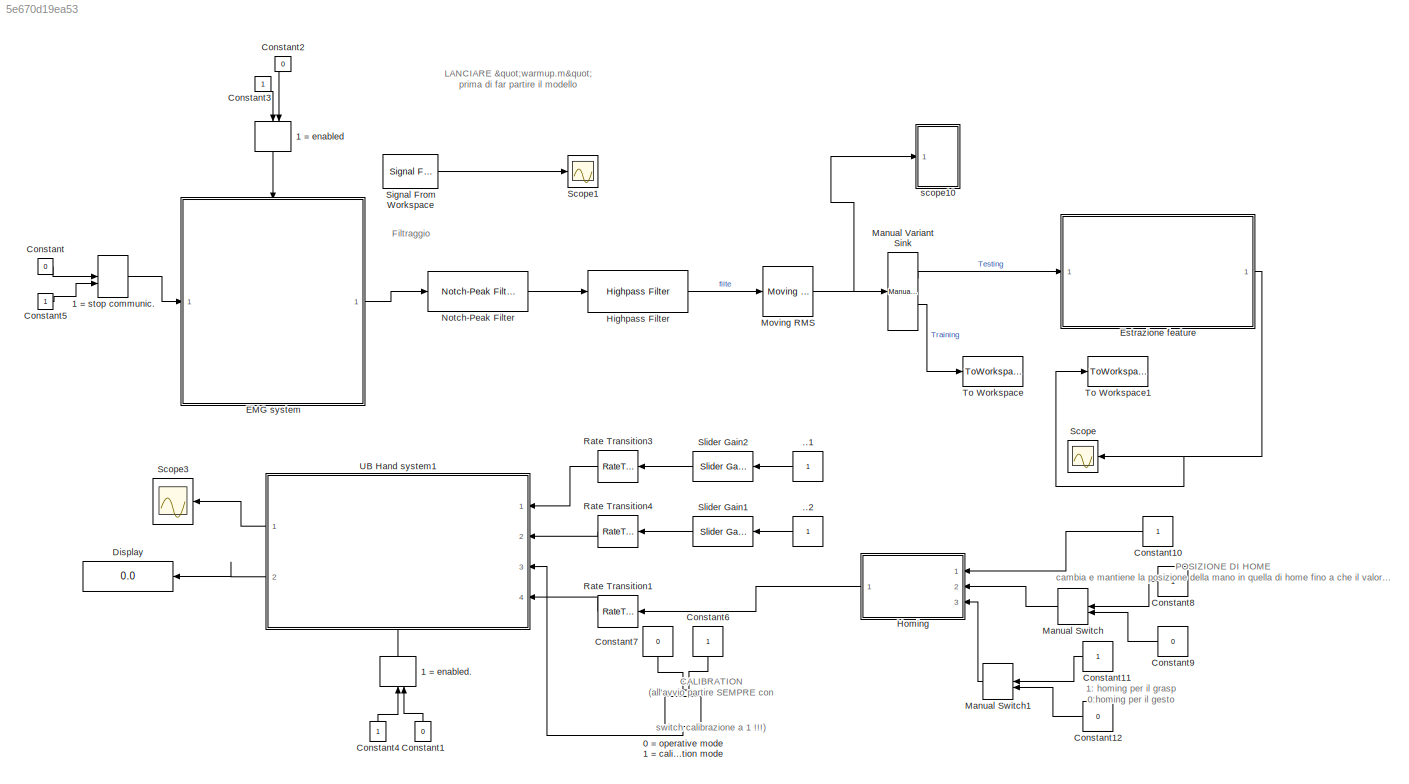
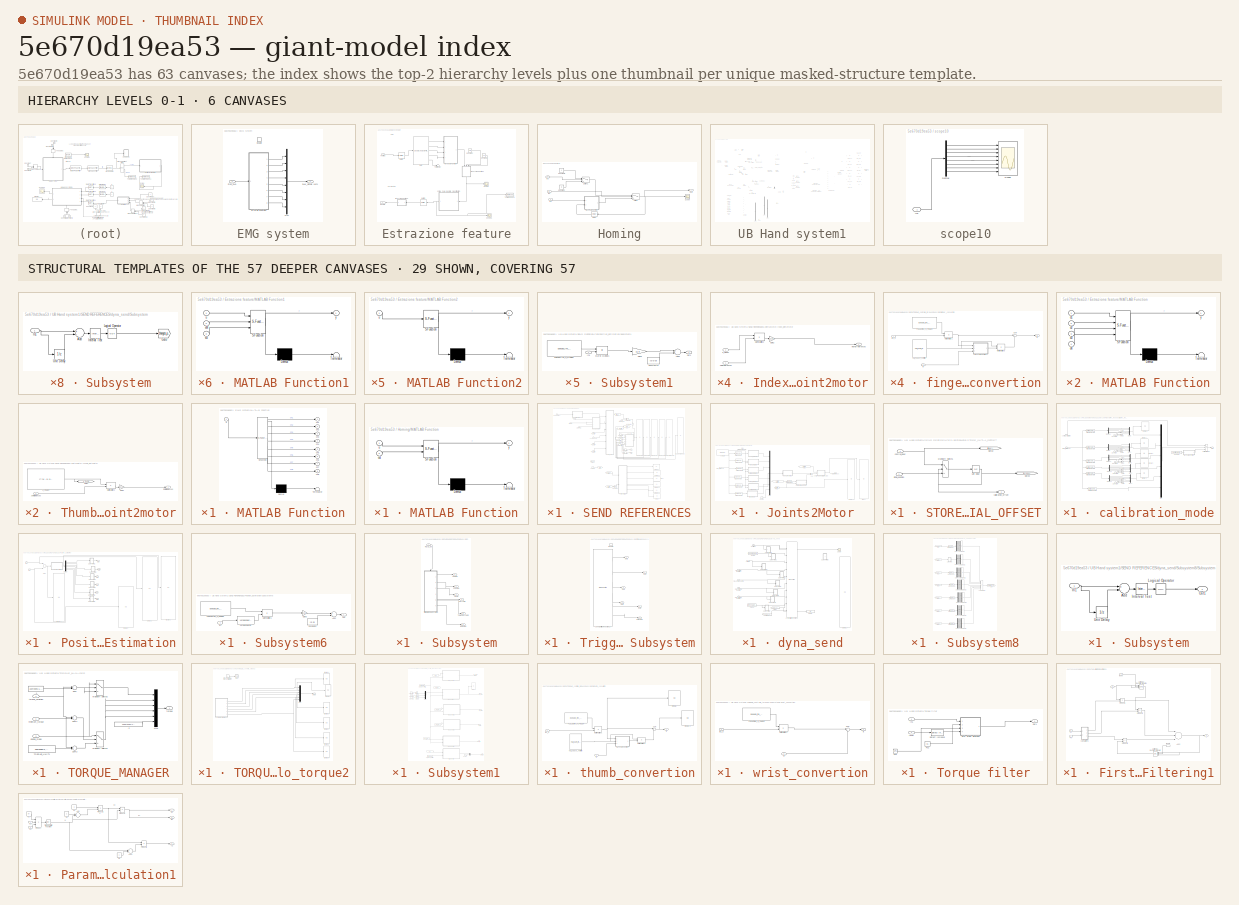
[diagram: thumbnail index - top-2 hierarchy levels (6 canvases) + 29 structural-template representatives of the remaining 57 canvases]
MODEL slx_5e670d19ea53
KIND model
CONFIG AbsTol = auto
CONFIG EnableMultiTasking = off
CONFIG FixedStep = 0.0005
CONFIG MaxStep = auto
CONFIG MinStep = auto
CONFIG RelTol = 1e-3
CONFIG SampleTimeConstraint = Unconstrained
CONFIG Solver = ode3
CONFIG SolverName = ode3
CONFIG StartTime = 0.0
CONFIG StopTime = inf
BLOCK [Constant] ..1
  SampleTime = t
BLOCK [Constant] ..2
  SampleTime = t
BLOCK [ManualSwitch] 0 = operative mode 1 = calibration mode
  CurrentSetting = 0
BLOCK [ManualSwitch] 1 = enabled
  CurrentSetting = 0
  SampleTime = Temg
BLOCK [ManualSwitch] 1 = enabled.
  SampleTime = t
BLOCK [ManualSwitch] 1 = stop communic.
  SampleTime = Temg
BLOCK [Constant] Constant
  SampleTime = Temg
  Value = 0
BLOCK [Constant] Constant1
  SampleTime = t
  Value = 0
BLOCK [Constant] Constant10
BLOCK [Constant] Constant11
BLOCK [Constant] Constant12
  Value = 0
BLOCK [Constant] Constant2
  SampleTime = Temg
  Value = 0
BLOCK [Constant] Constant3
  SampleTime = Temg
BLOCK [Constant] Constant4
  SampleTime = t
BLOCK [Constant] Constant5
  SampleTime = Temg
BLOCK [Constant] Constant6
BLOCK [Constant] Constant7
  Value = 0
BLOCK [Constant] Constant8
BLOCK [Constant] Constant9
  Value = 0
BLOCK [Display] Display
  Decimation = 1
  Ports = [1]
BLOCK [SubSystem] EMG system
  Ports = [1, 1, 1]
  RequestExecContextInheritance = off
  Variant = off
BLOCK [EnablePort] EMG system/Enable
  Ports = []
BLOCK [SubSystem] EMG system/MATLAB Function
  ErrorFcn = Stateflow.Translate.translate
  PermitHierarchicalResolution = ExplicitOnly
  Ports = [1, 8]
  RequestExecContextInheritance = off
  SFBlockType = MATLAB Function
  TreatAsAtomicUnit = on
  Variant = off
BLOCK [Demux] EMG system/MATLAB Function/ Demux 
  Outputs = 1
  Ports = [1, 1]
BLOCK [S-Function] EMG system/MATLAB Function/ SFunction 
  EnableBusSupport = on
  FunctionName = sf_sfun
  PortCounts = [1 9]
  Ports = [1, 9]
  SFcnIsStateOwnerBlock = off
  SFunctionDeploymentMode = off
  Tag = Stateflow S-Function DeathOrGlory 2
BLOCK [Terminator] EMG system/MATLAB Function/ Terminator 
BLOCK [Outport] EMG system/MATLAB Function/ch1
  IconDisplay = Port number
BLOCK [Outport] EMG system/MATLAB Function/ch2
  IconDisplay = Port number
  Port = 2
BLOCK [Outport] EMG system/MATLAB Function/ch3
  IconDisplay = Port number
  Port = 3
BLOCK [Outport] EMG system/MATLAB Function/ch4
  IconDisplay = Port number
  Port = 4
BLOCK [Outport] EMG system/MATLAB Function/ch5
  IconDisplay = Port number
  Port = 5
BLOCK [Outport] EMG system/MATLAB Function/ch6
  IconDisplay = Port number
  Port = 6
BLOCK [Outport] EMG system/MATLAB Function/ch7
  IconDisplay = Port number
  Port = 7
BLOCK [Outport] EMG system/MATLAB Function/ch8
  IconDisplay = Port number
  Port = 8
BLOCK [Inport] EMG system/MATLAB Function/u
  IconDisplay = Port number
BLOCK [Mux] EMG system/Mux
  DisplayOption = bar
  Inputs = 8
  Ports = [8, 1]
BLOCK [Outport] EMG system/RAW_signals (8ch)
  IconDisplay = Port number
BLOCK [Inport] EMG system/Stop_DAQ
  IconDisplay = Port number
BLOCK [SubSystem] Estrazione feature
  Ports = [1, 1]
  RequestExecContextInheritance = off
  Variant = off
BLOCK [Buffer] Estrazione feature/Buffer
  N = interval
  OutputFrames = off
  V = over
BLOCK [Buffer] Estrazione feature/Buffer1
  N = 35
  V = 34
BLOCK [Constant] Estrazione feature/Constant
  Value = sM
BLOCK [Constant] Estrazione feature/Constant1
  Value = sS
BLOCK [Reference] Estrazione feature/DWT  REF=dspmlti4/Dyadic Analysis
Filter Bank
  Ports = [1, 5]
  SourceBlock = dspmlti4/Dyadic Analysis\nFilter Bank
  SourceProductBaseCode = DS
  SourceProductName = DSP System Toolbox
  SourceType = Dyadic Analysis Filter Bank
BLOCK [Outport] Estrazione feature/Gesture
  IconDisplay = Port number
BLOCK [SubSystem] Estrazione feature/MATLAB Function
  ErrorFcn = Stateflow.Translate.translate
  PermitHierarchicalResolution = ExplicitOnly
  Ports = [4, 1]
  RequestExecContextInheritance = off
  SFBlockType = MATLAB Function
  ShowPortLabels = none
  TreatAsAtomicUnit = on
  Variant = off
BLOCK [Demux] Estrazione feature/MATLAB Function/ Demux 
  Outputs = 1
  Ports = [1, 1]
BLOCK [S-Function] Estrazione feature/MATLAB Function/ SFunction 
  EnableBusSupport = on
  FunctionName = sf_sfun
  PortCounts = [4 2]
  Ports = [4, 2]
  SFcnIsStateOwnerBlock = off
  SFunctionDeploymentMode = off
  Tag = Stateflow S-Function DeathOrGlory 5
BLOCK [Terminator] Estrazione feature/MATLAB Function/ Terminator 
BLOCK [Inport] Estrazione feature/MATLAB Function/d1
  IconDisplay = Port number
BLOCK [Inport] Estrazione feature/MATLAB Function/d2
  IconDisplay = Port number
  Port = 2
BLOCK [Inport] Estrazione feature/MATLAB Function/d3
  IconDisplay = Port number
  Port = 3
BLOCK [Inport] Estrazione feature/MATLAB Function/d4
  IconDisplay = Port number
  Port = 4
BLOCK [Outport] Estrazione feature/MATLAB Function/y
  IconDisplay = Port number
BLOCK [SubSystem] Estrazione feature/MATLAB Function1
  ErrorFcn = Stateflow.Translate.translate
  PermitHierarchicalResolution = ExplicitOnly
  Ports = [3, 1]
  RequestExecContextInheritance = off
  SFBlockType = MATLAB Function
  ShowPortLabels = none
  TreatAsAtomicUnit = on
  Variant = off
BLOCK [Demux] Estrazione feature/MATLAB Function1/ Demux 
  Outputs = 1
  Ports = [1, 1]
BLOCK [S-Function] Estrazione feature/MATLAB Function1/ SFunction 
  EnableBusSupport = on
  FunctionName = sf_sfun
  PortCounts = [3 2]
  Ports = [3, 2]
  SFcnIsStateOwnerBlock = off
  SFunctionDeploymentMode = off
  Tag = Stateflow S-Function DeathOrGlory 6
BLOCK [Terminator] Estrazione feature/MATLAB Function1/ Terminator 
BLOCK [Inport] Estrazione feature/MATLAB Function1/sM
  IconDisplay = Port number
  Port = 2
BLOCK [Inport] Estrazione feature/MATLAB Function1/sS
  IconDisplay = Port number
  Port = 3
BLOCK [Inport] Estrazione feature/MATLAB Function1/u
  IconDisplay = Port number
BLOCK [Outport] Estrazione feature/MATLAB Function1/y
  IconDisplay = Port number
BLOCK [SubSystem] Estrazione feature/MATLAB Function2
  ErrorFcn = Stateflow.Translate.translate
  PermitHierarchicalResolution = ExplicitOnly
  Ports = [1, 1]
  RequestExecContextInheritance = off
  SFBlockType = MATLAB Function
  ShowPortLabels = none
  TreatAsAtomicUnit = on
  Variant = off
BLOCK [Demux] Estrazione feature/MATLAB Function2/ Demux 
  Outputs = 1
  Ports = [1, 1]
BLOCK [S-Function] Estrazione feature/MATLAB Function2/ SFunction 
  EnableBusSupport = on
  FunctionName = sf_sfun
  PortCounts = [1 2]
  Ports = [1, 2]
  SFcnIsStateOwnerBlock = off
  SFunctionDeploymentMode = off
  Tag = Stateflow S-Function DeathOrGlory 8
BLOCK [Terminator] Estrazione feature/MATLAB Function2/ Terminator 
BLOCK [Inport] Estrazione feature/MATLAB Function2/u
  IconDisplay = Port number
BLOCK [Outport] Estrazione feature/MATLAB Function2/y
  IconDisplay = Port number
BLOCK [Scope] Estrazione feature/Scope
  NumInputPorts = 1
  Ports = [1]
  ScopeSpecificationString = Simulink.scopes.TimeScopeBlockCfg('CurrentConfiguration', extmgr.ConfigurationSet(extmgr.Configuration('Core','General UI',true),extmgr.Configuration('Core','Source UI',true),extmgr.Configuration('Sources','WiredSimulink',true,'DataLoggingVariableName','ScopeData2'),extmgr.Configuration('Visuals','Time Domain',true,'SerializedDisplays',{struct('MinYLimReal','-0.11782','MaxYLimReal','28.00642','YLa...<+2127ch>
BLOCK [Scope] Estrazione feature/Scope1
  NumInputPorts = 1
  Ports = [1]
  ScopeSpecificationString = Simulink.scopes.TimeScopeBlockCfg('CurrentConfiguration', extmgr.ConfigurationSet(extmgr.Configuration('Core','General UI',true),extmgr.Configuration('Core','Source UI',true),extmgr.Configuration('Sources','WiredSimulink',true,'DataLoggingVariableName','ScopeData3'),extmgr.Configuration('Visuals','Time Domain',true,'SerializedDisplays',{struct('MinYLimReal','0.64773','MaxYLimReal','3.18561','YLabe...<+1486ch>
BLOCK [Terminator] Estrazione feature/Terminator
BLOCK [Inport] Estrazione feature/Testing
  IconDisplay = Port number
BLOCK [ToWorkspace] Estrazione feature/To Workspace
  FixptAsFi = on
  MaxDataPoints = inf
  Ports = [1]
  SampleTime = -1
  Save2DSignal = 2-D array (concatenate along first dimension)
  VariableName = simout2
BLOCK [SubSystem] Estrazione feature/online_SVM_gesture_classification
  ErrorFcn = Stateflow.Translate.translate
  PermitHierarchicalResolution = ExplicitOnly
  Ports = [1, 1]
  RequestExecContextInheritance = off
  SFBlockType = MATLAB Function
  TreatAsAtomicUnit = on
  Variant = off
BLOCK [Demux] Estrazione feature/online_SVM_gesture_classification/ Demux 
  Outputs = 1
  Ports = [1, 1]
BLOCK [S-Function] Estrazione feature/online_SVM_gesture_classification/ SFunction 
  EnableBusSupport = on
  FunctionName = sf_sfun
  Parameters = model
  PortCounts = [1 2]
  Ports = [1, 2]
  SFcnIsStateOwnerBlock = off
  SFunctionDeploymentMode = off
  Tag = Stateflow S-Function DeathOrGlory 7
BLOCK [Terminator] Estrazione feature/online_SVM_gesture_classification/ Terminator 
BLOCK [Inport] Estrazione feature/online_SVM_gesture_classification/M
  IconDisplay = Port number
BLOCK [Outport] Estrazione feature/online_SVM_gesture_classification/prediction
  IconDisplay = Port number
BLOCK [Reference] Highpass Filter  REF=dspfdesign/Highpass Filter
  Ports = [1, 1]
  SourceBlock = dspfdesign/Highpass Filter
  SourceProductBaseCode = DS
  SourceProductName = DSP System Toolbox
  SourceType = dsp.HighpassFilter
BLOCK [SubSystem] Homing
  Ports = [3, 1]
  RequestExecContextInheritance = off
  ShowPortLabels = none
  Variant = off
BLOCK [Constant] Homing/Constant
  Value = 8
BLOCK [Constant] Homing/Constant1
BLOCK [Delay] Homing/Delay
  InputPortMap = u0
  Ports = [1, 1]
BLOCK [Inport] Homing/In1
  IconDisplay = Port number
BLOCK [Inport] Homing/In2
  IconDisplay = Port number
  Port = 2
BLOCK [Inport] Homing/In3
  IconDisplay = Port number
  Port = 3
BLOCK [SubSystem] Homing/MATLAB Function
  ErrorFcn = Stateflow.Translate.translate
  PermitHierarchicalResolution = ExplicitOnly
  Ports = [2, 1]
  RequestExecContextInheritance = off
  SFBlockType = MATLAB Function
  TreatAsAtomicUnit = on
  Variant = off
BLOCK [Demux] Homing/MATLAB Function/ Demux 
  Outputs = 1
  Ports = [1, 1]
BLOCK [S-Function] Homing/MATLAB Function/ SFunction 
  EnableBusSupport = on
  FunctionName = sf_sfun
  PortCounts = [2 2]
  Ports = [2, 2]
  SFcnIsStateOwnerBlock = off
  SFunctionDeploymentMode = off
  Tag = Stateflow S-Function DeathOrGlory 9
BLOCK [Terminator] Homing/MATLAB Function/ Terminator 
BLOCK [Inport] Homing/MATLAB Function/out
  IconDisplay = Port number
  Port = 2
BLOCK [Inport] Homing/MATLAB Function/u
  IconDisplay = Port number
BLOCK [Outport] Homing/MATLAB Function/y
  IconDisplay = Port number
BLOCK [Outport] Homing/Out1
  IconDisplay = Port number
BLOCK [Scope] Homing/Scope
  NumInputPorts = 1
  Ports = [1]
  ScopeSpecificationString = Simulink.scopes.TimeScopeBlockCfg('CurrentConfiguration', extmgr.ConfigurationSet(extmgr.Configuration('Core','General UI',true),extmgr.Configuration('Core','Source UI',true),extmgr.Configuration('Sources','WiredSimulink',true,'DataLoggingVariableName','ScopeData1'),extmgr.Configuration('Visuals','Time Domain',true,'SerializedDisplays',{struct('MinYLimReal','0.625','MaxYLimReal','4.375','YLabelRea...<+1418ch>
BLOCK [Switch] Homing/Switch
  Criteria = u2 ~= 0
  InputSameDT = off
  SaturateOnIntegerOverflow = off
BLOCK [Switch] Homing/Switch1
  Criteria = u2 ~= 0
  InputSameDT = off
  SaturateOnIntegerOverflow = off
BLOCK [ManualSwitch] Manual Switch
  CurrentSetting = 0
BLOCK [ManualSwitch] Manual Switch1
  CurrentSetting = 0
BLOCK [Reference] Manual Variant Sink  REF=simulink/Signal
Routing/Manual
Variant Sink
  Ports = [1, 2]
  SourceBlock = simulink/Signal\nRouting/Manual\nVariant Sink
  SourceProductBaseCode = SL
  SourceProductName = Simulink
  SourceType = ManualVariantSink
BLOCK [Reference] Moving RMS  REF=dspstat3/Moving
RMS
  Ports = [1, 1]
  SourceBlock = dspstat3/Moving\nRMS
  SourceProductBaseCode = DS
  SourceProductName = DSP System Toolbox
  SourceType = dsp.MovingRMS
BLOCK [Reference] Notch-Peak Filter  REF=dspfdesign/Notch-Peak Filter
  Ports = [1, 1]
  SourceBlock = dspfdesign/Notch-Peak Filter
  SourceProductBaseCode = DS
  SourceProductName = DSP System Toolbox
  SourceType = dsp.simulink.NotchPeakFilter
BLOCK [RateTransition] Rate Transition1
  OutPortSampleTime = Ts
BLOCK [RateTransition] Rate Transition3
  OutPortSampleTime = Ts
BLOCK [RateTransition] Rate Transition4
  OutPortSampleTime = Ts
BLOCK [Scope] Scope
  NumInputPorts = 1
  Ports = [1]
  ScopeSpecificationString = Simulink.scopes.TimeScopeBlockCfg('CurrentConfiguration', extmgr.ConfigurationSet(extmgr.Configuration('Core','General UI',true),extmgr.Configuration('Core','Source UI',true),extmgr.Configuration('Sources','WiredSimulink',true,'DataLoggingVariableName','ScopeData1'),extmgr.Configuration('Visuals','Time Domain',true,'SerializedDisplays',{struct('MinYLimReal','-0.875','MaxYLimReal','7.875','YLabelRe...<+1465ch>
BLOCK [Scope] Scope1
  NumInputPorts = 1
  Ports = [1]
  ScopeSpecificationString = Simulink.scopes.TimeScopeBlockCfg('CurrentConfiguration', extmgr.ConfigurationSet(extmgr.Configuration('Core','General UI',true),extmgr.Configuration('Core','Source UI',true),extmgr.Configuration('Sources','WiredSimulink',true,'DataLoggingVariableName','ScopeData2'),extmgr.Configuration('Visuals','Time Domain',true),extmgr.Configuration('Tools','Plot Navigation',true),extmgr.Configuration('Tools',...<+85ch>
BLOCK [Scope] Scope3
  NumInputPorts = 1
  Ports = [1]
  ScopeSpecificationString = Simulink.scopes.TimeScopeBlockCfg('CurrentConfiguration', extmgr.ConfigurationSet(extmgr.Configuration('Core','General UI',true),extmgr.Configuration('Core','Source UI',true),extmgr.Configuration('Sources','WiredSimulink',true,'DataLoggingVariableName','ScopeData1','DataLoggingSaveFormat','Array','DataLoggingDecimation','1','DataLoggingDecimateData',true),extmgr.Configuration('Visuals','Time Domai...<+1632ch>
BLOCK [Reference] Signal From Workspace  REF=dspsrcs4/Signal From
Workspace
  Ports = [0, 1]
  SourceBlock = dspsrcs4/Signal From\nWorkspace
  SourceProductBaseCode = DS
  SourceProductName = DSP System Toolbox
  SourceType = Signal From Workspace
BLOCK [Reference] Slider Gain1  REF=simulink/Math
Operations/Slider
Gain
  Ports = [1, 1]
  SourceBlock = simulink/Math\nOperations/Slider\nGain
  SourceProductBaseCode = SL
  SourceProductName = Simulink
  SourceType = Slider Gain
BLOCK [Reference] Slider Gain2  REF=simulink/Math
Operations/Slider
Gain
  Ports = [1, 1]
  SourceBlock = simulink/Math\nOperations/Slider\nGain
  SourceProductBaseCode = SL
  SourceProductName = Simulink
  SourceType = Slider Gain
BLOCK [ToWorkspace] To Workspace
  FixptAsFi = on
  MaxDataPoints = inf
  Ports = [1]
  SampleTime = -1
  Save2DSignal = 2-D array (concatenate along first dimension)
  VariableName = filtSignal
BLOCK [ToWorkspace] To Workspace1
  FixptAsFi = on
  MaxDataPoints = inf
  Ports = [1]
  SampleTime = -1
  Save2DSignal = 2-D array (concatenate along first dimension)
  VariableName = simout
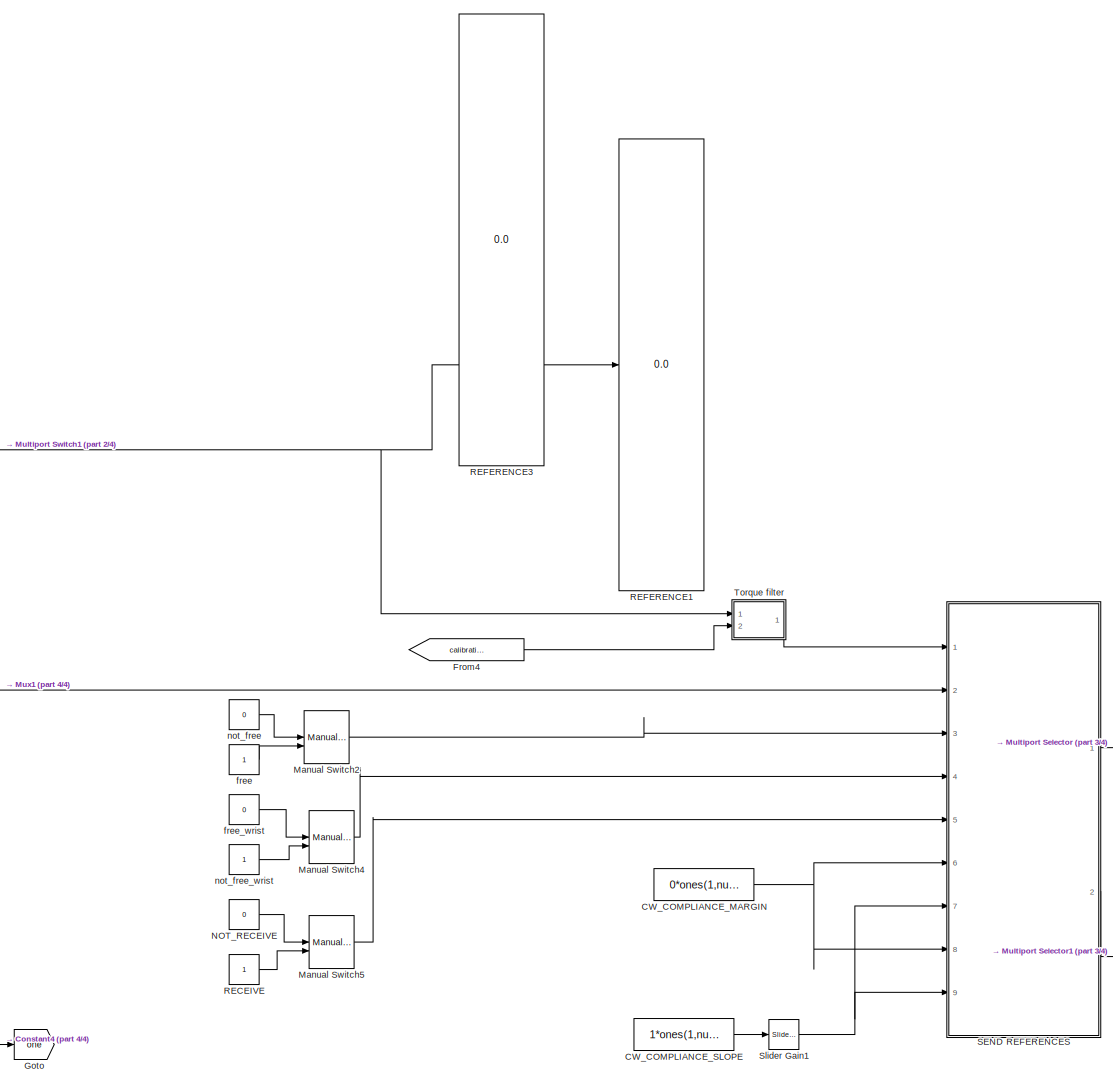
[diagram: UB Hand system1 - part 1/4, top center region]
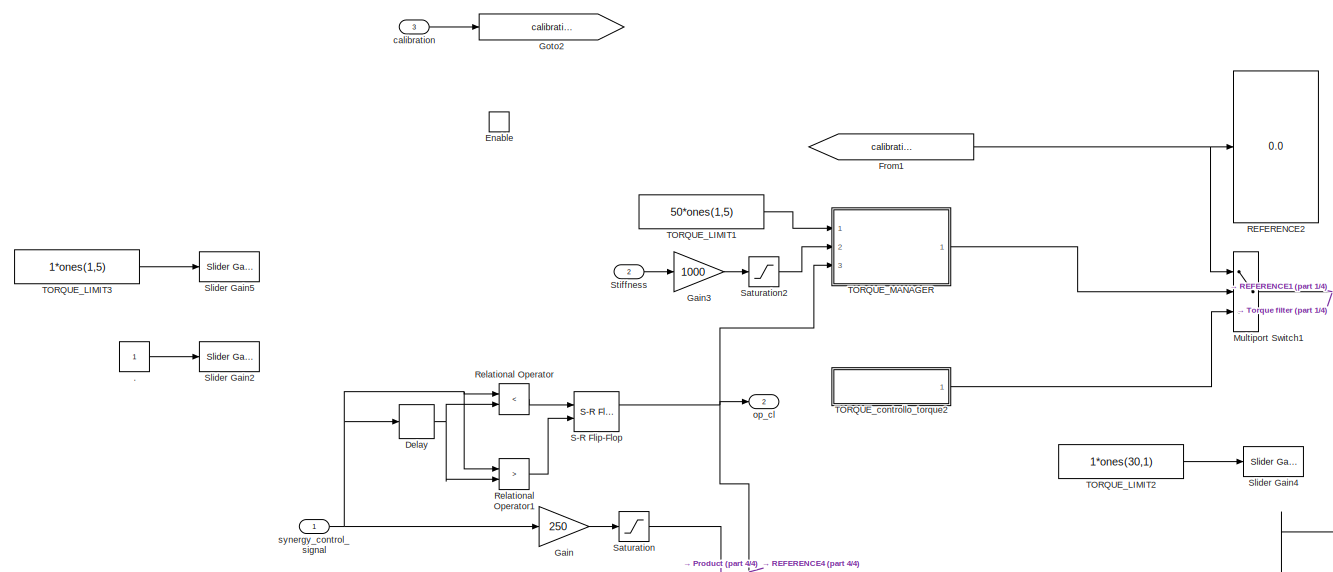
[diagram: UB Hand system1 - part 2/4, top left region]
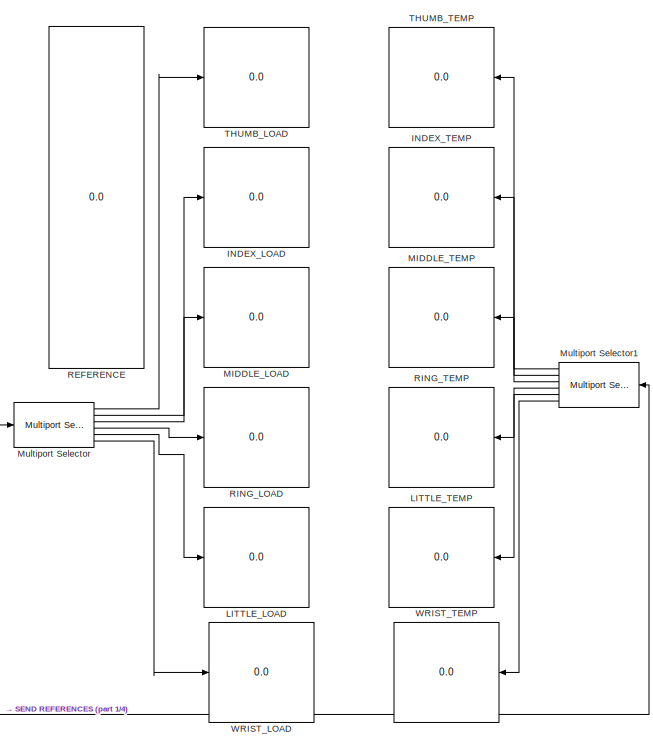
[diagram: UB Hand system1 - part 3/4, middle right region]
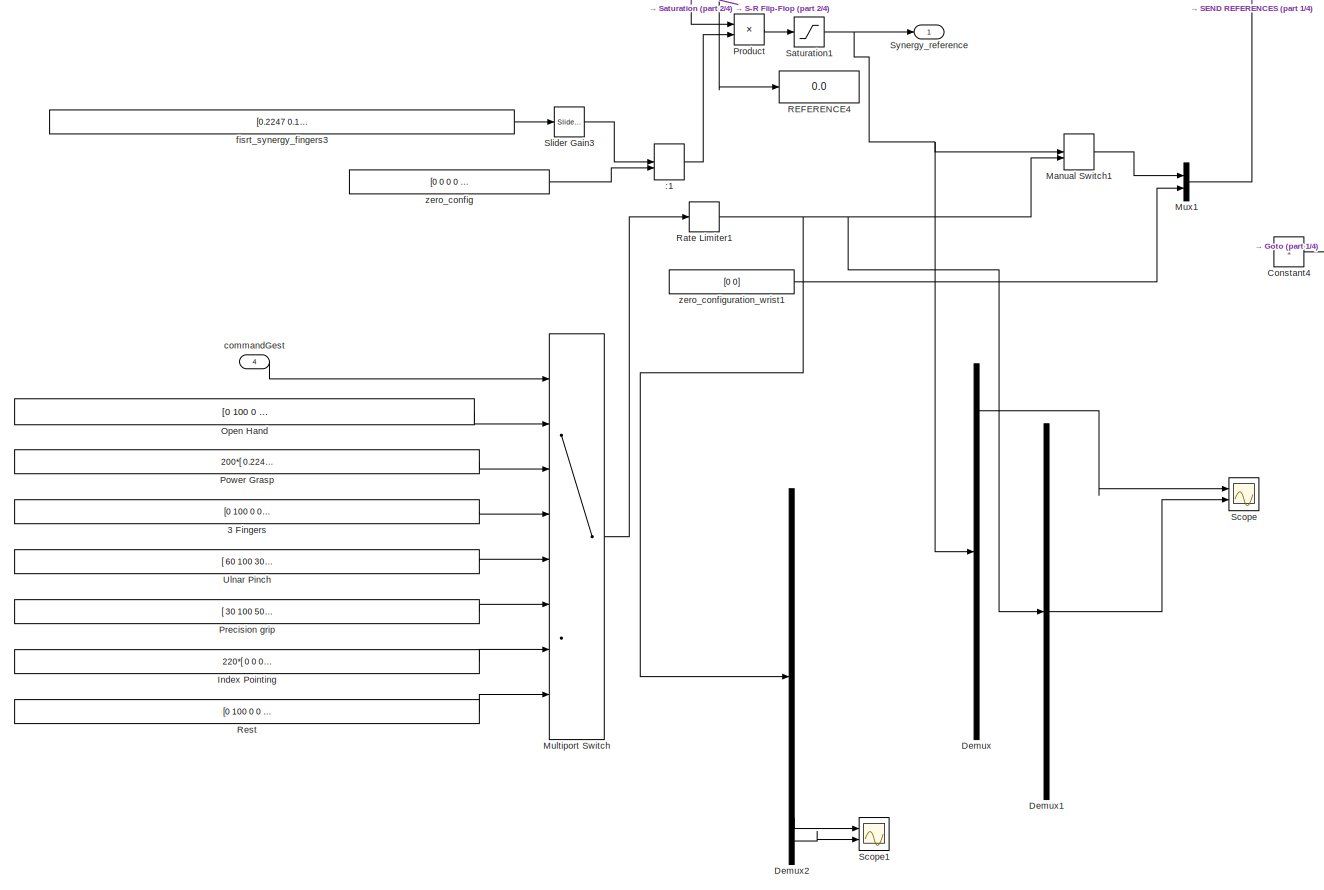
[diagram: UB Hand system1 - part 4/4, bottom left region]
BLOCK [SubSystem] UB Hand system1
  Ports = [4, 2, 1]
  RequestExecContextInheritance = off
  Variant = off
BLOCK [Constant] UB Hand system1/.
  SampleTime = t
BLOCK [Constant] UB Hand system1/3 Fingers
  SampleTime = t
  Value = [0 100 0  0 0 0  0 0 0  0 90 60  0 90 60]
BLOCK [ManualSwitch] UB Hand system1/:1
  SampleTime = t
BLOCK [Constant] UB Hand system1/CW_COMPLIANCE_MARGIN
  Value = 0*ones(1,num_act)
BLOCK [Constant] UB Hand system1/CW_COMPLIANCE_SLOPE
  Value = 1*ones(1,num_act)
BLOCK [Constant] UB Hand system1/Constant4
  SampleTime = t
BLOCK [Delay] UB Hand system1/Delay
  DelayLength = 1
  InitialCondition = 0
  InputPortMap = u0
  Ports = [1, 1]
BLOCK [Demux] UB Hand system1/Demux
  DisplayOption = bar
  Outputs = 15
  Ports = [1, 15]
BLOCK [Demux] UB Hand system1/Demux1
  DisplayOption = bar
  Outputs = 15
  Ports = [1, 15]
BLOCK [Demux] UB Hand system1/Demux2
  DisplayOption = bar
  Outputs = 15
  Ports = [1, 15]
BLOCK [EnablePort] UB Hand system1/Enable
  Ports = []
BLOCK [From] UB Hand system1/From1
  GotoTag = calibration_switch
  TagVisibility = global
BLOCK [From] UB Hand system1/From4
  GotoTag = calibration_switch
  TagVisibility = global
BLOCK [Gain] UB Hand system1/Gain
  Gain = 250
  OutDataTypeStr = Inherit: Inherit via internal rule
  ParamDataTypeStr = Inherit: Inherit via internal rule
  SaturateOnIntegerOverflow = off
BLOCK [Gain] UB Hand system1/Gain3
  Gain = 1000
  OutDataTypeStr = Inherit: Inherit via internal rule
  ParamDataTypeStr = Inherit: Inherit via internal rule
  SaturateOnIntegerOverflow = off
BLOCK [Goto] UB Hand system1/Goto
  GotoTag = one
BLOCK [Goto] UB Hand system1/Goto2
  GotoTag = calibration_switch
  TagVisibility = global
BLOCK [Display] UB Hand system1/INDEX_LOAD
  Decimation = 1
  Ports = [1]
BLOCK [Display] UB Hand system1/INDEX_TEMP
  Decimation = 1
  Ports = [1]
BLOCK [Constant] UB Hand system1/Index Pointing
  SampleTime = t
  Value = 220*[ 0 0 0  0 0 0  0 0.4422 0.2971 0 0.3792 0.2754 0 0.3905 0.3292]
BLOCK [Display] UB Hand system1/LITTLE_LOAD
  Decimation = 1
  Ports = [1]
BLOCK [Display] UB Hand system1/LITTLE_TEMP
  Decimation = 1
  Ports = [1]
BLOCK [Display] UB Hand system1/MIDDLE_LOAD
  Decimation = 1
  Ports = [1]
BLOCK [Display] UB Hand system1/MIDDLE_TEMP
  Decimation = 1
  Ports = [1]
BLOCK [ManualSwitch] UB Hand system1/Manual Switch1
  CurrentSetting = 0
BLOCK [ManualSwitch] UB Hand system1/Manual Switch2
  AttributesFormatString = SEND
  Description = SEND
  SampleTime = t
BLOCK [ManualSwitch] UB Hand system1/Manual Switch4
  AttributesFormatString = SEND
  CurrentSetting = 0
  Description = SEND
  SampleTime = t
BLOCK [ManualSwitch] UB Hand system1/Manual Switch5
  AttributesFormatString = SEND
  Description = SEND
  SampleTime = t
BLOCK [Reference] UB Hand system1/Multiport Selector  REF=dspindex/Multiport
Selector
  Ports = [1, 6]
  SourceBlock = dspindex/Multiport\nSelector
  SourceProductBaseCode = DS
  SourceProductName = DSP System Toolbox
  SourceType = Multiport Selector
BLOCK [Reference] UB Hand system1/Multiport Selector1  REF=dspindex/Multiport
Selector
  Ports = [1, 6]
  SourceBlock = dspindex/Multiport\nSelector
  SourceProductBaseCode = DS
  SourceProductName = DSP System Toolbox
  SourceType = Multiport Selector
BLOCK [MultiPortSwitch] UB Hand system1/Multiport Switch
  DataPortIndices = {1,2,3,4,5,6,8}
  DataPortOrder = Specify indices
  InputSameDT = off
  Inputs = 6
  Ports = [8, 1]
  SaturateOnIntegerOverflow = off
BLOCK [MultiPortSwitch] UB Hand system1/Multiport Switch1
  DataPortOrder = Zero-based contiguous
  DiagnosticForDefault = None
  InputSameDT = off
  Inputs = 2
  Ports = [3, 1]
  SaturateOnIntegerOverflow = off
BLOCK [Mux] UB Hand system1/Mux1
  DisplayOption = bar
  Inputs = 2
  Ports = [2, 1]
BLOCK [Constant] UB Hand system1/NOT_RECEIVE
  SampleTime = t
  Value = 0
BLOCK [Constant] UB Hand system1/Open Hand
  SampleTime = t
  Value = [0 100 0   0 0 0     0  0 0     0 0 0     0 0 0    ]
BLOCK [Constant] UB Hand system1/Power Grasp
  SampleTime = t
  Value = 200*[ 0.2247 0.5 0.3023  0 0.352 0.3178  0 0.4422 0.2971 0 0.3792 0.2754 0 0.3905 0.3292]
BLOCK [Constant] UB Hand system1/Precision grip
  SampleTime = t
  Value = [ 30 100 50 0 70 30 0 70 30 0 0 0 0 0 0]
BLOCK [Product] UB Hand system1/Product
  InputSameDT = off
  OutDataTypeStr = Inherit: Inherit via internal rule
  Ports = [2, 1]
  RndMeth = Floor
  SampleTime = t
  SaturateOnIntegerOverflow = off
BLOCK [Constant] UB Hand system1/RECEIVE
  SampleTime = t
BLOCK [Display] UB Hand system1/REFERENCE
  Decimation = 1
  Ports = [1]
BLOCK [Display] UB Hand system1/REFERENCE1
  Decimation = 1
  Ports = [1]
BLOCK [Display] UB Hand system1/REFERENCE2
  Decimation = 1
  Ports = [1]
BLOCK [Display] UB Hand system1/REFERENCE3
  Decimation = 1
  Ports = [1]
BLOCK [Display] UB Hand system1/REFERENCE4
  Decimation = 1
  Ports = [1]
BLOCK [Display] UB Hand system1/RING_LOAD
  Decimation = 1
  Ports = [1]
BLOCK [Display] UB Hand system1/RING_TEMP
  Decimation = 1
  Ports = [1]
BLOCK [RateLimiter] UB Hand system1/Rate Limiter1
  FallingSlewLimit = -80
  RisingSlewLimit = 80
  SampleTimeMode = inherited
BLOCK [RelationalOperator] UB Hand system1/Relational Operator
  InputSameDT = off
  Operator = <
  OutDataTypeStr = boolean
  Ports = [2, 1]
BLOCK [RelationalOperator] UB Hand system1/Relational Operator1
  InputSameDT = off
  Operator = >
  OutDataTypeStr = boolean
  Ports = [2, 1]
BLOCK [Constant] UB Hand system1/Rest
  SampleTime = t
  Value = [0 100 0 0 50 60 0 60 60 0 60 60 0 60 60]
BLOCK [Reference] UB Hand system1/S-R Flip-Flop  REF=simulink_extras/Flip Flops/S-R
Flip-Flop
  Ports = [2, 2]
  SourceBlock = simulink_extras/Flip Flops/S-R\nFlip-Flop
  SourceProductBaseCode = SL
  SourceProductName = Simulink
  SourceType = SRFlipFlop
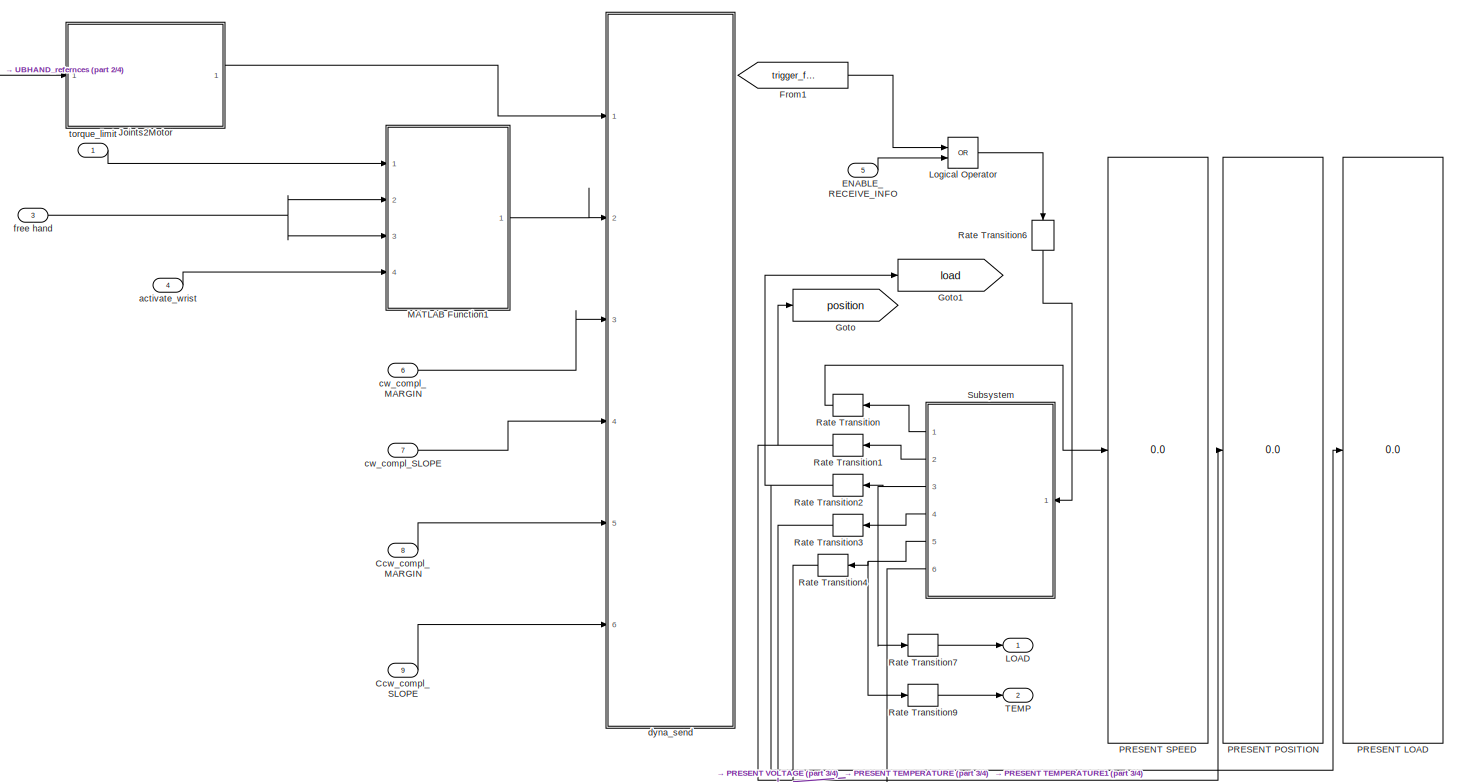
[diagram: UB Hand system1/SEND REFERENCES - part 1/4, top center region]
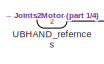
[diagram: UB Hand system1/SEND REFERENCES - part 2/4, top left region]
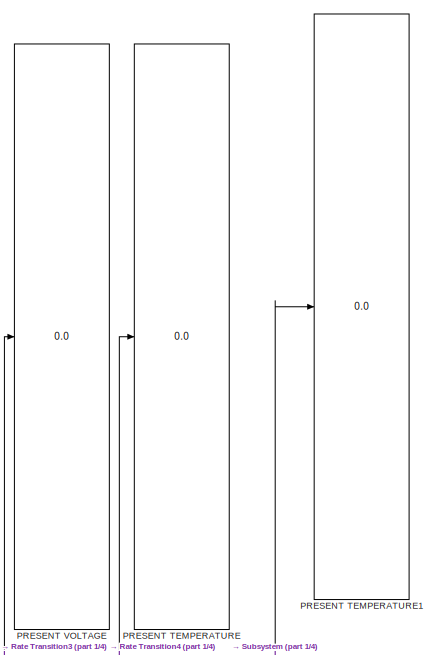
[diagram: UB Hand system1/SEND REFERENCES - part 3/4, top right region]
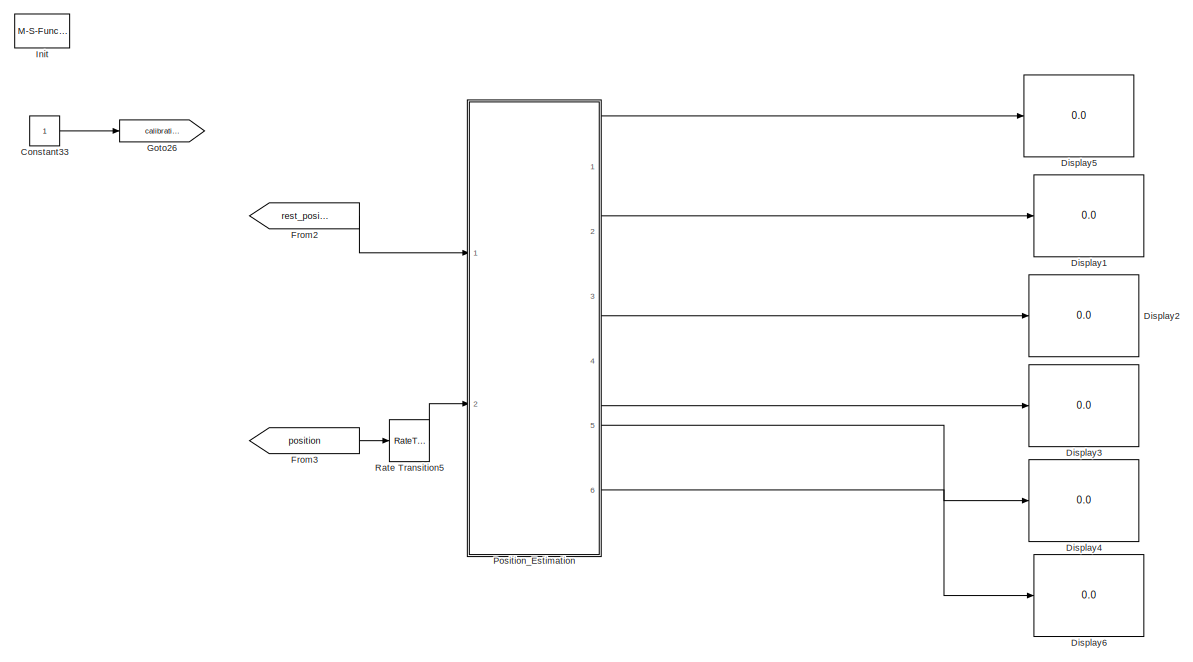
[diagram: UB Hand system1/SEND REFERENCES - part 4/4, bottom center region]
BLOCK [SubSystem] UB Hand system1/SEND REFERENCES
  Ports = [9, 2]
  RequestExecContextInheritance = off
  Variant = off
BLOCK [Inport] UB Hand system1/SEND REFERENCES/Ccw_compl_MARGIN
  IconDisplay = Port number
  Port = 8
BLOCK [Inport] UB Hand system1/SEND REFERENCES/Ccw_compl_SLOPE
  IconDisplay = Port number
  Port = 9
BLOCK [Constant] UB Hand system1/SEND REFERENCES/Constant33
  SampleTime = Ts
BLOCK [Display] UB Hand system1/SEND REFERENCES/Display1
  Decimation = 1
  Ports = [1]
BLOCK [Display] UB Hand system1/SEND REFERENCES/Display2
  Decimation = 1
  Ports = [1]
BLOCK [Display] UB Hand system1/SEND REFERENCES/Display3
  Decimation = 1
  Ports = [1]
BLOCK [Display] UB Hand system1/SEND REFERENCES/Display4
  Decimation = 1
  Ports = [1]
BLOCK [Display] UB Hand system1/SEND REFERENCES/Display5
  Decimation = 1
  Ports = [1]
BLOCK [Display] UB Hand system1/SEND REFERENCES/Display6
  Decimation = 1
  Ports = [1]
BLOCK [Inport] UB Hand system1/SEND REFERENCES/ENABLE_RECEIVE_INFO
  IconDisplay = Port number
  Port = 5
BLOCK [From] UB Hand system1/SEND REFERENCES/From1
  GotoTag = trigger_feedback
  TagVisibility = global
BLOCK [From] UB Hand system1/SEND REFERENCES/From2
  GotoTag = rest_positions
  TagVisibility = global
BLOCK [From] UB Hand system1/SEND REFERENCES/From3
  GotoTag = position
  TagVisibility = global
BLOCK [Goto] UB Hand system1/SEND REFERENCES/Goto
  GotoTag = position
  TagVisibility = global
BLOCK [Goto] UB Hand system1/SEND REFERENCES/Goto1
  GotoTag = load
  TagVisibility = global
BLOCK [Goto] UB Hand system1/SEND REFERENCES/Goto26
  GotoTag = calibration_done
  TagVisibility = global
BLOCK [M-S-Function] UB Hand system1/SEND REFERENCES/Init
  FunctionName = dyna_init
  Parameters = 5 1
  Ports = []
BLOCK [SubSystem] UB Hand system1/SEND REFERENCES/Joints2Motor
  Ports = [1, 1]
  RequestExecContextInheritance = off
  Variant = off
BLOCK [Constant] UB Hand system1/SEND REFERENCES/Joints2Motor/Constant
  SampleTime = t
  Value = 0
BLOCK [Reference] UB Hand system1/SEND REFERENCES/Joints2Motor/Detect Decrease  REF=simulink/Logic and Bit
Operations/Detect
Decrease
  Ports = [1, 1]
  SourceBlock = simulink/Logic and Bit\nOperations/Detect\nDecrease
  SourceProductBaseCode = SL
  SourceProductName = Simulink
  SourceType = Detect Decrease
BLOCK [Display] UB Hand system1/SEND REFERENCES/Joints2Motor/Display4
  Decimation = 1
  Ports = [1]
BLOCK [Display] UB Hand system1/SEND REFERENCES/Joints2Motor/Display7
  Decimation = 1
  Ports = [1]
BLOCK [From] UB Hand system1/SEND REFERENCES/Joints2Motor/From1
  GotoTag = position
  TagVisibility = global
BLOCK [From] UB Hand system1/SEND REFERENCES/Joints2Motor/From2
  GotoTag = calibration_switch
  TagVisibility = global
BLOCK [From] UB Hand system1/SEND REFERENCES/Joints2Motor/From3
  GotoTag = calibration_switch
  TagVisibility = global
BLOCK [Goto] UB Hand system1/SEND REFERENCES/Joints2Motor/Goto1
  GotoTag = H_finger
  TagVisibility = global
BLOCK [Constant] UB Hand system1/SEND REFERENCES/Joints2Motor/H_FINGER
  SampleTime = t
  Value = [+5.25 5.8 0;-5.25 5.8 0;0 1 4.75;0 -5.5 0;0 1 -8.075]
  VectorParams1D = off
BLOCK [SubSystem] UB Hand system1/SEND REFERENCES/Joints2Motor/Index_joint2motor
  Ports = [2, 1]
  RequestExecContextInheritance = off
  Variant = off
BLOCK [Gain] UB Hand system1/SEND REFERENCES/Joints2Motor/Index_joint2motor/Gain2
  Gain = 1/11.5
  OutDataTypeStr = Inherit: Inherit via internal rule
  ParamDataTypeStr = Inherit: Inherit via internal rule
  SampleTime = t
  SaturateOnIntegerOverflow = off
BLOCK [Inport] UB Hand system1/SEND REFERENCES/Joints2Motor/Index_joint2motor/H_Finger
  IconDisplay = Port number
  Port = 2
BLOCK [Inport] UB Hand system1/SEND REFERENCES/Joints2Motor/Index_joint2motor/Joint references
  IconDisplay = Port number
BLOCK [Product] UB Hand system1/SEND REFERENCES/Joints2Motor/Index_joint2motor/Matrix Multiply2
  InputSameDT = off
  Multiplication = Matrix(*)
  OutDataTypeStr = Inherit: Inherit via internal rule
  Ports = [2, 1]
  RndMeth = Floor
  SampleTime = t
  SaturateOnIntegerOverflow = off
BLOCK [Outport] UB Hand system1/SEND REFERENCES/Joints2Motor/Index_joint2motor/mortor references
  IconDisplay = Port number
BLOCK [Inport] UB Hand system1/SEND REFERENCES/Joints2Motor/Joints_references
  IconDisplay = Port number
BLOCK [SubSystem] UB Hand system1/SEND REFERENCES/Joints2Motor/Little_joint2motor
  Ports = [2, 1]
  RequestExecContextInheritance = off
  Variant = off
BLOCK [Gain] UB Hand system1/SEND REFERENCES/Joints2Motor/Little_joint2motor/Gain2
  Gain = 1/11.5
  OutDataTypeStr = Inherit: Inherit via internal rule
  ParamDataTypeStr = Inherit: Inherit via internal rule
  SampleTime = t
  SaturateOnIntegerOverflow = off
BLOCK [Inport] UB Hand system1/SEND REFERENCES/Joints2Motor/Little_joint2motor/H_Finger
  IconDisplay = Port number
  Port = 2
BLOCK [Inport] UB Hand system1/SEND REFERENCES/Joints2Motor/Little_joint2motor/Joint references
  IconDisplay = Port number
BLOCK [Product] UB Hand system1/SEND REFERENCES/Joints2Motor/Little_joint2motor/Matrix Multiply2
  InputSameDT = off
  Multiplication = Matrix(*)
  OutDataTypeStr = Inherit: Inherit via internal rule
  Ports = [2, 1]
  RndMeth = Floor
  SampleTime = t
  SaturateOnIntegerOverflow = off
BLOCK [Outport] UB Hand system1/SEND REFERENCES/Joints2Motor/Little_joint2motor/mortor references
  IconDisplay = Port number
BLOCK [SubSystem] UB Hand system1/SEND REFERENCES/Joints2Motor/MATLAB Function1
  ErrorFcn = Stateflow.Translate.translate
  PermitHierarchicalResolution = ExplicitOnly
  Ports = [1, 1]
  RequestExecContextInheritance = off
  SFBlockType = MATLAB Function
  TreatAsAtomicUnit = on
  Variant = off
BLOCK [Demux] UB Hand system1/SEND REFERENCES/Joints2Motor/MATLAB Function1/ Demux 
  Outputs = 1
  Ports = [1, 1]
BLOCK [S-Function] UB Hand system1/SEND REFERENCES/Joints2Motor/MATLAB Function1/ SFunction 
  EnableBusSupport = on
  FunctionName = sf_sfun
  PortCounts = [1 2]
  Ports = [1, 2]
  SFcnIsStateOwnerBlock = off
  SFunctionDeploymentMode = off
  Tag = Stateflow S-Function DeathOrGlory 11
BLOCK [Terminator] UB Hand system1/SEND REFERENCES/Joints2Motor/MATLAB Function1/ Terminator 
BLOCK [Inport] UB Hand system1/SEND REFERENCES/Joints2Motor/MATLAB Function1/mot_ref_in
  IconDisplay = Port number
BLOCK [Outport] UB Hand system1/SEND REFERENCES/Joints2Motor/MATLAB Function1/mot_ref_out
  IconDisplay = Port number
BLOCK [SubSystem] UB Hand system1/SEND REFERENCES/Joints2Motor/Middle_joint2motor
  Ports = [2, 1]
  RequestExecContextInheritance = off
  Variant = off
BLOCK [Gain] UB Hand system1/SEND REFERENCES/Joints2Motor/Middle_joint2motor/Gain2
  Gain = 1/11.5
  OutDataTypeStr = Inherit: Inherit via internal rule
  ParamDataTypeStr = Inherit: Inherit via internal rule
  SampleTime = t
  SaturateOnIntegerOverflow = off
BLOCK [Inport] UB Hand system1/SEND REFERENCES/Joints2Motor/Middle_joint2motor/H_Finger
  IconDisplay = Port number
  Port = 2
BLOCK [Inport] UB Hand system1/SEND REFERENCES/Joints2Motor/Middle_joint2motor/Joint references
  IconDisplay = Port number
BLOCK [Product] UB Hand system1/SEND REFERENCES/Joints2Motor/Middle_joint2motor/Matrix Multiply2
  InputSameDT = off
  Multiplication = Matrix(*)
  OutDataTypeStr = Inherit: Inherit via internal rule
  Ports = [2, 1]
  RndMeth = Floor
  SampleTime = t
  SaturateOnIntegerOverflow = off
BLOCK [Outport] UB Hand system1/SEND REFERENCES/Joints2Motor/Middle_joint2motor/mortor references
  IconDisplay = Port number
BLOCK [Outport] UB Hand system1/SEND REFERENCES/Joints2Motor/Motor_references
  IconDisplay = Port number
BLOCK [Mux] UB Hand system1/SEND REFERENCES/Joints2Motor/Mux
  DisplayOption = bar
  Inputs = 7
  Ports = [7, 1]
BLOCK [SubSystem] UB Hand system1/SEND REFERENCES/Joints2Motor/Ring_joint2motor
  Ports = [2, 1]
  RequestExecContextInheritance = off
  Variant = off
BLOCK [Gain] UB Hand system1/SEND REFERENCES/Joints2Motor/Ring_joint2motor/Gain2
  Gain = 1/11.5
  OutDataTypeStr = Inherit: Inherit via internal rule
  ParamDataTypeStr = Inherit: Inherit via internal rule
  SampleTime = t
  SaturateOnIntegerOverflow = off
BLOCK [Inport] UB Hand system1/SEND REFERENCES/Joints2Motor/Ring_joint2motor/H_Finger
  IconDisplay = Port number
  Port = 2
BLOCK [Inport] UB Hand system1/SEND REFERENCES/Joints2Motor/Ring_joint2motor/Joint references
  IconDisplay = Port number
BLOCK [Product] UB Hand system1/SEND REFERENCES/Joints2Motor/Ring_joint2motor/Matrix Multiply2
  InputSameDT = off
  Multiplication = Matrix(*)
  OutDataTypeStr = Inherit: Inherit via internal rule
  Ports = [2, 1]
  RndMeth = Floor
  SampleTime = t
  SaturateOnIntegerOverflow = off
BLOCK [Outport] UB Hand system1/SEND REFERENCES/Joints2Motor/Ring_joint2motor/mortor references
  IconDisplay = Port number
BLOCK [SubSystem] UB Hand system1/SEND REFERENCES/Joints2Motor/STORE_INITIAL_OFFSET
  Ports = [2, 1]
  RequestExecContextInheritance = off
  Variant = off
BLOCK [Goto] UB Hand system1/SEND REFERENCES/Joints2Motor/STORE_INITIAL_OFFSET/Goto2
  GotoTag = trigger_feedback
  TagVisibility = global
BLOCK [Goto] UB Hand system1/SEND REFERENCES/Joints2Motor/STORE_INITIAL_OFFSET/Goto3
  GotoTag = rest_positions
  TagVisibility = global
BLOCK [MultiPortSwitch] UB Hand system1/SEND REFERENCES/Joints2Motor/STORE_INITIAL_OFFSET/Multiport Switch1
  DataPortOrder = Zero-based contiguous
  DiagnosticForDefault = None
  InputSameDT = off
  Inputs = 2
  Ports = [3, 1]
  SaturateOnIntegerOverflow = off
BLOCK [UnitDelay] UB Hand system1/SEND REFERENCES/Joints2Motor/STORE_INITIAL_OFFSET/Unit Delay
  InputProcessing = Elements as channels (sample based)
  SampleTime = -1
BLOCK [Outport] UB Hand system1/SEND REFERENCES/Joints2Motor/STORE_INITIAL_OFFSET/calibration_offset
  IconDisplay = Port number
BLOCK [Inport] UB Hand system1/SEND REFERENCES/Joints2Motor/STORE_INITIAL_OFFSET/control_input
  IconDisplay = Port number
BLOCK [Inport] UB Hand system1/SEND REFERENCES/Joints2Motor/STORE_INITIAL_OFFSET/initial_position
  IconDisplay = Port number
  Port = 2
BLOCK [Sum] UB Hand system1/SEND REFERENCES/Joints2Motor/Sum
  InputSameDT = off
  OutDataTypeStr = Inherit: Inherit via internal rule
  Ports = [2, 1]
  SaturateOnIntegerOverflow = off
BLOCK [SubSystem] UB Hand system1/SEND REFERENCES/Joints2Motor/Thumb_joint2motor
  Ports = [1, 1]
  RequestExecContextInheritance = off
  Variant = off
BLOCK [Gain] UB Hand system1/SEND REFERENCES/Joints2Motor/Thumb_joint2motor/Gain2
  Gain = 1/11.5
  OutDataTypeStr = Inherit: Inherit via internal rule
  ParamDataTypeStr = Inherit: Inherit via internal rule
  SampleTime = t
  SaturateOnIntegerOverflow = off
BLOCK [Goto] UB Hand system1/SEND REFERENCES/Joints2Motor/Thumb_joint2motor/Goto1
  GotoTag = H_thumb
  TagVisibility = global
BLOCK [Constant] UB Hand system1/SEND REFERENCES/Joints2Motor/Thumb_joint2motor/H_FINGER
  SampleTime = t
  Value = [7.34 -11 0;7.34 11 0;0 0 6;-7.34 0 0;0 0 -9.8]
  VectorParams1D = off
BLOCK [Inport] UB Hand system1/SEND REFERENCES/Joints2Motor/Thumb_joint2motor/Joint references
  IconDisplay = Port number
BLOCK [Product] UB Hand system1/SEND REFERENCES/Joints2Motor/Thumb_joint2motor/Matrix Multiply2
  InputSameDT = off
  Multiplication = Matrix(*)
  OutDataTypeStr = Inherit: Inherit via internal rule
  Ports = [2, 1]
  RndMeth = Floor
  SampleTime = t
  SaturateOnIntegerOverflow = off
BLOCK [Outport] UB Hand system1/SEND REFERENCES/Joints2Motor/Thumb_joint2motor/mortor references
  IconDisplay = Port number
BLOCK [Reference] UB Hand system1/SEND REFERENCES/Joints2Motor/Variable Selector  REF=dspindex/Variable
Selector
  Ports = [1, 1]
  SourceBlock = dspindex/Variable\nSelector
  SourceProductBaseCode = DS
  SourceProductName = DSP System Toolbox
  SourceType = Variable Selector
BLOCK [Reference] UB Hand system1/SEND REFERENCES/Joints2Motor/Variable Selector1  REF=dspindex/Variable
Selector
  Ports = [1, 1]
  SourceBlock = dspindex/Variable\nSelector
  SourceProductBaseCode = DS
  SourceProductName = DSP System Toolbox
  SourceType = Variable Selector
BLOCK [Reference] UB Hand system1/SEND REFERENCES/Joints2Motor/Variable Selector2  REF=dspindex/Variable
Selector
  Ports = [1, 1]
  SourceBlock = dspindex/Variable\nSelector
  SourceProductBaseCode = DS
  SourceProductName = DSP System Toolbox
  SourceType = Variable Selector
BLOCK [Reference] UB Hand system1/SEND REFERENCES/Joints2Motor/Variable Selector3  REF=dspindex/Variable
Selector
  Ports = [1, 1]
  SourceBlock = dspindex/Variable\nSelector
  SourceProductBaseCode = DS
  SourceProductName = DSP System Toolbox
  SourceType = Variable Selector
BLOCK [Reference] UB Hand system1/SEND REFERENCES/Joints2Motor/Variable Selector4  REF=dspindex/Variable
Selector
  Ports = [1, 1]
  SourceBlock = dspindex/Variable\nSelector
  SourceProductBaseCode = DS
  SourceProductName = DSP System Toolbox
  SourceType = Variable Selector
BLOCK [Reference] UB Hand system1/SEND REFERENCES/Joints2Motor/Variable Selector5  REF=dspindex/Variable
Selector
  Ports = [1, 1]
  SourceBlock = dspindex/Variable\nSelector
  SourceProductBaseCode = DS
  SourceProductName = DSP System Toolbox
  SourceType = Variable Selector
BLOCK [SubSystem] UB Hand system1/SEND REFERENCES/Joints2Motor/Wrist_joint2motor
  Ports = [1, 1]
  RequestExecContextInheritance = off
  Variant = off
BLOCK [Gain] UB Hand system1/SEND REFERENCES/Joints2Motor/Wrist_joint2motor/Gain2
  Gain = 1/11.5
  OutDataTypeStr = Inherit: Inherit via internal rule
  ParamDataTypeStr = Inherit: Inherit via internal rule
  SampleTime = t
  SaturateOnIntegerOverflow = off
BLOCK [Goto] UB Hand system1/SEND REFERENCES/Joints2Motor/Wrist_joint2motor/Goto1
  GotoTag = H_wrist
  TagVisibility = global
BLOCK [Constant] UB Hand system1/SEND REFERENCES/Joints2Motor/Wrist_joint2motor/H_FINGER
  SampleTime = t
  Value = [19 0;-19 0;0 12.25;0 -12.25]
  VectorParams1D = off
BLOCK [Inport] UB Hand system1/SEND REFERENCES/Joints2Motor/Wrist_joint2motor/Joint references
  IconDisplay = Port number
BLOCK [Product] UB Hand system1/SEND REFERENCES/Joints2Motor/Wrist_joint2motor/Matrix Multiply2
  InputSameDT = off
  Multiplication = Matrix(*)
  OutDataTypeStr = Inherit: Inherit via internal rule
  Ports = [2, 1]
  RndMeth = Floor
  SampleTime = t
  SaturateOnIntegerOverflow = off
BLOCK [Outport] UB Hand system1/SEND REFERENCES/Joints2Motor/Wrist_joint2motor/mortor references
  IconDisplay = Port number
BLOCK [SubSystem] UB Hand system1/SEND REFERENCES/Joints2Motor/operative_mode//calibration_mode
  Ports = [2, 1]
  RequestExecContextInheritance = off
  Variant = off
BLOCK [Constant] UB Hand system1/SEND REFERENCES/Joints2Motor/operative_mode//calibration_mode/Constant
  Value = 0
BLOCK [Constant] UB Hand system1/SEND REFERENCES/Joints2Motor/operative_mode//calibration_mode/Constant1
  Value = 0
BLOCK [Constant] UB Hand system1/SEND REFERENCES/Joints2Motor/operative_mode//calibration_mode/Constant2
  Value = 280*[ones(30,1)]
BLOCK [Constant] UB Hand system1/SEND REFERENCES/Joints2Motor/operative_mode//calibration_mode/Constant3
  Value = 0
BLOCK [Constant] UB Hand system1/SEND REFERENCES/Joints2Motor/operative_mode//calibration_mode/Constant4
  Value = 0
BLOCK [Constant] UB Hand system1/SEND REFERENCES/Joints2Motor/operative_mode//calibration_mode/Constant5
  Value = 0
BLOCK [Demux] UB Hand system1/SEND REFERENCES/Joints2Motor/operative_mode//calibration_mode/Demux
  DisplayOption = bar
  Outputs = 5
  Ports = [1, 5]
BLOCK [Demux] UB Hand system1/SEND REFERENCES/Joints2Motor/operative_mode//calibration_mode/Demux1
  DisplayOption = bar
  Outputs = 5
  Ports = [1, 5]
BLOCK [Demux] UB Hand system1/SEND REFERENCES/Joints2Motor/operative_mode//calibration_mode/Demux2
  DisplayOption = bar
  Outputs = 5
  Ports = [1, 5]
BLOCK [Demux] UB Hand system1/SEND REFERENCES/Joints2Motor/operative_mode//calibration_mode/Demux3
  DisplayOption = bar
  Outputs = 5
  Ports = [1, 5]
BLOCK [Demux] UB Hand system1/SEND REFERENCES/Joints2Motor/operative_mode//calibration_mode/Demux4
  DisplayOption = bar
  Outputs = 5
  Ports = [1, 5]
BLOCK [Display] UB Hand system1/SEND REFERENCES/Joints2Motor/operative_mode//calibration_mode/Display1
  Decimation = 1
  Ports = [1]
BLOCK [Display] UB Hand system1/SEND REFERENCES/Joints2Motor/operative_mode//calibration_mode/Display2
  Decimation = 1
  Ports = [1]
BLOCK [Display] UB Hand system1/SEND REFERENCES/Joints2Motor/operative_mode//calibration_mode/Display3
  Decimation = 1
  Ports = [1]
BLOCK [Display] UB Hand system1/SEND REFERENCES/Joints2Motor/operative_mode//calibration_mode/Display4
  Decimation = 1
  Ports = [1]
BLOCK [Display] UB Hand system1/SEND REFERENCES/Joints2Motor/operative_mode//calibration_mode/Display5
  Decimation = 1
  Ports = [1]
BLOCK [SubSystem] UB Hand system1/SEND REFERENCES/Joints2Motor/operative_mode//calibration_mode/MATLAB Function2
  ErrorFcn = Stateflow.Translate.translate
  PermitHierarchicalResolution = ExplicitOnly
  Ports = [1, 1]
  RequestExecContextInheritance = off
  SFBlockType = MATLAB Function
  TreatAsAtomicUnit = on
  Variant = off
BLOCK [Demux] UB Hand system1/SEND REFERENCES/Joints2Motor/operative_mode//calibration_mode/MATLAB Function2/ Demux 
  Outputs = 1
  Ports = [1, 1]
BLOCK [S-Function] UB Hand system1/SEND REFERENCES/Joints2Motor/operative_mode//calibration_mode/MATLAB Function2/ SFunction 
  EnableBusSupport = on
  FunctionName = sf_sfun
  PortCounts = [1 2]
  Ports = [1, 2]
  SFcnIsStateOwnerBlock = off
  SFunctionDeploymentMode = off
  Tag = Stateflow S-Function DeathOrGlory 3
BLOCK [Terminator] UB Hand system1/SEND REFERENCES/Joints2Motor/operative_mode//calibration_mode/MATLAB Function2/ Terminator 
BLOCK [Inport] UB Hand system1/SEND REFERENCES/Joints2Motor/operative_mode//calibration_mode/MATLAB Function2/mot_ref_in
  IconDisplay = Port number
BLOCK [Outport] UB Hand system1/SEND REFERENCES/Joints2Motor/operative_mode//calibration_mode/MATLAB Function2/mot_ref_out
  IconDisplay = Port number
BLOCK [MultiPortSwitch] UB Hand system1/SEND REFERENCES/Joints2Motor/operative_mode//calibration_mode/Multiport Switch1
  DataPortOrder = Zero-based contiguous
  DiagnosticForDefault = None
  InputSameDT = off
  Inputs = 2
  Ports = [3, 1]
  SaturateOnIntegerOverflow = off
BLOCK [Mux] UB Hand system1/SEND REFERENCES/Joints2Motor/operative_mode//calibration_mode/Mux
  DisplayOption = bar
  Inputs = 6
  Ports = [6, 1]
BLOCK [Mux] UB Hand system1/SEND REFERENCES/Joints2Motor/operative_mode//calibration_mode/Mux1
  DisplayOption = bar
  Inputs = 5
  Ports = [5, 1]
BLOCK [Mux] UB Hand system1/SEND REFERENCES/Joints2Motor/operative_mode//calibration_mode/Mux2
  DisplayOption = bar
  Inputs = 5
  Ports = [5, 1]
BLOCK [Mux] UB Hand system1/SEND REFERENCES/Joints2Motor/operative_mode//calibration_mode/Mux3
  DisplayOption = bar
  Inputs = 5
  Ports = [5, 1]
BLOCK [Mux] UB Hand system1/SEND REFERENCES/Joints2Motor/operative_mode//calibration_mode/Mux4
  DisplayOption = bar
  Inputs = 5
  Ports = [5, 1]
BLOCK [Mux] UB Hand system1/SEND REFERENCES/Joints2Motor/operative_mode//calibration_mode/Mux5
  DisplayOption = bar
  Inputs = 5
  Ports = [5, 1]
BLOCK [Outport] UB Hand system1/SEND REFERENCES/Joints2Motor/operative_mode//calibration_mode/Out1
  IconDisplay = Port number
BLOCK [Reference] UB Hand system1/SEND REFERENCES/Joints2Motor/operative_mode//calibration_mode/Variable Selector1  REF=dspindex/Variable
Selector
  Ports = [1, 1]
  SourceBlock = dspindex/Variable\nSelector
  SourceProductBaseCode = DS
  SourceProductName = DSP System Toolbox
  SourceType = Variable Selector
BLOCK [Reference] UB Hand system1/SEND REFERENCES/Joints2Motor/operative_mode//calibration_mode/Variable Selector2  REF=dspindex/Variable
Selector
  Ports = [1, 1]
  SourceBlock = dspindex/Variable\nSelector
  SourceProductBaseCode = DS
  SourceProductName = DSP System Toolbox
  SourceType = Variable Selector
BLOCK [Reference] UB Hand system1/SEND REFERENCES/Joints2Motor/operative_mode//calibration_mode/Variable Selector3  REF=dspindex/Variable
Selector
  Ports = [1, 1]
  SourceBlock = dspindex/Variable\nSelector
  SourceProductBaseCode = DS
  SourceProductName = DSP System Toolbox
  SourceType = Variable Selector
BLOCK [Reference] UB Hand system1/SEND REFERENCES/Joints2Motor/operative_mode//calibration_mode/Variable Selector4  REF=dspindex/Variable
Selector
  Ports = [1, 1]
  SourceBlock = dspindex/Variable\nSelector
  SourceProductBaseCode = DS
  SourceProductName = DSP System Toolbox
  SourceType = Variable Selector
BLOCK [Reference] UB Hand system1/SEND REFERENCES/Joints2Motor/operative_mode//calibration_mode/Variable Selector5  REF=dspindex/Variable
Selector
  Ports = [1, 1]
  SourceBlock = dspindex/Variable\nSelector
  SourceProductBaseCode = DS
  SourceProductName = DSP System Toolbox
  SourceType = Variable Selector
BLOCK [Reference] UB Hand system1/SEND REFERENCES/Joints2Motor/operative_mode//calibration_mode/Variable Selector6  REF=dspindex/Variable
Selector
  Ports = [1, 1]
  SourceBlock = dspindex/Variable\nSelector
  SourceProductBaseCode = DS
  SourceProductName = DSP System Toolbox
  SourceType = Variable Selector
BLOCK [Inport] UB Hand system1/SEND REFERENCES/Joints2Motor/operative_mode//calibration_mode/control_calibration
  IconDisplay = Port number
BLOCK [Inport] UB Hand system1/SEND REFERENCES/Joints2Motor/operative_mode//calibration_mode/motor_reference
  IconDisplay = Port number
  Port = 2
BLOCK [Sum] UB Hand system1/SEND REFERENCES/Joints2Motor/operative_mode//calibration_mode/sum1
  InputSameDT = off
  Inputs = +-
  OutDataTypeStr = Inherit: Inherit via internal rule
  Ports = [2, 1]
  SaturateOnIntegerOverflow = off
BLOCK [Sum] UB Hand system1/SEND REFERENCES/Joints2Motor/operative_mode//calibration_mode/sum10
  InputSameDT = off
  OutDataTypeStr = Inherit: Inherit via internal rule
  Ports = [2, 1]
  SaturateOnIntegerOverflow = off
BLOCK [Sum] UB Hand system1/SEND REFERENCES/Joints2Motor/operative_mode//calibration_mode/sum2
  InputSameDT = off
  OutDataTypeStr = Inherit: Inherit via internal rule
  Ports = [2, 1]
  SaturateOnIntegerOverflow = off
BLOCK [Sum] UB Hand system1/SEND REFERENCES/Joints2Motor/operative_mode//calibration_mode/sum3
  InputSameDT = off
  OutDataTypeStr = Inherit: Inherit via internal rule
  Ports = [2, 1]
  SaturateOnIntegerOverflow = off
BLOCK [Sum] UB Hand system1/SEND REFERENCES/Joints2Motor/operative_mode//calibration_mode/sum4
  InputSameDT = off
  Inputs = +-
  OutDataTypeStr = Inherit: Inherit via internal rule
  Ports = [2, 1]
  SaturateOnIntegerOverflow = off
BLOCK [Sum] UB Hand system1/SEND REFERENCES/Joints2Motor/operative_mode//calibration_mode/sum5
  InputSameDT = off
  OutDataTypeStr = Inherit: Inherit via internal rule
  Ports = [2, 1]
  SaturateOnIntegerOverflow = off
BLOCK [Sum] UB Hand system1/SEND REFERENCES/Joints2Motor/operative_mode//calibration_mode/sum6
  InputSameDT = off
  OutDataTypeStr = Inherit: Inherit via internal rule
  Ports = [2, 1]
  SaturateOnIntegerOverflow = off
BLOCK [Sum] UB Hand system1/SEND REFERENCES/Joints2Motor/operative_mode//calibration_mode/sum7
  InputSameDT = off
  OutDataTypeStr = Inherit: Inherit via internal rule
  Ports = [2, 1]
  SaturateOnIntegerOverflow = off
BLOCK [Sum] UB Hand system1/SEND REFERENCES/Joints2Motor/operative_mode//calibration_mode/sum8
  InputSameDT = off
  Inputs = +-
  OutDataTypeStr = Inherit: Inherit via internal rule
  Ports = [2, 1]
  SaturateOnIntegerOverflow = off
BLOCK [Sum] UB Hand system1/SEND REFERENCES/Joints2Motor/operative_mode//calibration_mode/sum9
  InputSameDT = off
  Inputs = +-
  OutDataTypeStr = Inherit: Inherit via internal rule
  Ports = [2, 1]
  SaturateOnIntegerOverflow = off
BLOCK [Outport] UB Hand system1/SEND REFERENCES/LOAD
  IconDisplay = Port number
BLOCK [Logic] UB Hand system1/SEND REFERENCES/Logical Operator
  AllPortsSameDT = off
  Operator = OR
  OutDataTypeStr = boolean
  Ports = [2, 1]
BLOCK [SubSystem] UB Hand system1/SEND REFERENCES/MATLAB Function1
  ErrorFcn = Stateflow.Translate.translate
  PermitHierarchicalResolution = ExplicitOnly
  Ports = [4, 1]
  RequestExecContextInheritance = off
  SFBlockType = MATLAB Function
  TreatAsAtomicUnit = on
  Variant = off
BLOCK [Demux] UB Hand system1/SEND REFERENCES/MATLAB Function1/ Demux 
  Outputs = 1
  Ports = [1, 1]
BLOCK [S-Function] UB Hand system1/SEND REFERENCES/MATLAB Function1/ SFunction 
  EnableBusSupport = on
  FunctionName = sf_sfun
  PortCounts = [4 2]
  Ports = [4, 2]
  SFcnIsStateOwnerBlock = off
  SFunctionDeploymentMode = off
  Tag = Stateflow S-Function DeathOrGlory 4
BLOCK [Terminator] UB Hand system1/SEND REFERENCES/MATLAB Function1/ Terminator 
BLOCK [Inport] UB Hand system1/SEND REFERENCES/MATLAB Function1/activate_wrist
  IconDisplay = Port number
  Port = 4
BLOCK [Inport] UB Hand system1/SEND REFERENCES/MATLAB Function1/free_lx
  IconDisplay = Port number
  Port = 2
BLOCK [Inport] UB Hand system1/SEND REFERENCES/MATLAB Function1/free_rx
  IconDisplay = Port number
  Port = 3
BLOCK [Inport] UB Hand system1/SEND REFERENCES/MATLAB Function1/torque_in
  IconDisplay = Port number
BLOCK [Outport] UB Hand system1/SEND REFERENCES/MATLAB Function1/torque_out
  IconDisplay = Port number
BLOCK [Display] UB Hand system1/SEND REFERENCES/PRESENT LOAD
  Decimation = 1
  Ports = [1]
BLOCK [Display] UB Hand system1/SEND REFERENCES/PRESENT POSITION
  Decimation = 1
  Ports = [1]
BLOCK [Display] UB Hand system1/SEND REFERENCES/PRESENT SPEED
  Decimation = 1
  Ports = [1]
BLOCK [Display] UB Hand system1/SEND REFERENCES/PRESENT TEMPERATURE
  Decimation = 1
  Ports = [1]
BLOCK [Display] UB Hand system1/SEND REFERENCES/PRESENT TEMPERATURE1
  Decimation = 1
  Ports = [1]
BLOCK [Display] UB Hand system1/SEND REFERENCES/PRESENT VOLTAGE
  Decimation = 1
  Ports = [1]
BLOCK [SubSystem] UB Hand system1/SEND REFERENCES/Position_Estimation
  Ports = [2, 6]
  RequestExecContextInheritance = off
  Variant = off
BLOCK [Sum] UB Hand system1/SEND REFERENCES/Position_Estimation/Add1
  InputSameDT = off
  Inputs = +-
  OutDataTypeStr = Inherit: Inherit via internal rule
  Ports = [2, 1]
  SaturateOnIntegerOverflow = off
BLOCK [Demux] UB Hand system1/SEND REFERENCES/Position_Estimation/Demux
  DisplayOption = bar
  Outputs = 6
  Ports = [1, 6]
BLOCK [Display] UB Hand system1/SEND REFERENCES/Position_Estimation/Display1
  Decimation = 1
  Ports = [1]
BLOCK [Display] UB Hand system1/SEND REFERENCES/Position_Estimation/Display2
  Decimation = 1
  Ports = [1]
BLOCK [Display] UB Hand system1/SEND REFERENCES/Position_Estimation/Display3
  Decimation = 1
  Ports = [1]
BLOCK [Display] UB Hand system1/SEND REFERENCES/Position_Estimation/Display5
  Decimation = 1
  Ports = [1]
BLOCK [Inport] UB Hand system1/SEND REFERENCES/Position_Estimation/In1
  IconDisplay = Port number
BLOCK [Inport] UB Hand system1/SEND REFERENCES/Position_Estimation/In2
  IconDisplay = Port number
  Port = 2
BLOCK [SubSystem] UB Hand system1/SEND REFERENCES/Position_Estimation/MATLAB Function1
  ErrorFcn = Stateflow.Translate.translate
  PermitHierarchicalResolution = ExplicitOnly
  Ports = [1, 1]
  RequestExecContextInheritance = off
  SFBlockType = MATLAB Function
  TreatAsAtomicUnit = on
  Variant = off
BLOCK [Demux] UB Hand system1/SEND REFERENCES/Position_Estimation/MATLAB Function1/ Demux 
  Outputs = 1
  Ports = [1, 1]
BLOCK [S-Function] UB Hand system1/SEND REFERENCES/Position_Estimation/MATLAB Function1/ SFunction 
  EnableBusSupport = on
  FunctionName = sf_sfun
  PortCounts = [1 2]
  Ports = [1, 2]
  SFcnIsStateOwnerBlock = off
  SFunctionDeploymentMode = off
  Tag = Stateflow S-Function DeathOrGlory 1
BLOCK [Terminator] UB Hand system1/SEND REFERENCES/Position_Estimation/MATLAB Function1/ Terminator 
BLOCK [Inport] UB Hand system1/SEND REFERENCES/Position_Estimation/MATLAB Function1/mot_ref_in
  IconDisplay = Port number
BLOCK [Outport] UB Hand system1/SEND REFERENCES/Position_Estimation/MATLAB Function1/mot_ref_out
  IconDisplay = Port number
BLOCK [Outport] UB Hand system1/SEND REFERENCES/Position_Estimation/Out1
  IconDisplay = Port number
BLOCK [Outport] UB Hand system1/SEND REFERENCES/Position_Estimation/Out2
  IconDisplay = Port number
  Port = 2
BLOCK [Outport] UB Hand system1/SEND REFERENCES/Position_Estimation/Out3
  IconDisplay = Port number
  Port = 3
BLOCK [Outport] UB Hand system1/SEND REFERENCES/Position_Estimation/Out4
  IconDisplay = Port number
  Port = 4
BLOCK [Outport] UB Hand system1/SEND REFERENCES/Position_Estimation/Out5
  IconDisplay = Port number
  Port = 5
BLOCK [Outport] UB Hand system1/SEND REFERENCES/Position_Estimation/Out6
  IconDisplay = Port number
  Port = 6
BLOCK [SubSystem] UB Hand system1/SEND REFERENCES/Position_Estimation/Subsystem1
  Ports = [1, 1]
  RequestExecContextInheritance = off
  Variant = off
BLOCK [Sum] UB Hand system1/SEND REFERENCES/Position_Estimation/Subsystem1/Add2
  InputSameDT = off
  OutDataTypeStr = Inherit: Inherit via internal rule
  Ports = [2, 1]
  SaturateOnIntegerOverflow = off
BLOCK [Constant] UB Hand system1/SEND REFERENCES/Position_Estimation/Subsystem1/Constant21
  SampleTime = -1
  Value = [0 0 0]
BLOCK [Gain] UB Hand system1/SEND REFERENCES/Position_Estimation/Subsystem1/Gain3
  Gain = 11.5
  OutDataTypeStr = Inherit: Inherit via internal rule
  ParamDataTypeStr = Inherit: Inherit via internal rule
  SaturateOnIntegerOverflow = off
BLOCK [Inport] UB Hand system1/SEND REFERENCES/Position_Estimation/Subsystem1/In1
  IconDisplay = Port number
BLOCK [Product] UB Hand system1/SEND REFERENCES/Position_Estimation/Subsystem1/Matrix Multiply1
  InputSameDT = off
  Multiplication = Matrix(*)
  OutDataTypeStr = Inherit: Inherit via internal rule
  Ports = [2, 1]
  RndMeth = Floor
  SaturateOnIntegerOverflow = off
BLOCK [Outport] UB Hand system1/SEND REFERENCES/Position_Estimation/Subsystem1/Out1
  IconDisplay = Port number
BLOCK [Constant] UB Hand system1/SEND REFERENCES/Position_Estimation/Subsystem1/PSEUDO-INV_H_FINGER
  SampleTime = -1
  Value = pseudo_inv_h_thumb
  VectorParams1D = off
BLOCK [SubSystem] UB Hand system1/SEND REFERENCES/Position_Estimation/Subsystem2
  Ports = [1, 1]
  RequestExecContextInheritance = off
  Variant = off
BLOCK [Sum] UB Hand system1/SEND REFERENCES/Position_Estimation/Subsystem2/Add2
  InputSameDT = off
  OutDataTypeStr = Inherit: Inherit via internal rule
  Ports = [2, 1]
  SaturateOnIntegerOverflow = off
BLOCK [Constant] UB Hand system1/SEND REFERENCES/Position_Estimation/Subsystem2/Constant21
  SampleTime = -1
  Value = [0 0 0]
BLOCK [Gain] UB Hand system1/SEND REFERENCES/Position_Estimation/Subsystem2/Gain3
  Gain = 11.5
  OutDataTypeStr = Inherit: Inherit via internal rule
  ParamDataTypeStr = Inherit: Inherit via internal rule
  SaturateOnIntegerOverflow = off
BLOCK [Inport] UB Hand system1/SEND REFERENCES/Position_Estimation/Subsystem2/In1
  IconDisplay = Port number
BLOCK [Product] UB Hand system1/SEND REFERENCES/Position_Estimation/Subsystem2/Matrix Multiply1
  InputSameDT = off
  Multiplication = Matrix(*)
  OutDataTypeStr = Inherit: Inherit via internal rule
  Ports = [2, 1]
  RndMeth = Floor
  SaturateOnIntegerOverflow = off
BLOCK [Outport] UB Hand system1/SEND REFERENCES/Position_Estimation/Subsystem2/Out1
  IconDisplay = Port number
BLOCK [Constant] UB Hand system1/SEND REFERENCES/Position_Estimation/Subsystem2/PSEUDO-INV_H_FINGER
  SampleTime = -1
  Value = pseudo_inv_h_finger
  VectorParams1D = off
BLOCK [SubSystem] UB Hand system1/SEND REFERENCES/Position_Estimation/Subsystem3
  Ports = [1, 1]
  RequestExecContextInheritance = off
  Variant = off
BLOCK [Sum] UB Hand system1/SEND REFERENCES/Position_Estimation/Subsystem3/Add2
  InputSameDT = off
  OutDataTypeStr = Inherit: Inherit via internal rule
  Ports = [2, 1]
  SaturateOnIntegerOverflow = off
BLOCK [Constant] UB Hand system1/SEND REFERENCES/Position_Estimation/Subsystem3/Constant21
  SampleTime = -1
  Value = [0 0 0]
BLOCK [Gain] UB Hand system1/SEND REFERENCES/Position_Estimation/Subsystem3/Gain3
  Gain = 11.5
  OutDataTypeStr = Inherit: Inherit via internal rule
  ParamDataTypeStr = Inherit: Inherit via internal rule
  SaturateOnIntegerOverflow = off
BLOCK [Inport] UB Hand system1/SEND REFERENCES/Position_Estimation/Subsystem3/In1
  IconDisplay = Port number
BLOCK [Product] UB Hand system1/SEND REFERENCES/Position_Estimation/Subsystem3/Matrix Multiply1
  InputSameDT = off
  Multiplication = Matrix(*)
  OutDataTypeStr = Inherit: Inherit via internal rule
  Ports = [2, 1]
  RndMeth = Floor
  SaturateOnIntegerOverflow = off
BLOCK [Outport] UB Hand system1/SEND REFERENCES/Position_Estimation/Subsystem3/Out1
  IconDisplay = Port number
BLOCK [Constant] UB Hand system1/SEND REFERENCES/Position_Estimation/Subsystem3/PSEUDO-INV_H_FINGER
  SampleTime = -1
  Value = pseudo_inv_h_finger
  VectorParams1D = off
BLOCK [SubSystem] UB Hand system1/SEND REFERENCES/Position_Estimation/Subsystem4
  Ports = [1, 1]
  RequestExecContextInheritance = off
  Variant = off
BLOCK [Sum] UB Hand system1/SEND REFERENCES/Position_Estimation/Subsystem4/Add2
  InputSameDT = off
  OutDataTypeStr = Inherit: Inherit via internal rule
  Ports = [2, 1]
  SaturateOnIntegerOverflow = off
BLOCK [Constant] UB Hand system1/SEND REFERENCES/Position_Estimation/Subsystem4/Constant21
  SampleTime = -1
  Value = [0 0 0]
BLOCK [Gain] UB Hand system1/SEND REFERENCES/Position_Estimation/Subsystem4/Gain3
  Gain = 11.5
  OutDataTypeStr = Inherit: Inherit via internal rule
  ParamDataTypeStr = Inherit: Inherit via internal rule
  SaturateOnIntegerOverflow = off
BLOCK [Inport] UB Hand system1/SEND REFERENCES/Position_Estimation/Subsystem4/In1
  IconDisplay = Port number
BLOCK [Product] UB Hand system1/SEND REFERENCES/Position_Estimation/Subsystem4/Matrix Multiply1
  InputSameDT = off
  Multiplication = Matrix(*)
  OutDataTypeStr = Inherit: Inherit via internal rule
  Ports = [2, 1]
  RndMeth = Floor
  SaturateOnIntegerOverflow = off
BLOCK [Outport] UB Hand system1/SEND REFERENCES/Position_Estimation/Subsystem4/Out1
  IconDisplay = Port number
BLOCK [Constant] UB Hand system1/SEND REFERENCES/Position_Estimation/Subsystem4/PSEUDO-INV_H_FINGER
  SampleTime = -1
  Value = pseudo_inv_h_finger
  VectorParams1D = off
BLOCK [SubSystem] UB Hand system1/SEND REFERENCES/Position_Estimation/Subsystem5
  Ports = [1, 1]
  RequestExecContextInheritance = off
  Variant = off
BLOCK [Sum] UB Hand system1/SEND REFERENCES/Position_Estimation/Subsystem5/Add2
  InputSameDT = off
  OutDataTypeStr = Inherit: Inherit via internal rule
  Ports = [2, 1]
  SaturateOnIntegerOverflow = off
BLOCK [Constant] UB Hand system1/SEND REFERENCES/Position_Estimation/Subsystem5/Constant21
  SampleTime = -1
  Value = [0 0 0]
BLOCK [Gain] UB Hand system1/SEND REFERENCES/Position_Estimation/Subsystem5/Gain3
  Gain = 11.5
  OutDataTypeStr = Inherit: Inherit via internal rule
  ParamDataTypeStr = Inherit: Inherit via internal rule
  SaturateOnIntegerOverflow = off
BLOCK [Inport] UB Hand system1/SEND REFERENCES/Position_Estimation/Subsystem5/In1
  IconDisplay = Port number
BLOCK [Product] UB Hand system1/SEND REFERENCES/Position_Estimation/Subsystem5/Matrix Multiply1
  InputSameDT = off
  Multiplication = Matrix(*)
  OutDataTypeStr = Inherit: Inherit via internal rule
  Ports = [2, 1]
  RndMeth = Floor
  SaturateOnIntegerOverflow = off
BLOCK [Outport] UB Hand system1/SEND REFERENCES/Position_Estimation/Subsystem5/Out1
  IconDisplay = Port number
BLOCK [Constant] UB Hand system1/SEND REFERENCES/Position_Estimation/Subsystem5/PSEUDO-INV_H_FINGER
  SampleTime = -1
  Value = pseudo_inv_h_finger
  VectorParams1D = off
BLOCK [SubSystem] UB Hand system1/SEND REFERENCES/Position_Estimation/Subsystem6
  Ports = [1, 1]
  RequestExecContextInheritance = off
  Variant = off
BLOCK [Sum] UB Hand system1/SEND REFERENCES/Position_Estimation/Subsystem6/Add2
  InputSameDT = off
  OutDataTypeStr = Inherit: Inherit via internal rule
  Ports = [2, 1]
  SaturateOnIntegerOverflow = off
BLOCK [Constant] UB Hand system1/SEND REFERENCES/Position_Estimation/Subsystem6/Constant21
  SampleTime = -1
  Value = [0 0]
BLOCK [Gain] UB Hand system1/SEND REFERENCES/Position_Estimation/Subsystem6/Gain3
  Gain = 11.5
  OutDataTypeStr = Inherit: Inherit via internal rule
  ParamDataTypeStr = Inherit: Inherit via internal rule
  SaturateOnIntegerOverflow = off
BLOCK [Inport] UB Hand system1/SEND REFERENCES/Position_Estimation/Subsystem6/In1
  IconDisplay = Port number
BLOCK [Product] UB Hand system1/SEND REFERENCES/Position_Estimation/Subsystem6/Matrix Multiply1
  InputSameDT = off
  Multiplication = Matrix(*)
  OutDataTypeStr = Inherit: Inherit via internal rule
  Ports = [2, 1]
  RndMeth = Floor
  SaturateOnIntegerOverflow = off
BLOCK [Outport] UB Hand system1/SEND REFERENCES/Position_Estimation/Subsystem6/Out1
  IconDisplay = Port number
BLOCK [Constant] UB Hand system1/SEND REFERENCES/Position_Estimation/Subsystem6/PSEUDO-INV_H_FINGER
  SampleTime = -1
  Value = pseudo_inv_h_wrist
  VectorParams1D = off
BLOCK [Reference] UB Hand system1/SEND REFERENCES/Position_Estimation/Subsystem6/Variable Selector  REF=dspindex/Variable
Selector
  Ports = [1, 1]
  SourceBlock = dspindex/Variable\nSelector
  SourceProductBaseCode = DS
  SourceProductName = DSP System Toolbox
  SourceType = Variable Selector
BLOCK [RateTransition] UB Hand system1/SEND REFERENCES/Rate Transition
BLOCK [RateTransition] UB Hand system1/SEND REFERENCES/Rate Transition1
BLOCK [RateTransition] UB Hand system1/SEND REFERENCES/Rate Transition2
BLOCK [RateTransition] UB Hand system1/SEND REFERENCES/Rate Transition3
BLOCK [RateTransition] UB Hand system1/SEND REFERENCES/Rate Transition4
BLOCK [RateTransition] UB Hand system1/SEND REFERENCES/Rate Transition5
  OutPortSampleTime = Ts
BLOCK [RateTransition] UB Hand system1/SEND REFERENCES/Rate Transition6
BLOCK [RateTransition] UB Hand system1/SEND REFERENCES/Rate Transition7
BLOCK [RateTransition] UB Hand system1/SEND REFERENCES/Rate Transition9
BLOCK [SubSystem] UB Hand system1/SEND REFERENCES/Subsystem
  Ports = [1, 6]
  RequestExecContextInheritance = off
  SystemSampleTime = 0.1
  Variant = off
BLOCK [Outport] UB Hand system1/SEND REFERENCES/Subsystem/ISMOVING
  IconDisplay = Port number
  Port = 6
BLOCK [Outport] UB Hand system1/SEND REFERENCES/Subsystem/LOAD
  IconDisplay = Port number
  Port = 3
BLOCK [Outport] UB Hand system1/SEND REFERENCES/Subsystem/POSITION
  IconDisplay = Port number
  Port = 2
BLOCK [Inport] UB Hand system1/SEND REFERENCES/Subsystem/READ_EN
  IconDisplay = Port number
BLOCK [Outport] UB Hand system1/SEND REFERENCES/Subsystem/SPEED
  IconDisplay = Port number
BLOCK [Outport] UB Hand system1/SEND REFERENCES/Subsystem/TEMPERATURE
  IconDisplay = Port number
  Port = 5
BLOCK [SubSystem] UB Hand system1/SEND REFERENCES/Subsystem/Triggered Subsystem
  Ports = [0, 6, 1]
  RequestExecContextInheritance = off
  TreatAsAtomicUnit = on
  Variant = off
BLOCK [EnablePort] UB Hand system1/SEND REFERENCES/Subsystem/Triggered Subsystem/Enable
  Ports = []
BLOCK [Outport] UB Hand system1/SEND REFERENCES/Subsystem/Triggered Subsystem/IsMoving
  IconDisplay = Port number
  Port = 6
BLOCK [M-S-Function] UB Hand system1/SEND REFERENCES/Subsystem/Triggered Subsystem/Level-2 M-file S-Function2
  FunctionName = dyna_joint_READ
  Parameters = [13 14 10 12 11 8 9 7 5 6 2 4 3 27 28 24 26 25 21 23 20 22 19 17 18 15 16 1 30 29] [0 1 0 0 0 0]
  Ports = [0, 6]
BLOCK [Outport] UB Hand system1/SEND REFERENCES/Subsystem/Triggered Subsystem/Out2
  IconDisplay = Port number
BLOCK [Outport] UB Hand system1/SEND REFERENCES/Subsystem/Triggered Subsystem/Out3
  IconDisplay = Port number
  Port = 2
BLOCK [Outport] UB Hand system1/SEND REFERENCES/Subsystem/Triggered Subsystem/Out4
  IconDisplay = Port number
  Port = 3
BLOCK [Outport] UB Hand system1/SEND REFERENCES/Subsystem/Triggered Subsystem/Out5
  IconDisplay = Port number
  Port = 4
BLOCK [Outport] UB Hand system1/SEND REFERENCES/Subsystem/Triggered Subsystem/Out6
  IconDisplay = Port number
  Port = 5
BLOCK [Outport] UB Hand system1/SEND REFERENCES/Subsystem/VOLTAGE
  IconDisplay = Port number
  Port = 4
BLOCK [Outport] UB Hand system1/SEND REFERENCES/TEMP
  IconDisplay = Port number
  Port = 2
BLOCK [Inport] UB Hand system1/SEND REFERENCES/UBHAND_refernces
  IconDisplay = Port number
  Port = 2
BLOCK [Inport] UB Hand system1/SEND REFERENCES/activate_wrist
  IconDisplay = Port number
  Port = 4
BLOCK [Inport] UB Hand system1/SEND REFERENCES/cw_compl_MARGIN
  IconDisplay = Port number
  Port = 6
BLOCK [Inport] UB Hand system1/SEND REFERENCES/cw_compl_SLOPE 
  IconDisplay = Port number
  Port = 7
BLOCK [SubSystem] UB Hand system1/SEND REFERENCES/dyna_send
  Ports = [6]
  RequestExecContextInheritance = off
  Variant = off
BLOCK [Inport] UB Hand system1/SEND REFERENCES/dyna_send/Ccw_compl_MARGIN
  IconDisplay = Port number
  Port = 5
BLOCK [Inport] UB Hand system1/SEND REFERENCES/dyna_send/Ccw_compl_SLOPE
  IconDisplay = Port number
  Port = 6
BLOCK [Display] UB Hand system1/SEND REFERENCES/dyna_send/Display
  Decimation = 1
  Ports = [1]
BLOCK [Display] UB Hand system1/SEND REFERENCES/dyna_send/Display1
  Decimation = 1
  Ports = [1]
BLOCK [From] UB Hand system1/SEND REFERENCES/dyna_send/From
  GotoTag = changes_pos
  TagVisibility = global
BLOCK [From] UB Hand system1/SEND REFERENCES/dyna_send/From4
  GotoTag = enable_send
  TagVisibility = global
BLOCK [M-S-Function] UB Hand system1/SEND REFERENCES/dyna_send/Level-2 M-file S-Function1
  FunctionName = dyna_joint_SYNC_NEW_CALIB
  Parameters = [13 14 10 12 11 8 9 7 5 6 2 4 3 27 28 24 26 25 21 23 20 22 19 17 18 15 16 1 30 29]
  Ports = [10]
BLOCK [Constant] UB Hand system1/SEND REFERENCES/dyna_send/PUNCH
  Value = 1*ones(1,num_act)
BLOCK [Inport] UB Hand system1/SEND REFERENCES/dyna_send/Positions
  IconDisplay = Port number
BLOCK [Constant] UB Hand system1/SEND REFERENCES/dyna_send/SPEED
  Value = 1000*ones(1,num_act)
BLOCK [Scope] UB Hand system1/SEND REFERENCES/dyna_send/Scope
  NumInputPorts = 1
  Ports = [1]
  ScopeSpecificationString = C++SS(StrPVP('Location','[5, 48, 1285, 983]'),StrPVP('Open','off'),MxPVP('AxesTitles',53,'struct(''axes1'',''%<SignalLabel>'')'),MxPVP('ScopeGraphics',56,'struct(''FigureColor'',''[0.5 0.5 0.5]'',''AxesColor'',''[0 0 0]'',''AxesTickColor'',''[1 1 1]'',''LineColors'',''[1 1 0;1 0 1;0 1 1;1 0 0;0 1 0;0 0 1]'',''LineStyles'',''-|-|-|-|-|-'',''LineWidths'',''[0.5 0.5 0.5 0.5 0.5 0.5]'',''MarkerStyles'...<+277ch>
BLOCK [SubSystem] UB Hand system1/SEND REFERENCES/dyna_send/Subsystem
  Ports = [1]
  RequestExecContextInheritance = off
  Variant = off
BLOCK [Sum] UB Hand system1/SEND REFERENCES/dyna_send/Subsystem/Add
  InputSameDT = off
  Inputs = +-
  OutDataTypeStr = Inherit: Inherit via internal rule
  Ports = [2, 1]
  SaturateOnIntegerOverflow = off
BLOCK [Goto] UB Hand system1/SEND REFERENCES/dyna_send/Subsystem/Goto
  GotoTag = changes_pos
  TagVisibility = global
BLOCK [Inport] UB Hand system1/SEND REFERENCES/dyna_send/Subsystem/In1
  IconDisplay = Port number
BLOCK [Reference] UB Hand system1/SEND REFERENCES/dyna_send/Subsystem/Interval Test  REF=simulink/Logic and Bit
Operations/Interval Test
  Ports = [1, 1]
  SourceBlock = simulink/Logic and Bit\nOperations/Interval Test
  SourceProductBaseCode = SL
  SourceProductName = Simulink
  SourceType = Interval Test
BLOCK [Logic] UB Hand system1/SEND REFERENCES/dyna_send/Subsystem/Logical Operator
  AllPortsSameDT = off
  Operator = NOT
  OutDataTypeStr = boolean
  Ports = [1, 1]
BLOCK [UnitDelay] UB Hand system1/SEND REFERENCES/dyna_send/Subsystem/Unit Delay
  InitialCondition = zeros(30,1)
  InputProcessing = Elements as channels (sample based)
  SampleTime = -1
BLOCK [SubSystem] UB Hand system1/SEND REFERENCES/dyna_send/Subsystem1
  Ports = [1]
  RequestExecContextInheritance = off
  Variant = off
BLOCK [Sum] UB Hand system1/SEND REFERENCES/dyna_send/Subsystem1/Add
  InputSameDT = off
  Inputs = +-
  OutDataTypeStr = Inherit: Inherit via internal rule
  Ports = [2, 1]
  SaturateOnIntegerOverflow = off
BLOCK [Goto] UB Hand system1/SEND REFERENCES/dyna_send/Subsystem1/Goto
  GotoTag = changes_speed
  TagVisibility = global
BLOCK [Inport] UB Hand system1/SEND REFERENCES/dyna_send/Subsystem1/In1
  IconDisplay = Port number
BLOCK [Reference] UB Hand system1/SEND REFERENCES/dyna_send/Subsystem1/Interval Test  REF=simulink/Logic and Bit
Operations/Interval Test
  Ports = [1, 1]
  SourceBlock = simulink/Logic and Bit\nOperations/Interval Test
  SourceProductBaseCode = SL
  SourceProductName = Simulink
  SourceType = Interval Test
BLOCK [Logic] UB Hand system1/SEND REFERENCES/dyna_send/Subsystem1/Logical Operator
  AllPortsSameDT = off
  Operator = NOT
  OutDataTypeStr = boolean
  Ports = [1, 1]
BLOCK [UnitDelay] UB Hand system1/SEND REFERENCES/dyna_send/Subsystem1/Unit Delay
  InitialCondition = zeros(30,1)
  InputProcessing = Elements as channels (sample based)
  SampleTime = -1
BLOCK [SubSystem] UB Hand system1/SEND REFERENCES/dyna_send/Subsystem2
  Ports = [1]
  RequestExecContextInheritance = off
  Variant = off
BLOCK [Sum] UB Hand system1/SEND REFERENCES/dyna_send/Subsystem2/Add
  InputSameDT = off
  Inputs = +-
  OutDataTypeStr = Inherit: Inherit via internal rule
  Ports = [2, 1]
  SaturateOnIntegerOverflow = off
BLOCK [Goto] UB Hand system1/SEND REFERENCES/dyna_send/Subsystem2/Goto
  GotoTag = changes_torque
  TagVisibility = global
BLOCK [Inport] UB Hand system1/SEND REFERENCES/dyna_send/Subsystem2/In1
  IconDisplay = Port number
BLOCK [Reference] UB Hand system1/SEND REFERENCES/dyna_send/Subsystem2/Interval Test  REF=simulink/Logic and Bit
Operations/Interval Test
  Ports = [1, 1]
  SourceBlock = simulink/Logic and Bit\nOperations/Interval Test
  SourceProductBaseCode = SL
  SourceProductName = Simulink
  SourceType = Interval Test
BLOCK [Logic] UB Hand system1/SEND REFERENCES/dyna_send/Subsystem2/Logical Operator
  AllPortsSameDT = off
  Operator = NOT
  OutDataTypeStr = boolean
  Ports = [1, 1]
BLOCK [UnitDelay] UB Hand system1/SEND REFERENCES/dyna_send/Subsystem2/Unit Delay
  InitialCondition = zeros(30,1)
  InputProcessing = Elements as channels (sample based)
  SampleTime = -1
BLOCK [SubSystem] UB Hand system1/SEND REFERENCES/dyna_send/Subsystem3
  Ports = [1]
  RequestExecContextInheritance = off
  Variant = off
BLOCK [Sum] UB Hand system1/SEND REFERENCES/dyna_send/Subsystem3/Add
  InputSameDT = off
  Inputs = +-
  OutDataTypeStr = Inherit: Inherit via internal rule
  Ports = [2, 1]
  SaturateOnIntegerOverflow = off
BLOCK [Goto] UB Hand system1/SEND REFERENCES/dyna_send/Subsystem3/Goto
  GotoTag = changes_cw_c_m
  TagVisibility = global
BLOCK [Inport] UB Hand system1/SEND REFERENCES/dyna_send/Subsystem3/In1
  IconDisplay = Port number
BLOCK [Reference] UB Hand system1/SEND REFERENCES/dyna_send/Subsystem3/Interval Test  REF=simulink/Logic and Bit
Operations/Interval Test
  Ports = [1, 1]
  SourceBlock = simulink/Logic and Bit\nOperations/Interval Test
  SourceProductBaseCode = SL
  SourceProductName = Simulink
  SourceType = Interval Test
BLOCK [Logic] UB Hand system1/SEND REFERENCES/dyna_send/Subsystem3/Logical Operator
  AllPortsSameDT = off
  Operator = NOT
  OutDataTypeStr = boolean
  Ports = [1, 1]
BLOCK [UnitDelay] UB Hand system1/SEND REFERENCES/dyna_send/Subsystem3/Unit Delay
  InitialCondition = zeros(30,1)
  InputProcessing = Elements as channels (sample based)
  SampleTime = -1
BLOCK [SubSystem] UB Hand system1/SEND REFERENCES/dyna_send/Subsystem4
  Ports = [1]
  RequestExecContextInheritance = off
  Variant = off
BLOCK [Sum] UB Hand system1/SEND REFERENCES/dyna_send/Subsystem4/Add
  InputSameDT = off
  Inputs = +-
  OutDataTypeStr = Inherit: Inherit via internal rule
  Ports = [2, 1]
  SaturateOnIntegerOverflow = off
BLOCK [Goto] UB Hand system1/SEND REFERENCES/dyna_send/Subsystem4/Goto
  GotoTag = changes_cw_c_s
  TagVisibility = global
BLOCK [Inport] UB Hand system1/SEND REFERENCES/dyna_send/Subsystem4/In1
  IconDisplay = Port number
BLOCK [Reference] UB Hand system1/SEND REFERENCES/dyna_send/Subsystem4/Interval Test  REF=simulink/Logic and Bit
Operations/Interval Test
  Ports = [1, 1]
  SourceBlock = simulink/Logic and Bit\nOperations/Interval Test
  SourceProductBaseCode = SL
  SourceProductName = Simulink
  SourceType = Interval Test
BLOCK [Logic] UB Hand system1/SEND REFERENCES/dyna_send/Subsystem4/Logical Operator
  AllPortsSameDT = off
  Operator = NOT
  OutDataTypeStr = boolean
  Ports = [1, 1]
BLOCK [UnitDelay] UB Hand system1/SEND REFERENCES/dyna_send/Subsystem4/Unit Delay
  InitialCondition = zeros(30,1)
  InputProcessing = Elements as channels (sample based)
  SampleTime = -1
BLOCK [SubSystem] UB Hand system1/SEND REFERENCES/dyna_send/Subsystem5
  Ports = [1]
  RequestExecContextInheritance = off
  Variant = off
BLOCK [Sum] UB Hand system1/SEND REFERENCES/dyna_send/Subsystem5/Add
  InputSameDT = off
  Inputs = +-
  OutDataTypeStr = Inherit: Inherit via internal rule
  Ports = [2, 1]
  SaturateOnIntegerOverflow = off
BLOCK [Goto] UB Hand system1/SEND REFERENCES/dyna_send/Subsystem5/Goto
  GotoTag = changes_ccw_c_m
  TagVisibility = global
BLOCK [Inport] UB Hand system1/SEND REFERENCES/dyna_send/Subsystem5/In1
  IconDisplay = Port number
BLOCK [Reference] UB Hand system1/SEND REFERENCES/dyna_send/Subsystem5/Interval Test  REF=simulink/Logic and Bit
Operations/Interval Test
  Ports = [1, 1]
  SourceBlock = simulink/Logic and Bit\nOperations/Interval Test
  SourceProductBaseCode = SL
  SourceProductName = Simulink
  SourceType = Interval Test
BLOCK [Logic] UB Hand system1/SEND REFERENCES/dyna_send/Subsystem5/Logical Operator
  AllPortsSameDT = off
  Operator = NOT
  OutDataTypeStr = boolean
  Ports = [1, 1]
BLOCK [UnitDelay] UB Hand system1/SEND REFERENCES/dyna_send/Subsystem5/Unit Delay
  InitialCondition = zeros(30,1)
  InputProcessing = Elements as channels (sample based)
  SampleTime = -1
BLOCK [SubSystem] UB Hand system1/SEND REFERENCES/dyna_send/Subsystem6
  Ports = [1]
  RequestExecContextInheritance = off
  Variant = off
BLOCK [Sum] UB Hand system1/SEND REFERENCES/dyna_send/Subsystem6/Add
  InputSameDT = off
  Inputs = +-
  OutDataTypeStr = Inherit: Inherit via internal rule
  Ports = [2, 1]
  SaturateOnIntegerOverflow = off
BLOCK [Goto] UB Hand system1/SEND REFERENCES/dyna_send/Subsystem6/Goto
  GotoTag = changes_ccw_c_s
  TagVisibility = global
BLOCK [Inport] UB Hand system1/SEND REFERENCES/dyna_send/Subsystem6/In1
  IconDisplay = Port number
BLOCK [Reference] UB Hand system1/SEND REFERENCES/dyna_send/Subsystem6/Interval Test  REF=simulink/Logic and Bit
Operations/Interval Test
  Ports = [1, 1]
  SourceBlock = simulink/Logic and Bit\nOperations/Interval Test
  SourceProductBaseCode = SL
  SourceProductName = Simulink
  SourceType = Interval Test
BLOCK [Logic] UB Hand system1/SEND REFERENCES/dyna_send/Subsystem6/Logical Operator
  AllPortsSameDT = off
  Operator = NOT
  OutDataTypeStr = boolean
  Ports = [1, 1]
BLOCK [UnitDelay] UB Hand system1/SEND REFERENCES/dyna_send/Subsystem6/Unit Delay
  InitialCondition = zeros(30,1)
  InputProcessing = Elements as channels (sample based)
  SampleTime = -1
BLOCK [SubSystem] UB Hand system1/SEND REFERENCES/dyna_send/Subsystem7
  Ports = [1]
  RequestExecContextInheritance = off
  Variant = off
BLOCK [Sum] UB Hand system1/SEND REFERENCES/dyna_send/Subsystem7/Add
  InputSameDT = off
  Inputs = +-
  OutDataTypeStr = Inherit: Inherit via internal rule
  Ports = [2, 1]
  SaturateOnIntegerOverflow = off
BLOCK [Goto] UB Hand system1/SEND REFERENCES/dyna_send/Subsystem7/Goto
  GotoTag = changes_punch
  TagVisibility = global
BLOCK [Inport] UB Hand system1/SEND REFERENCES/dyna_send/Subsystem7/In1
  IconDisplay = Port number
BLOCK [Reference] UB Hand system1/SEND REFERENCES/dyna_send/Subsystem7/Interval Test  REF=simulink/Logic and Bit
Operations/Interval Test
  Ports = [1, 1]
  SourceBlock = simulink/Logic and Bit\nOperations/Interval Test
  SourceProductBaseCode = SL
  SourceProductName = Simulink
  SourceType = Interval Test
BLOCK [Logic] UB Hand system1/SEND REFERENCES/dyna_send/Subsystem7/Logical Operator
  AllPortsSameDT = off
  Operator = NOT
  OutDataTypeStr = boolean
  Ports = [1, 1]
BLOCK [UnitDelay] UB Hand system1/SEND REFERENCES/dyna_send/Subsystem7/Unit Delay
  InitialCondition = zeros(30,1)
  InputProcessing = Elements as channels (sample based)
  SampleTime = -1
BLOCK [SubSystem] UB Hand system1/SEND REFERENCES/dyna_send/Subsystem8
  Ports = []
  RequestExecContextInheritance = off
  Variant = off
BLOCK [Demux] UB Hand system1/SEND REFERENCES/dyna_send/Subsystem8/Demux
  DisplayOption = bar
  Outputs = 30
  Ports = [1, 30]
BLOCK [Demux] UB Hand system1/SEND REFERENCES/dyna_send/Subsystem8/Demux1
  DisplayOption = bar
  Outputs = 30
  Ports = [1, 30]
BLOCK [Demux] UB Hand system1/SEND REFERENCES/dyna_send/Subsystem8/Demux2
  DisplayOption = bar
  Outputs = 30
  Ports = [1, 30]
BLOCK [Demux] UB Hand system1/SEND REFERENCES/dyna_send/Subsystem8/Demux3
  DisplayOption = bar
  Outputs = 30
  Ports = [1, 30]
BLOCK [Demux] UB Hand system1/SEND REFERENCES/dyna_send/Subsystem8/Demux4
  DisplayOption = bar
  Outputs = 30
  Ports = [1, 30]
BLOCK [Demux] UB Hand system1/SEND REFERENCES/dyna_send/Subsystem8/Demux5
  DisplayOption = bar
  Outputs = 30
  Ports = [1, 30]
BLOCK [Demux] UB Hand system1/SEND REFERENCES/dyna_send/Subsystem8/Demux6
  DisplayOption = bar
  Outputs = 30
  Ports = [1, 30]
BLOCK [Reference] UB Hand system1/SEND REFERENCES/dyna_send/Subsystem8/Detect Change  REF=simulink/Logic and Bit
Operations/Detect
Change
  Ports = [1, 1]
  SourceBlock = simulink/Logic and Bit\nOperations/Detect\nChange
  SourceProductBaseCode = SL
  SourceProductName = Simulink
  SourceType = Detect Change
BLOCK [Reference] UB Hand system1/SEND REFERENCES/dyna_send/Subsystem8/Detect Change2  REF=simulink/Logic and Bit
Operations/Detect
Change
  Ports = [1, 1]
  SourceBlock = simulink/Logic and Bit\nOperations/Detect\nChange
  SourceProductBaseCode = SL
  SourceProductName = Simulink
  SourceType = Detect Change
BLOCK [Reference] UB Hand system1/SEND REFERENCES/dyna_send/Subsystem8/Detect Change3  REF=simulink/Logic and Bit
Operations/Detect
Change
  Ports = [1, 1]
  SourceBlock = simulink/Logic and Bit\nOperations/Detect\nChange
  SourceProductBaseCode = SL
  SourceProductName = Simulink
  SourceType = Detect Change
BLOCK [Reference] UB Hand system1/SEND REFERENCES/dyna_send/Subsystem8/Detect Change4  REF=simulink/Logic and Bit
Operations/Detect
Change
  Ports = [1, 1]
  SourceBlock = simulink/Logic and Bit\nOperations/Detect\nChange
  SourceProductBaseCode = SL
  SourceProductName = Simulink
  SourceType = Detect Change
BLOCK [Reference] UB Hand system1/SEND REFERENCES/dyna_send/Subsystem8/Detect Change5  REF=simulink/Logic and Bit
Operations/Detect
Change
  Ports = [1, 1]
  SourceBlock = simulink/Logic and Bit\nOperations/Detect\nChange
  SourceProductBaseCode = SL
  SourceProductName = Simulink
  SourceType = Detect Change
BLOCK [Reference] UB Hand system1/SEND REFERENCES/dyna_send/Subsystem8/Detect Change6  REF=simulink/Logic and Bit
Operations/Detect
Change
  Ports = [1, 1]
  SourceBlock = simulink/Logic and Bit\nOperations/Detect\nChange
  SourceProductBaseCode = SL
  SourceProductName = Simulink
  SourceType = Detect Change
BLOCK [From] UB Hand system1/SEND REFERENCES/dyna_send/Subsystem8/From
  GotoTag = changes_speed
  TagVisibility = global
BLOCK [From] UB Hand system1/SEND REFERENCES/dyna_send/Subsystem8/From1
  GotoTag = changes_torque
  TagVisibility = global
BLOCK [From] UB Hand system1/SEND REFERENCES/dyna_send/Subsystem8/From2
  GotoTag = changes_cw_c_m
  TagVisibility = global
BLOCK [From] UB Hand system1/SEND REFERENCES/dyna_send/Subsystem8/From3
  GotoTag = changes_cw_c_s
  TagVisibility = global
BLOCK [From] UB Hand system1/SEND REFERENCES/dyna_send/Subsystem8/From4
  GotoTag = changes_ccw_c_m
  TagVisibility = global
BLOCK [From] UB Hand system1/SEND REFERENCES/dyna_send/Subsystem8/From5
  GotoTag = changes_ccw_c_s
  TagVisibility = global
BLOCK [From] UB Hand system1/SEND REFERENCES/dyna_send/Subsystem8/From6
  GotoTag = changes_punch
  TagVisibility = global
BLOCK [Goto] UB Hand system1/SEND REFERENCES/dyna_send/Subsystem8/Goto
  GotoTag = enable_send
  TagVisibility = global
BLOCK [Logic] UB Hand system1/SEND REFERENCES/dyna_send/Subsystem8/Logical Operator
  AllPortsSameDT = off
  Inputs = 30
  Operator = OR
  OutDataTypeStr = boolean
  Ports = [30, 1]
BLOCK [Logic] UB Hand system1/SEND REFERENCES/dyna_send/Subsystem8/Logical Operator1
  AllPortsSameDT = off
  Inputs = 30
  Operator = OR
  OutDataTypeStr = boolean
  Ports = [30, 1]
BLOCK [Logic] UB Hand system1/SEND REFERENCES/dyna_send/Subsystem8/Logical Operator2
  AllPortsSameDT = off
  Inputs = 30
  Operator = OR
  OutDataTypeStr = boolean
  Ports = [30, 1]
BLOCK [Logic] UB Hand system1/SEND REFERENCES/dyna_send/Subsystem8/Logical Operator3
  AllPortsSameDT = off
  Inputs = 30
  Operator = OR
  OutDataTypeStr = boolean
  Ports = [30, 1]
BLOCK [Logic] UB Hand system1/SEND REFERENCES/dyna_send/Subsystem8/Logical Operator4
  AllPortsSameDT = off
  Inputs = 30
  Operator = OR
  OutDataTypeStr = boolean
  Ports = [30, 1]
BLOCK [Logic] UB Hand system1/SEND REFERENCES/dyna_send/Subsystem8/Logical Operator5
  AllPortsSameDT = off
  Inputs = 30
  Operator = OR
  OutDataTypeStr = boolean
  Ports = [30, 1]
BLOCK [Logic] UB Hand system1/SEND REFERENCES/dyna_send/Subsystem8/Logical Operator6
  AllPortsSameDT = off
  Inputs = 30
  Operator = OR
  OutDataTypeStr = boolean
  Ports = [30, 1]
BLOCK [Logic] UB Hand system1/SEND REFERENCES/dyna_send/Subsystem8/Logical Operator7
  AllPortsSameDT = off
  Inputs = 7
  Operator = OR
  OutDataTypeStr = boolean
  Ports = [7, 1]
BLOCK [SubSystem] UB Hand system1/SEND REFERENCES/dyna_send/Subsystem8/Subsystem
  Ports = [1, 1]
  RequestExecContextInheritance = off
  Variant = off
BLOCK [Sum] UB Hand system1/SEND REFERENCES/dyna_send/Subsystem8/Subsystem/Add
  InputSameDT = off
  Inputs = +-
  OutDataTypeStr = Inherit: Inherit via internal rule
  Ports = [2, 1]
  SaturateOnIntegerOverflow = off
BLOCK [Inport] UB Hand system1/SEND REFERENCES/dyna_send/Subsystem8/Subsystem/In1
  IconDisplay = Port number
BLOCK [Reference] UB Hand system1/SEND REFERENCES/dyna_send/Subsystem8/Subsystem/Interval Test  REF=simulink/Logic and Bit
Operations/Interval Test
  Ports = [1, 1]
  SourceBlock = simulink/Logic and Bit\nOperations/Interval Test
  SourceProductBaseCode = SL
  SourceProductName = Simulink
  SourceType = Interval Test
BLOCK [Logic] UB Hand system1/SEND REFERENCES/dyna_send/Subsystem8/Subsystem/Logical Operator
  AllPortsSameDT = off
  Operator = NOT
  OutDataTypeStr = boolean
  Ports = [1, 1]
BLOCK [Outport] UB Hand system1/SEND REFERENCES/dyna_send/Subsystem8/Subsystem/Out1
  IconDisplay = Port number
BLOCK [UnitDelay] UB Hand system1/SEND REFERENCES/dyna_send/Subsystem8/Subsystem/Unit Delay
  InputProcessing = Elements as channels (sample based)
  SampleTime = -1
BLOCK [Inport] UB Hand system1/SEND REFERENCES/dyna_send/Torque
  IconDisplay = Port number
  Port = 2
BLOCK [Inport] UB Hand system1/SEND REFERENCES/dyna_send/cw_compl_MARGIN
  IconDisplay = Port number
  Port = 3
BLOCK [Inport] UB Hand system1/SEND REFERENCES/dyna_send/cw_compl_SLOPE
  IconDisplay = Port number
  Port = 4
BLOCK [Inport] UB Hand system1/SEND REFERENCES/free hand
  IconDisplay = Port number
  Port = 3
BLOCK [Inport] UB Hand system1/SEND REFERENCES/torque_limit
  IconDisplay = Port number
BLOCK [Saturate] UB Hand system1/Saturation
  InputPortMap = u0
  LowerLimit = 0
  Ports = [1, 1]
  UpperLimit = 250
BLOCK [Saturate] UB Hand system1/Saturation1
  InputPortMap = u0
  LowerLimit = 0
  Ports = [1, 1]
  UpperLimit = 250
BLOCK [Saturate] UB Hand system1/Saturation2
  InputPortMap = u0
  LowerLimit = 0
  Ports = [1, 1]
  UpperLimit = 1000
BLOCK [Scope] UB Hand system1/Scope
  NumInputPorts = 2
  Ports = [2]
  ScopeSpecificationString = Simulink.scopes.TimeScopeBlockCfg('CurrentConfiguration', extmgr.ConfigurationSet(extmgr.Configuration('Core','General UI',true),extmgr.Configuration('Core','Source UI',true),extmgr.Configuration('Sources','WiredSimulink',true,'DataLoggingVariableName','ScopeData1'),extmgr.Configuration('Visuals','Time Domain',true,'SerializedDisplays',{struct('MinYLimReal','-1.00000','MaxYLimReal','1.00000','YLab...<+2062ch>
BLOCK [Scope] UB Hand system1/Scope1
  NumInputPorts = 2
  Ports = [2]
  ScopeSpecificationString = Simulink.scopes.TimeScopeBlockCfg('CurrentConfiguration', extmgr.ConfigurationSet(extmgr.Configuration('Core','General UI',true),extmgr.Configuration('Core','Source UI',true),extmgr.Configuration('Sources','WiredSimulink',true,'DataLoggingVariableName','ScopeData1'),extmgr.Configuration('Visuals','Time Domain',true,'SerializedDisplays',{struct('MinYLimReal','-11.64062','MaxYLimReal','109.76563','Y...<+2101ch>
BLOCK [Reference] UB Hand system1/Slider Gain1  REF=simulink/Math
Operations/Slider
Gain
  Ports = [1, 1]
  SourceBlock = simulink/Math\nOperations/Slider\nGain
  SourceProductBaseCode = SL
  SourceProductName = Simulink
  SourceType = Slider Gain
BLOCK [Reference] UB Hand system1/Slider Gain2  REF=simulink/Math
Operations/Slider
Gain
  Ports = [1, 1]
  SourceBlock = simulink/Math\nOperations/Slider\nGain
  SourceProductBaseCode = SL
  SourceProductName = Simulink
  SourceType = Slider Gain
BLOCK [Reference] UB Hand system1/Slider Gain3  REF=simulink/Math
Operations/Slider
Gain
  Ports = [1, 1]
  SourceBlock = simulink/Math\nOperations/Slider\nGain
  SourceProductBaseCode = SL
  SourceProductName = Simulink
  SourceType = Slider Gain
BLOCK [Reference] UB Hand system1/Slider Gain4  REF=simulink/Math
Operations/Slider
Gain
  Ports = [1, 1]
  SourceBlock = simulink/Math\nOperations/Slider\nGain
  SourceProductBaseCode = SL
  SourceProductName = Simulink
  SourceType = Slider Gain
BLOCK [Reference] UB Hand system1/Slider Gain5  REF=simulink/Math
Operations/Slider
Gain
  Ports = [1, 1]
  SourceBlock = simulink/Math\nOperations/Slider\nGain
  SourceProductBaseCode = SL
  SourceProductName = Simulink
  SourceType = Slider Gain
BLOCK [Inport] UB Hand system1/Stiffness
  IconDisplay = Port number
  Port = 2
BLOCK [Outport] UB Hand system1/Synergy_reference
  IconDisplay = Port number
BLOCK [Display] UB Hand system1/THUMB_LOAD
  Decimation = 1
  Ports = [1]
BLOCK [Display] UB Hand system1/THUMB_TEMP
  Decimation = 1
  Ports = [1]
BLOCK [Constant] UB Hand system1/TORQUE_LIMIT1
  SampleTime = t
  Value = 50*ones(1,5)
BLOCK [Constant] UB Hand system1/TORQUE_LIMIT2
  SampleTime = t
  Value = 1*ones(30,1)
BLOCK [Constant] UB Hand system1/TORQUE_LIMIT3
  SampleTime = t
  Value = 1*ones(1,5)
BLOCK [SubSystem] UB Hand system1/TORQUE_MANAGER
  Ports = [3, 1]
  RequestExecContextInheritance = off
  Variant = off
BLOCK [Constant] UB Hand system1/TORQUE_MANAGER/.1
  SampleTime = t
  Value = 220*ones(1,5)
BLOCK [Constant] UB Hand system1/TORQUE_MANAGER/.2
  SampleTime = t
  Value = 1000*ones(1,5)
BLOCK [MultiPortSwitch] UB Hand system1/TORQUE_MANAGER/Multiport Switch1
  DataPortOrder = Zero-based contiguous
  DiagnosticForDefault = None
  InputSameDT = off
  Inputs = 2
  Ports = [3, 1]
  SaturateOnIntegerOverflow = off
BLOCK [MultiPortSwitch] UB Hand system1/TORQUE_MANAGER/Multiport Switch2
  DataPortOrder = Zero-based contiguous
  DiagnosticForDefault = None
  InputSameDT = off
  Inputs = 2
  Ports = [3, 1]
  SaturateOnIntegerOverflow = off
BLOCK [Mux] UB Hand system1/TORQUE_MANAGER/Mux
  DisplayOption = bar
  Inputs = 6
  Ports = [6, 1]
BLOCK [Sum] UB Hand system1/TORQUE_MANAGER/Sum
  InputSameDT = off
  OutDataTypeStr = Inherit: Inherit via internal rule
  Ports = [2, 1]
  SaturateOnIntegerOverflow = off
BLOCK [Sum] UB Hand system1/TORQUE_MANAGER/Sum1
  InputSameDT = off
  OutDataTypeStr = Inherit: Inherit via internal rule
  Ports = [2, 1]
  SaturateOnIntegerOverflow = off
BLOCK [Sum] UB Hand system1/TORQUE_MANAGER/Sum2
  InputSameDT = off
  OutDataTypeStr = Inherit: Inherit via internal rule
  Ports = [2, 1]
  SaturateOnIntegerOverflow = off
BLOCK [Constant] UB Hand system1/TORQUE_MANAGER/TORQUE_LIMIT1
  SampleTime = t
  Value = 400*ones(1,5)
BLOCK [Inport] UB Hand system1/TORQUE_MANAGER/closing_mode
  IconDisplay = Port number
  Port = 3
BLOCK [Inport] UB Hand system1/TORQUE_MANAGER/minimum_torque
  IconDisplay = Port number
BLOCK [Outport] UB Hand system1/TORQUE_MANAGER/torque
  IconDisplay = Port number
BLOCK [Inport] UB Hand system1/TORQUE_MANAGER/torque_variation
  IconDisplay = Port number
  Port = 2
BLOCK [SubSystem] UB Hand system1/TORQUE_controllo_torque2
  Ports = [0, 1]
  RequestExecContextInheritance = off
  Variant = off
BLOCK [Display] UB Hand system1/TORQUE_controllo_torque2/Display1
  Decimation = 1
  Ports = [1]
BLOCK [Display] UB Hand system1/TORQUE_controllo_torque2/Display2
  Decimation = 1
  Ports = [1]
BLOCK [Display] UB Hand system1/TORQUE_controllo_torque2/Display3
  Decimation = 1
  Ports = [1]
BLOCK [Display] UB Hand system1/TORQUE_controllo_torque2/Display4
  Decimation = 1
  Ports = [1]
BLOCK [Display] UB Hand system1/TORQUE_controllo_torque2/Display5
  Decimation = 1
  Ports = [1]
BLOCK [Display] UB Hand system1/TORQUE_controllo_torque2/Display6
  Decimation = 1
  Ports = [1]
BLOCK [Goto] UB Hand system1/TORQUE_controllo_torque2/Goto7
  GotoTag = one
BLOCK [Mux] UB Hand system1/TORQUE_controllo_torque2/Mux
  DisplayOption = bar
  Inputs = 6
  Ports = [6, 1]
BLOCK [Constant] UB Hand system1/TORQUE_controllo_torque2/Ring_proximal_back_forward2
  SampleTime = -1
BLOCK [SubSystem] UB Hand system1/TORQUE_controllo_torque2/Subsystem1
  Ports = [0, 6]
  RequestExecContextInheritance = off
  Variant = off
BLOCK [Constant] UB Hand system1/TORQUE_controllo_torque2/Subsystem1/.11
  SampleTime = -1
  Value = 0*ones(3,1)
  VectorParams1D = off
BLOCK [Constant] UB Hand system1/TORQUE_controllo_torque2/Subsystem1/.3
  SampleTime = -1
  Value = 000*[0 0 1]'
  VectorParams1D = off
BLOCK [Constant] UB Hand system1/TORQUE_controllo_torque2/Subsystem1/.4
  SampleTime = -1
  Value = 0*[0 0 0]'
  VectorParams1D = off
BLOCK [Constant] UB Hand system1/TORQUE_controllo_torque2/Subsystem1/.5
  SampleTime = -1
  Value = [0 0]'
  VectorParams1D = off
BLOCK [Constant] UB Hand system1/TORQUE_controllo_torque2/Subsystem1/.7
  SampleTime = -1
  Value = 0*ones(3,1)
  VectorParams1D = off
BLOCK [Constant] UB Hand system1/TORQUE_controllo_torque2/Subsystem1/.9
  SampleTime = -1
  Value = 0*ones(3,1)
  VectorParams1D = off
BLOCK [Constant] UB Hand system1/TORQUE_controllo_torque2/Subsystem1/Constant
  Value = 0
BLOCK [Display] UB Hand system1/TORQUE_controllo_torque2/Subsystem1/Display2
  Decimation = 1
  Ports = [1]
BLOCK [Mux] UB Hand system1/TORQUE_controllo_torque2/Subsystem1/Mux
  DisplayOption = bar
  Inputs = 2
  Ports = [2, 1]
BLOCK [Mux] UB Hand system1/TORQUE_controllo_torque2/Subsystem1/Mux1
  DisplayOption = bar
  Inputs = 3
  Ports = [3, 1]
BLOCK [Reference] UB Hand system1/TORQUE_controllo_torque2/Subsystem1/Slider Gain1  REF=simulink/Math
Operations/Slider
Gain
  Ports = [1, 1]
  SourceBlock = simulink/Math\nOperations/Slider\nGain
  SourceProductBaseCode = SL
  SourceProductName = Simulink
  SourceType = Slider Gain
BLOCK [Reference] UB Hand system1/TORQUE_controllo_torque2/Subsystem1/Slider Gain2  REF=simulink/Math
Operations/Slider
Gain
  Ports = [1, 1]
  SourceBlock = simulink/Math\nOperations/Slider\nGain
  SourceProductBaseCode = SL
  SourceProductName = Simulink
  SourceType = Slider Gain
BLOCK [Reference] UB Hand system1/TORQUE_controllo_torque2/Subsystem1/Slider Gain3  REF=simulink/Math
Operations/Slider
Gain
  Ports = [1, 1]
  SourceBlock = simulink/Math\nOperations/Slider\nGain
  SourceProductBaseCode = SL
  SourceProductName = Simulink
  SourceType = Slider Gain
BLOCK [SubSystem] UB Hand system1/TORQUE_controllo_torque2/Subsystem1/finger_convertion
  Ports = [2, 1]
  RequestExecContextInheritance = off
  Variant = off
BLOCK [SubSystem] UB Hand system1/TORQUE_controllo_torque2/Subsystem1/finger_convertion/MATLAB Function
  ErrorFcn = Stateflow.Translate.translate
  PermitHierarchicalResolution = ExplicitOnly
  Ports = [3, 1]
  RequestExecContextInheritance = off
  SFBlockType = MATLAB Function
  TreatAsAtomicUnit = on
  Variant = off
BLOCK [Demux] UB Hand system1/TORQUE_controllo_torque2/Subsystem1/finger_convertion/MATLAB Function/ Demux 
  Outputs = 1
  Ports = [1, 1]
BLOCK [S-Function] UB Hand system1/TORQUE_controllo_torque2/Subsystem1/finger_convertion/MATLAB Function/ SFunction 
  EnableBusSupport = on
  FunctionName = sf_sfun
  PortCounts = [3 2]
  Ports = [3, 2]
  SFcnIsStateOwnerBlock = off
  SFunctionDeploymentMode = off
  Tag = Stateflow S-Function DeathOrGlory 16
BLOCK [Terminator] UB Hand system1/TORQUE_controllo_torque2/Subsystem1/finger_convertion/MATLAB Function/ Terminator 
BLOCK [Inport] UB Hand system1/TORQUE_controllo_torque2/Subsystem1/finger_convertion/MATLAB Function/f0
  IconDisplay = Port number
  Port = 3
BLOCK [Inport] UB Hand system1/TORQUE_controllo_torque2/Subsystem1/finger_convertion/MATLAB Function/fk
  IconDisplay = Port number
  Port = 2
BLOCK [Inport] UB Hand system1/TORQUE_controllo_torque2/Subsystem1/finger_convertion/MATLAB Function/fm
  IconDisplay = Port number
BLOCK [Outport] UB Hand system1/TORQUE_controllo_torque2/Subsystem1/finger_convertion/MATLAB Function/lambda
  IconDisplay = Port number
BLOCK [Product] UB Hand system1/TORQUE_controllo_torque2/Subsystem1/finger_convertion/Matrix Multiply1
  InputSameDT = off
  Multiplication = Matrix(*)
  OutDataTypeStr = Inherit: Inherit via internal rule
  Ports = [2, 1]
  RndMeth = Floor
  SaturateOnIntegerOverflow = off
BLOCK [Product] UB Hand system1/TORQUE_controllo_torque2/Subsystem1/finger_convertion/Matrix Multiply3
  InputSameDT = off
  Multiplication = Matrix(*)
  OutDataTypeStr = Inherit: Inherit via internal rule
  Ports = [2, 1]
  RndMeth = Floor
  SaturateOnIntegerOverflow = off
BLOCK [Constant] UB Hand system1/TORQUE_controllo_torque2/Subsystem1/finger_convertion/PSEUDO-INV_H_FINGER
  SampleTime = -1
  Value = pseudo_inv_trasp_h_finger
  VectorParams1D = off
BLOCK [Sum] UB Hand system1/TORQUE_controllo_torque2/Subsystem1/finger_convertion/Sum
  IconShape = round
  InputSameDT = off
  Inputs = |++
  OutDataTypeStr = Inherit: Inherit via internal rule
  Ports = [2, 1]
  SaturateOnIntegerOverflow = off
BLOCK [Inport] UB Hand system1/TORQUE_controllo_torque2/Subsystem1/finger_convertion/f0
  IconDisplay = Port number
  Port = 2
BLOCK [Outport] UB Hand system1/TORQUE_controllo_torque2/Subsystem1/finger_convertion/fa
  IconDisplay = Port number
BLOCK [Constant] UB Hand system1/TORQUE_controllo_torque2/Subsystem1/finger_convertion/null_space_vetor (fk)
  SampleTime = -1
  Value = null_sum_finger
  VectorParams1D = off
BLOCK [Inport] UB Hand system1/TORQUE_controllo_torque2/Subsystem1/finger_convertion/tau_d
  IconDisplay = Port number
BLOCK [SubSystem] UB Hand system1/TORQUE_controllo_torque2/Subsystem1/finger_convertion1
  Ports = [2, 1]
  RequestExecContextInheritance = off
  Variant = off
BLOCK [SubSystem] UB Hand system1/TORQUE_controllo_torque2/Subsystem1/finger_convertion1/MATLAB Function
  ErrorFcn = Stateflow.Translate.translate
  PermitHierarchicalResolution = ExplicitOnly
  Ports = [3, 1]
  RequestExecContextInheritance = off
  SFBlockType = MATLAB Function
  TreatAsAtomicUnit = on
  Variant = off
BLOCK [Demux] UB Hand system1/TORQUE_controllo_torque2/Subsystem1/finger_convertion1/MATLAB Function/ Demux 
  Outputs = 1
  Ports = [1, 1]
BLOCK [S-Function] UB Hand system1/TORQUE_controllo_torque2/Subsystem1/finger_convertion1/MATLAB Function/ SFunction 
  EnableBusSupport = on
  FunctionName = sf_sfun
  PortCounts = [3 2]
  Ports = [3, 2]
  SFcnIsStateOwnerBlock = off
  SFunctionDeploymentMode = off
  Tag = Stateflow S-Function DeathOrGlory 21
BLOCK [Terminator] UB Hand system1/TORQUE_controllo_torque2/Subsystem1/finger_convertion1/MATLAB Function/ Terminator 
BLOCK [Inport] UB Hand system1/TORQUE_controllo_torque2/Subsystem1/finger_convertion1/MATLAB Function/f0
  IconDisplay = Port number
  Port = 3
BLOCK [Inport] UB Hand system1/TORQUE_controllo_torque2/Subsystem1/finger_convertion1/MATLAB Function/fk
  IconDisplay = Port number
  Port = 2
BLOCK [Inport] UB Hand system1/TORQUE_controllo_torque2/Subsystem1/finger_convertion1/MATLAB Function/fm
  IconDisplay = Port number
BLOCK [Outport] UB Hand system1/TORQUE_controllo_torque2/Subsystem1/finger_convertion1/MATLAB Function/lambda
  IconDisplay = Port number
BLOCK [Product] UB Hand system1/TORQUE_controllo_torque2/Subsystem1/finger_convertion1/Matrix Multiply1
  InputSameDT = off
  Multiplication = Matrix(*)
  OutDataTypeStr = Inherit: Inherit via internal rule
  Ports = [2, 1]
  RndMeth = Floor
  SaturateOnIntegerOverflow = off
BLOCK [Product] UB Hand system1/TORQUE_controllo_torque2/Subsystem1/finger_convertion1/Matrix Multiply3
  InputSameDT = off
  Multiplication = Matrix(*)
  OutDataTypeStr = Inherit: Inherit via internal rule
  Ports = [2, 1]
  RndMeth = Floor
  SaturateOnIntegerOverflow = off
BLOCK [Constant] UB Hand system1/TORQUE_controllo_torque2/Subsystem1/finger_convertion1/PSEUDO-INV_H_FINGER
  SampleTime = -1
  Value = pseudo_inv_trasp_h_finger
  VectorParams1D = off
BLOCK [Sum] UB Hand system1/TORQUE_controllo_torque2/Subsystem1/finger_convertion1/Sum
  IconShape = round
  InputSameDT = off
  Inputs = |++
  OutDataTypeStr = Inherit: Inherit via internal rule
  Ports = [2, 1]
  SaturateOnIntegerOverflow = off
BLOCK [Inport] UB Hand system1/TORQUE_controllo_torque2/Subsystem1/finger_convertion1/f0
  IconDisplay = Port number
  Port = 2
BLOCK [Outport] UB Hand system1/TORQUE_controllo_torque2/Subsystem1/finger_convertion1/fa
  IconDisplay = Port number
BLOCK [Constant] UB Hand system1/TORQUE_controllo_torque2/Subsystem1/finger_convertion1/null_space_vetor (fk)
  SampleTime = -1
  Value = null_sum_finger
  VectorParams1D = off
BLOCK [Inport] UB Hand system1/TORQUE_controllo_torque2/Subsystem1/finger_convertion1/tau_d
  IconDisplay = Port number
BLOCK [SubSystem] UB Hand system1/TORQUE_controllo_torque2/Subsystem1/finger_convertion2
  Ports = [2, 1]
  RequestExecContextInheritance = off
  Variant = off
BLOCK [SubSystem] UB Hand system1/TORQUE_controllo_torque2/Subsystem1/finger_convertion2/MATLAB Function
  ErrorFcn = Stateflow.Translate.translate
  PermitHierarchicalResolution = ExplicitOnly
  Ports = [3, 1]
  RequestExecContextInheritance = off
  SFBlockType = MATLAB Function
  TreatAsAtomicUnit = on
  Variant = off
BLOCK [Demux] UB Hand system1/TORQUE_controllo_torque2/Subsystem1/finger_convertion2/MATLAB Function/ Demux 
  Outputs = 1
  Ports = [1, 1]
BLOCK [S-Function] UB Hand system1/TORQUE_controllo_torque2/Subsystem1/finger_convertion2/MATLAB Function/ SFunction 
  EnableBusSupport = on
  FunctionName = sf_sfun
  PortCounts = [3 2]
  Ports = [3, 2]
  SFcnIsStateOwnerBlock = off
  SFunctionDeploymentMode = off
  Tag = Stateflow S-Function DeathOrGlory 22
BLOCK [Terminator] UB Hand system1/TORQUE_controllo_torque2/Subsystem1/finger_convertion2/MATLAB Function/ Terminator 
BLOCK [Inport] UB Hand system1/TORQUE_controllo_torque2/Subsystem1/finger_convertion2/MATLAB Function/f0
  IconDisplay = Port number
  Port = 3
BLOCK [Inport] UB Hand system1/TORQUE_controllo_torque2/Subsystem1/finger_convertion2/MATLAB Function/fk
  IconDisplay = Port number
  Port = 2
BLOCK [Inport] UB Hand system1/TORQUE_controllo_torque2/Subsystem1/finger_convertion2/MATLAB Function/fm
  IconDisplay = Port number
BLOCK [Outport] UB Hand system1/TORQUE_controllo_torque2/Subsystem1/finger_convertion2/MATLAB Function/lambda
  IconDisplay = Port number
BLOCK [Product] UB Hand system1/TORQUE_controllo_torque2/Subsystem1/finger_convertion2/Matrix Multiply1
  InputSameDT = off
  Multiplication = Matrix(*)
  OutDataTypeStr = Inherit: Inherit via internal rule
  Ports = [2, 1]
  RndMeth = Floor
  SaturateOnIntegerOverflow = off
BLOCK [Product] UB Hand system1/TORQUE_controllo_torque2/Subsystem1/finger_convertion2/Matrix Multiply3
  InputSameDT = off
  Multiplication = Matrix(*)
  OutDataTypeStr = Inherit: Inherit via internal rule
  Ports = [2, 1]
  RndMeth = Floor
  SaturateOnIntegerOverflow = off
BLOCK [Constant] UB Hand system1/TORQUE_controllo_torque2/Subsystem1/finger_convertion2/PSEUDO-INV_H_FINGER
  SampleTime = -1
  Value = pseudo_inv_trasp_h_finger
  VectorParams1D = off
BLOCK [Sum] UB Hand system1/TORQUE_controllo_torque2/Subsystem1/finger_convertion2/Sum
  IconShape = round
  InputSameDT = off
  Inputs = |++
  OutDataTypeStr = Inherit: Inherit via internal rule
  Ports = [2, 1]
  SaturateOnIntegerOverflow = off
BLOCK [Inport] UB Hand system1/TORQUE_controllo_torque2/Subsystem1/finger_convertion2/f0
  IconDisplay = Port number
  Port = 2
BLOCK [Outport] UB Hand system1/TORQUE_controllo_torque2/Subsystem1/finger_convertion2/fa
  IconDisplay = Port number
BLOCK [Constant] UB Hand system1/TORQUE_controllo_torque2/Subsystem1/finger_convertion2/null_space_vetor (fk)
  SampleTime = -1
  Value = null_sum_finger
  VectorParams1D = off
BLOCK [Inport] UB Hand system1/TORQUE_controllo_torque2/Subsystem1/finger_convertion2/tau_d
  IconDisplay = Port number
BLOCK [SubSystem] UB Hand system1/TORQUE_controllo_torque2/Subsystem1/finger_convertion3
  Ports = [2, 1]
  RequestExecContextInheritance = off
  Variant = off
BLOCK [SubSystem] UB Hand system1/TORQUE_controllo_torque2/Subsystem1/finger_convertion3/MATLAB Function
  ErrorFcn = Stateflow.Translate.translate
  PermitHierarchicalResolution = ExplicitOnly
  Ports = [3, 1]
  RequestExecContextInheritance = off
  SFBlockType = MATLAB Function
  TreatAsAtomicUnit = on
  Variant = off
BLOCK [Demux] UB Hand system1/TORQUE_controllo_torque2/Subsystem1/finger_convertion3/MATLAB Function/ Demux 
  Outputs = 1
  Ports = [1, 1]
BLOCK [S-Function] UB Hand system1/TORQUE_controllo_torque2/Subsystem1/finger_convertion3/MATLAB Function/ SFunction 
  EnableBusSupport = on
  FunctionName = sf_sfun
  PortCounts = [3 2]
  Ports = [3, 2]
  SFcnIsStateOwnerBlock = off
  SFunctionDeploymentMode = off
  Tag = Stateflow S-Function DeathOrGlory 23
BLOCK [Terminator] UB Hand system1/TORQUE_controllo_torque2/Subsystem1/finger_convertion3/MATLAB Function/ Terminator 
BLOCK [Inport] UB Hand system1/TORQUE_controllo_torque2/Subsystem1/finger_convertion3/MATLAB Function/f0
  IconDisplay = Port number
  Port = 3
BLOCK [Inport] UB Hand system1/TORQUE_controllo_torque2/Subsystem1/finger_convertion3/MATLAB Function/fk
  IconDisplay = Port number
  Port = 2
BLOCK [Inport] UB Hand system1/TORQUE_controllo_torque2/Subsystem1/finger_convertion3/MATLAB Function/fm
  IconDisplay = Port number
BLOCK [Outport] UB Hand system1/TORQUE_controllo_torque2/Subsystem1/finger_convertion3/MATLAB Function/lambda
  IconDisplay = Port number
BLOCK [Product] UB Hand system1/TORQUE_controllo_torque2/Subsystem1/finger_convertion3/Matrix Multiply1
  InputSameDT = off
  Multiplication = Matrix(*)
  OutDataTypeStr = Inherit: Inherit via internal rule
  Ports = [2, 1]
  RndMeth = Floor
  SaturateOnIntegerOverflow = off
BLOCK [Product] UB Hand system1/TORQUE_controllo_torque2/Subsystem1/finger_convertion3/Matrix Multiply3
  InputSameDT = off
  Multiplication = Matrix(*)
  OutDataTypeStr = Inherit: Inherit via internal rule
  Ports = [2, 1]
  RndMeth = Floor
  SaturateOnIntegerOverflow = off
BLOCK [Constant] UB Hand system1/TORQUE_controllo_torque2/Subsystem1/finger_convertion3/PSEUDO-INV_H_FINGER
  SampleTime = -1
  Value = pseudo_inv_trasp_h_finger
  VectorParams1D = off
BLOCK [Sum] UB Hand system1/TORQUE_controllo_torque2/Subsystem1/finger_convertion3/Sum
  IconShape = round
  InputSameDT = off
  Inputs = |++
  OutDataTypeStr = Inherit: Inherit via internal rule
  Ports = [2, 1]
  SaturateOnIntegerOverflow = off
BLOCK [Inport] UB Hand system1/TORQUE_controllo_torque2/Subsystem1/finger_convertion3/f0
  IconDisplay = Port number
  Port = 2
BLOCK [Outport] UB Hand system1/TORQUE_controllo_torque2/Subsystem1/finger_convertion3/fa
  IconDisplay = Port number
BLOCK [Constant] UB Hand system1/TORQUE_controllo_torque2/Subsystem1/finger_convertion3/null_space_vetor (fk)
  SampleTime = -1
  Value = null_sum_finger
  VectorParams1D = off
BLOCK [Inport] UB Hand system1/TORQUE_controllo_torque2/Subsystem1/finger_convertion3/tau_d
  IconDisplay = Port number
BLOCK [Constant] UB Hand system1/TORQUE_controllo_torque2/Subsystem1/not_free_wrist1
  SampleTime = t
BLOCK [Constant] UB Hand system1/TORQUE_controllo_torque2/Subsystem1/not_free_wrist2
  SampleTime = t
BLOCK [Constant] UB Hand system1/TORQUE_controllo_torque2/Subsystem1/not_free_wrist3
  SampleTime = t
BLOCK [Constant] UB Hand system1/TORQUE_controllo_torque2/Subsystem1/null_space_vetor (fk)1
  SampleTime = -1
  Value = 30*[ones(5,1)]
  VectorParams1D = off
BLOCK [Constant] UB Hand system1/TORQUE_controllo_torque2/Subsystem1/null_space_vetor (fk)2
  SampleTime = -1
  Value = 50*[ones(4,1)]
  VectorParams1D = off
BLOCK [Outport] UB Hand system1/TORQUE_controllo_torque2/Subsystem1/tau_index
  IconDisplay = Port number
  Port = 2
BLOCK [Outport] UB Hand system1/TORQUE_controllo_torque2/Subsystem1/tau_little
  IconDisplay = Port number
  Port = 5
BLOCK [Outport] UB Hand system1/TORQUE_controllo_torque2/Subsystem1/tau_middle
  IconDisplay = Port number
  Port = 3
BLOCK [Outport] UB Hand system1/TORQUE_controllo_torque2/Subsystem1/tau_ring
  IconDisplay = Port number
  Port = 4
BLOCK [Outport] UB Hand system1/TORQUE_controllo_torque2/Subsystem1/tau_thumb
  IconDisplay = Port number
BLOCK [Outport] UB Hand system1/TORQUE_controllo_torque2/Subsystem1/tau_wrist
  IconDisplay = Port number
  Port = 6
BLOCK [SubSystem] UB Hand system1/TORQUE_controllo_torque2/Subsystem1/thumb_convertion
  Ports = [2, 1]
  RequestExecContextInheritance = off
  Variant = off
BLOCK [Display] UB Hand system1/TORQUE_controllo_torque2/Subsystem1/thumb_convertion/Display
  Decimation = 1
  Ports = [1]
BLOCK [Display] UB Hand system1/TORQUE_controllo_torque2/Subsystem1/thumb_convertion/Display1
  Decimation = 1
  Ports = [1]
BLOCK [SubSystem] UB Hand system1/TORQUE_controllo_torque2/Subsystem1/thumb_convertion/MATLAB Function
  ErrorFcn = Stateflow.Translate.translate
  PermitHierarchicalResolution = ExplicitOnly
  Ports = [3, 1]
  RequestExecContextInheritance = off
  SFBlockType = MATLAB Function
  TreatAsAtomicUnit = on
  Variant = off
BLOCK [Demux] UB Hand system1/TORQUE_controllo_torque2/Subsystem1/thumb_convertion/MATLAB Function/ Demux 
  Outputs = 1
  Ports = [1, 1]
BLOCK [S-Function] UB Hand system1/TORQUE_controllo_torque2/Subsystem1/thumb_convertion/MATLAB Function/ SFunction 
  EnableBusSupport = on
  FunctionName = sf_sfun
  PortCounts = [3 2]
  Ports = [3, 2]
  SFcnIsStateOwnerBlock = off
  SFunctionDeploymentMode = off
  Tag = Stateflow S-Function DeathOrGlory 24
BLOCK [Terminator] UB Hand system1/TORQUE_controllo_torque2/Subsystem1/thumb_convertion/MATLAB Function/ Terminator 
BLOCK [Inport] UB Hand system1/TORQUE_controllo_torque2/Subsystem1/thumb_convertion/MATLAB Function/f0
  IconDisplay = Port number
  Port = 3
BLOCK [Inport] UB Hand system1/TORQUE_controllo_torque2/Subsystem1/thumb_convertion/MATLAB Function/fk
  IconDisplay = Port number
  Port = 2
BLOCK [Inport] UB Hand system1/TORQUE_controllo_torque2/Subsystem1/thumb_convertion/MATLAB Function/fm
  IconDisplay = Port number
BLOCK [Outport] UB Hand system1/TORQUE_controllo_torque2/Subsystem1/thumb_convertion/MATLAB Function/lambda
  IconDisplay = Port number
BLOCK [Product] UB Hand system1/TORQUE_controllo_torque2/Subsystem1/thumb_convertion/Matrix Multiply1
  InputSameDT = off
  Multiplication = Matrix(*)
  OutDataTypeStr = Inherit: Inherit via internal rule
  Ports = [2, 1]
  RndMeth = Floor
  SaturateOnIntegerOverflow = off
BLOCK [Product] UB Hand system1/TORQUE_controllo_torque2/Subsystem1/thumb_convertion/Matrix Multiply3
  InputSameDT = off
  Multiplication = Matrix(*)
  OutDataTypeStr = Inherit: Inherit via internal rule
  Ports = [2, 1]
  RndMeth = Floor
  SaturateOnIntegerOverflow = off
BLOCK [Constant] UB Hand system1/TORQUE_controllo_torque2/Subsystem1/thumb_convertion/PSEUDO-INV_H_FINGER
  SampleTime = -1
  Value = pseudo_inv_trasp_h_thumb
  VectorParams1D = off
BLOCK [Sum] UB Hand system1/TORQUE_controllo_torque2/Subsystem1/thumb_convertion/Sum
  IconShape = round
  InputSameDT = off
  Inputs = |++
  OutDataTypeStr = Inherit: Inherit via internal rule
  Ports = [2, 1]
  SaturateOnIntegerOverflow = off
BLOCK [Inport] UB Hand system1/TORQUE_controllo_torque2/Subsystem1/thumb_convertion/f0
  IconDisplay = Port number
  Port = 2
BLOCK [Outport] UB Hand system1/TORQUE_controllo_torque2/Subsystem1/thumb_convertion/fa
  IconDisplay = Port number
BLOCK [Constant] UB Hand system1/TORQUE_controllo_torque2/Subsystem1/thumb_convertion/null_space_vetor (fk)
  SampleTime = -1
  Value = null_sum_thumb
  VectorParams1D = off
BLOCK [Inport] UB Hand system1/TORQUE_controllo_torque2/Subsystem1/thumb_convertion/tau_d
  IconDisplay = Port number
BLOCK [SubSystem] UB Hand system1/TORQUE_controllo_torque2/Subsystem1/wrist_convertion
  Ports = [2, 1]
  RequestExecContextInheritance = off
  Variant = off
BLOCK [Product] UB Hand system1/TORQUE_controllo_torque2/Subsystem1/wrist_convertion/Matrix Multiply1
  InputSameDT = off
  Multiplication = Matrix(*)
  OutDataTypeStr = Inherit: Inherit via internal rule
  Ports = [2, 1]
  RndMeth = Floor
  SaturateOnIntegerOverflow = off
BLOCK [Constant] UB Hand system1/TORQUE_controllo_torque2/Subsystem1/wrist_convertion/PSEUDO-INV_H_FINGER
  SampleTime = -1
  Value = pseudo_inv_trasp_h_wrist
  VectorParams1D = off
BLOCK [Sum] UB Hand system1/TORQUE_controllo_torque2/Subsystem1/wrist_convertion/Sum
  IconShape = round
  InputSameDT = off
  Inputs = |++
  OutDataTypeStr = Inherit: Inherit via internal rule
  Ports = [2, 1]
  SaturateOnIntegerOverflow = off
BLOCK [Inport] UB Hand system1/TORQUE_controllo_torque2/Subsystem1/wrist_convertion/f0
  IconDisplay = Port number
  Port = 2
BLOCK [Outport] UB Hand system1/TORQUE_controllo_torque2/Subsystem1/wrist_convertion/fa
  IconDisplay = Port number
BLOCK [Inport] UB Hand system1/TORQUE_controllo_torque2/Subsystem1/wrist_convertion/tau_d
  IconDisplay = Port number
BLOCK [Outport] UB Hand system1/TORQUE_controllo_torque2/torque
  IconDisplay = Port number
BLOCK [SubSystem] UB Hand system1/Torque filter
  Ports = [2, 1]
  RequestExecContextInheritance = off
  Variant = off
BLOCK [Reference] UB Hand system1/Torque filter/Detect Increase  REF=simulink/Logic and Bit
Operations/Detect
Increase
  Ports = [1, 1]
  SourceBlock = simulink/Logic and Bit\nOperations/Detect\nIncrease
  SourceProductBaseCode = SL
  SourceProductName = Simulink
  SourceType = Detect Increase
BLOCK [Constant] UB Hand system1/Torque filter/Fc2
  SampleTime = -1
  Value = 0.1
BLOCK [SubSystem] UB Hand system1/Torque filter/First Order Filtering1
  Ports = [4, 1]
  RequestExecContextInheritance = off
  Variant = off
BLOCK [Sum] UB Hand system1/Torque filter/First Order Filtering1/Add2
  InputSameDT = off
  Inputs = ++-
  OutDataTypeStr = Inherit: Inherit via internal rule
  Ports = [3, 1]
  SaturateOnIntegerOverflow = off
BLOCK [Inport] UB Hand system1/Torque filter/First Order Filtering1/Fc
  IconDisplay = Port number
  Port = 2
BLOCK [Inport] UB Hand system1/Torque filter/First Order Filtering1/Fs
  IconDisplay = Port number
  Port = 3
BLOCK [SubSystem] UB Hand system1/Torque filter/First Order Filtering1/Parameterd calculation1
  Ports = [2, 3]
  RequestExecContextInheritance = off
  Variant = off
BLOCK [Outport] UB Hand system1/Torque filter/First Order Filtering1/Parameterd calculation1/A1
  IconDisplay = Port number
  Port = 3
BLOCK [Sum] UB Hand system1/Torque filter/First Order Filtering1/Parameterd calculation1/Add
  InputSameDT = off
  OutDataTypeStr = Inherit: Inherit via internal rule
  Ports = [2, 1]
  SaturateOnIntegerOverflow = off
BLOCK [Sum] UB Hand system1/Torque filter/First Order Filtering1/Parameterd calculation1/Add1
  InputSameDT = off
  Inputs = +-
  OutDataTypeStr = Inherit: Inherit via internal rule
  Ports = [2, 1]
  SaturateOnIntegerOverflow = off
BLOCK [Outport] UB Hand system1/Torque filter/First Order Filtering1/Parameterd calculation1/B0
  IconDisplay = Port number
BLOCK [Outport] UB Hand system1/Torque filter/First Order Filtering1/Parameterd calculation1/B1
  IconDisplay = Port number
  Port = 2
BLOCK [Inport] UB Hand system1/Torque filter/First Order Filtering1/Parameterd calculation1/Fc
  IconDisplay = Port number
BLOCK [Inport] UB Hand system1/Torque filter/First Order Filtering1/Parameterd calculation1/Fs
  IconDisplay = Port number
  Port = 2
BLOCK [Constant] UB Hand system1/Torque filter/First Order Filtering1/Parameterd calculation1/G1
  SampleTime = -1
BLOCK [Constant] UB Hand system1/Torque filter/First Order Filtering1/Parameterd calculation1/G2
  SampleTime = -1
BLOCK [Constant] UB Hand system1/Torque filter/First Order Filtering1/Parameterd calculation1/G5
  SampleTime = -1
BLOCK [Constant] UB Hand system1/Torque filter/First Order Filtering1/Parameterd calculation1/PI
  SampleTime = -1
  Value = pi
BLOCK [Product] UB Hand system1/Torque filter/First Order Filtering1/Parameterd calculation1/Product
  InputSameDT = off
  Inputs = **/
  OutDataTypeStr = Inherit: Inherit via internal rule
  Ports = [3, 1]
  SaturateOnIntegerOverflow = off
BLOCK [Product] UB Hand system1/Torque filter/First Order Filtering1/Parameterd calculation1/Product1
  InputSameDT = off
  Inputs = */
  OutDataTypeStr = Inherit: Inherit via internal rule
  Ports = [2, 1]
  SaturateOnIntegerOverflow = off
BLOCK [Product] UB Hand system1/Torque filter/First Order Filtering1/Parameterd calculation1/Product2
  InputSameDT = off
  Inputs = **
  OutDataTypeStr = Inherit: Inherit via internal rule
  Ports = [2, 1]
  SaturateOnIntegerOverflow = off
BLOCK [Product] UB Hand system1/Torque filter/First Order Filtering1/Parameterd calculation1/Product5
  InputSameDT = off
  Inputs = **
  OutDataTypeStr = Inherit: Inherit via internal rule
  Ports = [2, 1]
  SaturateOnIntegerOverflow = off
BLOCK [Trigonometry] UB Hand system1/Torque filter/First Order Filtering1/Parameterd calculation1/Trigonometric Function
  Operator = tan
  Ports = [1, 1]
BLOCK [Product] UB Hand system1/Torque filter/First Order Filtering1/Product1
  InputSameDT = off
  Inputs = **
  OutDataTypeStr = Inherit: Inherit via internal rule
  Ports = [2, 1]
  SaturateOnIntegerOverflow = off
BLOCK [Product] UB Hand system1/Torque filter/First Order Filtering1/Product2
  InputSameDT = off
  Inputs = **
  OutDataTypeStr = Inherit: Inherit via internal rule
  Ports = [2, 1]
  SaturateOnIntegerOverflow = off
BLOCK [Product] UB Hand system1/Torque filter/First Order Filtering1/Product5
  InputSameDT = off
  Inputs = **
  OutDataTypeStr = Inherit: Inherit via internal rule
  Ports = [2, 1]
  SaturateOnIntegerOverflow = off
BLOCK [Reference] UB Hand system1/Torque filter/First Order Filtering1/Unit Delay Resettable External IC  REF=simulink_need_slupdate/Unit Delay
Resettable
External IC
  Ports = [3, 1]
  SourceBlock = simulink_need_slupdate/Unit Delay\nResettable\nExternal IC
  SourceProductBaseCode = SL
  SourceProductName = Simulink
  SourceType = Unit Delay Resettable External Initial Condition
BLOCK [Reference] UB Hand system1/Torque filter/First Order Filtering1/Unit Delay Resettable External IC1  REF=simulink_need_slupdate/Unit Delay
Resettable
External IC
  Ports = [3, 1]
  SourceBlock = simulink_need_slupdate/Unit Delay\nResettable\nExternal IC
  SourceProductBaseCode = SL
  SourceProductName = Simulink
  SourceType = Unit Delay Resettable External Initial Condition
BLOCK [Inport] UB Hand system1/Torque filter/First Order Filtering1/X
  IconDisplay = Port number
BLOCK [Inport] UB Hand system1/Torque filter/First Order Filtering1/reset
  IconDisplay = Port number
  Port = 4
BLOCK [InportShadow] UB Hand system1/Torque filter/First Order Filtering1/reset1
  IconDisplay = Port number
  Port = 4
BLOCK [Outport] UB Hand system1/Torque filter/First Order Filtering1/y
  IconDisplay = Port number
BLOCK [Constant] UB Hand system1/Torque filter/Fs2
  SampleTime = -1
  Value = 1/Ts
BLOCK [Inport] UB Hand system1/Torque filter/In1
  IconDisplay = Port number
BLOCK [Outport] UB Hand system1/Torque filter/Out1
  IconDisplay = Port number
BLOCK [Inport] UB Hand system1/Torque filter/reset 
  IconDisplay = Port number
  Port = 2
BLOCK [Constant] UB Hand system1/Ulnar Pinch
  SampleTime = t
  Value = [ 60 100 30 0 0 0 0 0 0 -10 60 50 20 70 50]
BLOCK [Display] UB Hand system1/WRIST_LOAD
  Decimation = 1
  Ports = [1]
BLOCK [Display] UB Hand system1/WRIST_TEMP
  Decimation = 1
  Ports = [1]
BLOCK [Inport] UB Hand system1/calibration
  IconDisplay = Port number
  Port = 3
BLOCK [Inport] UB Hand system1/commandGest
  IconDisplay = Port number
  Port = 4
BLOCK [Constant] UB Hand system1/fisrt_synergy_fingers3
  SampleTime = t
  Value = [0.2247 0.1098 0.3023  0 0.352 0.3178  0 0.4422 0.2971 0 0.3792 0.2754 0 0.3905 0.3292]'
BLOCK [Constant] UB Hand system1/free
  SampleTime = t
BLOCK [Constant] UB Hand system1/free_wrist
  SampleTime = t
  Value = 0
BLOCK [Constant] UB Hand system1/not_free
  SampleTime = t
  Value = 0
BLOCK [Constant] UB Hand system1/not_free_wrist
  SampleTime = t
BLOCK [Outport] UB Hand system1/op_cl 
  IconDisplay = Port number
  Port = 2
BLOCK [Inport] UB Hand system1/synergy_control_signal
  IconDisplay = Port number
BLOCK [Constant] UB Hand system1/zero_config
  SampleTime = t
  Value = [0 0 0   0 0 0     0  0 0     0 0 0     0 0 0    ]
BLOCK [Constant] UB Hand system1/zero_configuration_wrist1
  SampleTime = t
  Value = [0  0]
BLOCK [SubSystem] scope10
  Ports = [1]
  RequestExecContextInheritance = off
  Variant = off
BLOCK [Demux] scope10/Demux
  DisplayOption = bar
  Outputs = 8
  Ports = [1, 8]
BLOCK [Inport] scope10/In1
  IconDisplay = Port number
BLOCK [Scope] scope10/Scope
  NumInputPorts = 8
  Ports = [8]
  ScopeSpecificationString = Simulink.scopes.TimeScopeBlockCfg('CurrentConfiguration', extmgr.ConfigurationSet(extmgr.Configuration('Core','General UI',true),extmgr.Configuration('Core','Source UI',true),extmgr.Configuration('Sources','WiredSimulink',true,'DataLoggingSaveFormat','Array','DataLoggingDecimation','1','DataLoggingDecimateData',true),extmgr.Configuration('Visuals','Time Domain',true,'SerializedDisplays',{struct('M...<+6475ch>
ANNOTATION (root): 1: homing per il grasp 0:homing per il gesto
ANNOTATION (root): POSIZIONE DI HOME cambia e mantiene la posizione della mano in quella di home fino a che il valore è a 1
ANNOTATION (root): LANCIARE "warmup.m" prima di far partire il modello
ANNOTATION (root): CALIBRATION (all'avvio partire SEMPRE con switch calibrazione a 1 !!!)
ANNOTATION (root): Filtraggio
ANNOTATION Estrazione feature: Classificatore
ANNOTATION Estrazione feature: DWT
ANNOTATION UB Hand system1/Torque filter/First Order Filtering1/Parameterd calculation1: B0
ANNOTATION UB Hand system1/Torque filter/First Order Filtering1/Parameterd calculation1: B1
ANNOTATION UB Hand system1/Torque filter/First Order Filtering1/Parameterd calculation1: N
ANNOTATION UB Hand system1/Torque filter/First Order Filtering1/Parameterd calculation1: W
LINE ..1:1 -> Slider Gain2:1
LINE ..2:1 -> Slider Gain1:1
LINE 0 = operative mode 1 = calibration mode:1 -> UB Hand system1:3
LINE 1 = enabled.:1 -> UB Hand system1:enable
LINE 1 = enabled:1 -> EMG system:enable
LINE 1 = stop communic.:1 -> EMG system:1
LINE Constant10:1 -> Homing:1
LINE Constant11:1 -> Manual Switch1:1
LINE Constant12:1 -> Manual Switch1:2
LINE Constant1:1 -> 1 = enabled.:2
LINE Constant2:1 -> 1 = enabled:2
LINE Constant3:1 -> 1 = enabled:1
LINE Constant4:1 -> 1 = enabled.:1
LINE Constant5:1 -> 1 = stop communic.:2
LINE Constant6:1 -> 0 = operative mode 1 = calibration mode:2
LINE Constant7:1 -> 0 = operative mode 1 = calibration mode:1
LINE Constant8:1 -> Manual Switch:1
LINE Constant9:1 -> Manual Switch:2
LINE Constant:1 -> 1 = stop communic.:1
LINE EMG system/MATLAB Function:1 -> EMG system/Mux:1
LINE EMG system/MATLAB Function:2 -> EMG system/Mux:2
LINE EMG system/MATLAB Function:3 -> EMG system/Mux:3
LINE EMG system/MATLAB Function:4 -> EMG system/Mux:4
LINE EMG system/MATLAB Function:5 -> EMG system/Mux:5
LINE EMG system/MATLAB Function:6 -> EMG system/Mux:6
LINE EMG system/MATLAB Function:7 -> EMG system/Mux:7
LINE EMG system/MATLAB Function:8 -> EMG system/Mux:8
LINE EMG system/Mux:1 -> EMG system/RAW_signals (8ch):1
LINE EMG system/Stop_DAQ:1 -> EMG system/MATLAB Function:1
LINE EMG system:1 -> Notch-Peak Filter:1
LINE Estrazione feature/Buffer1:1 -> Estrazione feature/MATLAB Function2:1
LINE Estrazione feature/Buffer:1 -> Estrazione feature/DWT:1
LINE Estrazione feature/Constant1:1 -> Estrazione feature/MATLAB Function1:3
LINE Estrazione feature/Constant:1 -> Estrazione feature/MATLAB Function1:2
LINE Estrazione feature/DWT:1 -> Estrazione feature/MATLAB Function:1
LINE Estrazione feature/DWT:2 -> Estrazione feature/MATLAB Function:2
LINE Estrazione feature/DWT:3 -> Estrazione feature/MATLAB Function:3
LINE Estrazione feature/DWT:4 -> Estrazione feature/MATLAB Function:4
LINE Estrazione feature/DWT:5 -> Estrazione feature/Terminator:1
NET Estrazione feature/MATLAB Function1:1 -> Estrazione feature/Scope:1, Estrazione feature/online_SVM_gesture_classification:1
LINE Estrazione feature/MATLAB Function2:1 -> Estrazione feature/Gesture:1
LINE Estrazione feature/MATLAB Function:1 -> Estrazione feature/MATLAB Function1:1
LINE Estrazione feature/Testing:1 -> Estrazione feature/Buffer:1
NET Estrazione feature/online_SVM_gesture_classification:1 -> Estrazione feature/Buffer1:1, Estrazione feature/Scope1:1, Estrazione feature/To Workspace:1
NET Estrazione feature:1 -> Scope:1, To Workspace1:1
LINE Highpass Filter:1 -> Moving RMS:1
LINE Homing/Constant1:1 -> Homing/Switch1:1
LINE Homing/Constant:1 -> Homing/Switch1:3
LINE Homing/Delay:1 -> Homing/MATLAB Function:2
LINE Homing/In1:1 -> Homing/MATLAB Function:1
LINE Homing/In2:1 -> Homing/Switch:2
LINE Homing/In3:1 -> Homing/Switch1:2
LINE Homing/MATLAB Function:1 -> Homing/Switch:3
LINE Homing/Switch1:1 -> Homing/Switch:1
NET Homing/Switch:1 -> Homing/Delay:1, Homing/Out1:1, Homing/Scope:1
LINE Homing:1 -> Rate Transition1:1
LINE Manual Switch1:1 -> Homing:3
LINE Manual Switch:1 -> Homing:2
LINE Manual Variant Sink:1 -> Estrazione feature:1
LINE Manual Variant Sink:2 -> To Workspace:1
NET Moving RMS:1 -> Manual Variant Sink:1, scope10:1
LINE Notch-Peak Filter:1 -> Highpass Filter:1
LINE Rate Transition1:1 -> UB Hand system1:4
LINE Rate Transition3:1 -> UB Hand system1:1
LINE Rate Transition4:1 -> UB Hand system1:2
LINE Signal From Workspace:1 -> Scope1:1
LINE Slider Gain1:1 -> Rate Transition4:1
LINE Slider Gain2:1 -> Rate Transition3:1
LINE UB Hand system1/.:1 -> UB Hand system1/Slider Gain2:1
LINE UB Hand system1/3 Fingers:1 -> UB Hand system1/Multiport Switch:4
LINE UB Hand system1/:1:1 -> UB Hand system1/Product:2
NET UB Hand system1/CW_COMPLIANCE_MARGIN:1 -> UB Hand system1/SEND REFERENCES:6, UB Hand system1/SEND REFERENCES:8
LINE UB Hand system1/CW_COMPLIANCE_SLOPE:1 -> UB Hand system1/Slider Gain1:1
LINE UB Hand system1/Constant4:1 -> UB Hand system1/Goto:1
NET UB Hand system1/Delay:1 -> UB Hand system1/Relational Operator1:2, UB Hand system1/Relational Operator:2
LINE UB Hand system1/Demux1:8 -> UB Hand system1/Scope:2
LINE UB Hand system1/Demux2:14 -> UB Hand system1/Scope1:1
LINE UB Hand system1/Demux2:15 -> UB Hand system1/Scope1:2
LINE UB Hand system1/Demux:2 -> UB Hand system1/Scope:1
NET UB Hand system1/From1:1 -> UB Hand system1/Multiport Switch1:1, UB Hand system1/REFERENCE2:1
LINE UB Hand system1/From4:1 -> UB Hand system1/Torque filter:2
LINE UB Hand system1/Gain3:1 -> UB Hand system1/Saturation2:1
LINE UB Hand system1/Gain:1 -> UB Hand system1/Saturation:1
LINE UB Hand system1/Index Pointing:1 -> UB Hand system1/Multiport Switch:7
LINE UB Hand system1/Manual Switch1:1 -> UB Hand system1/Mux1:1
LINE UB Hand system1/Manual Switch2:1 -> UB Hand system1/SEND REFERENCES:3
LINE UB Hand system1/Manual Switch4:1 -> UB Hand system1/SEND REFERENCES:4
LINE UB Hand system1/Manual Switch5:1 -> UB Hand system1/SEND REFERENCES:5
LINE UB Hand system1/Multiport Selector1:1 -> UB Hand system1/THUMB_TEMP:1
LINE UB Hand system1/Multiport Selector1:2 -> UB Hand system1/INDEX_TEMP:1
LINE UB Hand system1/Multiport Selector1:3 -> UB Hand system1/MIDDLE_TEMP:1
LINE UB Hand system1/Multiport Selector1:4 -> UB Hand system1/RING_TEMP:1
LINE UB Hand system1/Multiport Selector1:5 -> UB Hand system1/LITTLE_TEMP:1
LINE UB Hand system1/Multiport Selector1:6 -> UB Hand system1/WRIST_TEMP:1
LINE UB Hand system1/Multiport Selector:1 -> UB Hand system1/THUMB_LOAD:1
LINE UB Hand system1/Multiport Selector:2 -> UB Hand system1/INDEX_LOAD:1
LINE UB Hand system1/Multiport Selector:3 -> UB Hand system1/MIDDLE_LOAD:1
LINE UB Hand system1/Multiport Selector:4 -> UB Hand system1/RING_LOAD:1
LINE UB Hand system1/Multiport Selector:5 -> UB Hand system1/LITTLE_LOAD:1
LINE UB Hand system1/Multiport Selector:6 -> UB Hand system1/WRIST_LOAD:1
NET UB Hand system1/Multiport Switch1:1 -> UB Hand system1/REFERENCE1:1, UB Hand system1/Torque filter:1
LINE UB Hand system1/Multiport Switch:1 -> UB Hand system1/Rate Limiter1:1
LINE UB Hand system1/Mux1:1 -> UB Hand system1/SEND REFERENCES:2
LINE UB Hand system1/NOT_RECEIVE:1 -> UB Hand system1/Manual Switch5:1
LINE UB Hand system1/Open Hand:1 -> UB Hand system1/Multiport Switch:2
LINE UB Hand system1/Power Grasp:1 -> UB Hand system1/Multiport Switch:3
LINE UB Hand system1/Precision grip:1 -> UB Hand system1/Multiport Switch:6
LINE UB Hand system1/Product:1 -> UB Hand system1/Saturation1:1
LINE UB Hand system1/RECEIVE:1 -> UB Hand system1/Manual Switch5:2
NET UB Hand system1/Rate Limiter1:1 -> UB Hand system1/Demux1:1, UB Hand system1/Demux2:1, UB Hand system1/Manual Switch1:2
LINE UB Hand system1/Relational Operator1:1 -> UB Hand system1/S-R Flip-Flop:2
LINE UB Hand system1/Relational Operator:1 -> UB Hand system1/S-R Flip-Flop:1
LINE UB Hand system1/Rest:1 -> UB Hand system1/Multiport Switch:8
NET UB Hand system1/S-R Flip-Flop:1 -> UB Hand system1/REFERENCE4:1, UB Hand system1/TORQUE_MANAGER:3, UB Hand system1/op_cl :1
LINE UB Hand system1/SEND REFERENCES/Ccw_compl_MARGIN:1 -> UB Hand system1/SEND REFERENCES/dyna_send:5
LINE UB Hand system1/SEND REFERENCES/Ccw_compl_SLOPE:1 -> UB Hand system1/SEND REFERENCES/dyna_send:6
LINE UB Hand system1/SEND REFERENCES/Constant33:1 -> UB Hand system1/SEND REFERENCES/Goto26:1
LINE UB Hand system1/SEND REFERENCES/ENABLE_RECEIVE_INFO:1 -> UB Hand system1/SEND REFERENCES/Logical Operator:2
LINE UB Hand system1/SEND REFERENCES/From1:1 -> UB Hand system1/SEND REFERENCES/Logical Operator:1
LINE UB Hand system1/SEND REFERENCES/From2:1 -> UB Hand system1/SEND REFERENCES/Position_Estimation:1
LINE UB Hand system1/SEND REFERENCES/From3:1 -> UB Hand system1/SEND REFERENCES/Rate Transition5:1
LINE UB Hand system1/SEND REFERENCES/Joints2Motor/Constant:1 -> UB Hand system1/SEND REFERENCES/Joints2Motor/Mux:7
LINE UB Hand system1/SEND REFERENCES/Joints2Motor/Detect Decrease:1 -> UB Hand system1/SEND REFERENCES/Joints2Motor/STORE_INITIAL_OFFSET:1
NET UB Hand system1/SEND REFERENCES/Joints2Motor/From1:1 -> UB Hand system1/SEND REFERENCES/Joints2Motor/Display4:1, UB Hand system1/SEND REFERENCES/Joints2Motor/STORE_INITIAL_OFFSET:2
LINE UB Hand system1/SEND REFERENCES/Joints2Motor/From2:1 -> UB Hand system1/SEND REFERENCES/Joints2Motor/Detect Decrease:1
LINE UB Hand system1/SEND REFERENCES/Joints2Motor/From3:1 -> UB Hand system1/SEND REFERENCES/Joints2Motor/operative_mode//calibration_mode:1
NET UB Hand system1/SEND REFERENCES/Joints2Motor/H_FINGER:1 -> UB Hand system1/SEND REFERENCES/Joints2Motor/Goto1:1, UB Hand system1/SEND REFERENCES/Joints2Motor/Index_joint2motor:2, UB Hand system1/SEND REFERENCES/Joints2Motor/Little_joint2motor:2, UB Hand system1/SEND REFERENCES/Joints2Motor/Middle_joint2motor:2, UB Hand system1/SEND REFERENCES/Joints2Motor/Ring_joint2motor:2
LINE UB Hand system1/SEND REFERENCES/Joints2Motor/Index_joint2motor/Gain2:1 -> UB Hand system1/SEND REFERENCES/Joints2Motor/Index_joint2motor/mortor references:1
LINE UB Hand system1/SEND REFERENCES/Joints2Motor/Index_joint2motor/H_Finger:1 -> UB Hand system1/SEND REFERENCES/Joints2Motor/Index_joint2motor/Matrix Multiply2:1
LINE UB Hand system1/SEND REFERENCES/Joints2Motor/Index_joint2motor/Joint references:1 -> UB Hand system1/SEND REFERENCES/Joints2Motor/Index_joint2motor/Matrix Multiply2:2
LINE UB Hand system1/SEND REFERENCES/Joints2Motor/Index_joint2motor/Matrix Multiply2:1 -> UB Hand system1/SEND REFERENCES/Joints2Motor/Index_joint2motor/Gain2:1
LINE UB Hand system1/SEND REFERENCES/Joints2Motor/Index_joint2motor:1 -> UB Hand system1/SEND REFERENCES/Joints2Motor/Mux:2
NET UB Hand system1/SEND REFERENCES/Joints2Motor/Joints_references:1 -> UB Hand system1/SEND REFERENCES/Joints2Motor/Variable Selector1:1, UB Hand system1/SEND REFERENCES/Joints2Motor/Variable Selector2:1, UB Hand system1/SEND REFERENCES/Joints2Motor/Variable Selector3:1, UB Hand system1/SEND REFERENCES/Joints2Motor/Variable Selector4:1, UB Hand system1/SEND REFERENCES/Joints2Motor/Variable Selector5:1, UB Hand system1/SEND REFERENCES/Joints2Motor/Variable Selector:1
LINE UB Hand system1/SEND REFERENCES/Joints2Motor/Little_joint2motor/Gain2:1 -> UB Hand system1/SEND REFERENCES/Joints2Motor/Little_joint2motor/mortor references:1
LINE UB Hand system1/SEND REFERENCES/Joints2Motor/Little_joint2motor/H_Finger:1 -> UB Hand system1/SEND REFERENCES/Joints2Motor/Little_joint2motor/Matrix Multiply2:1
LINE UB Hand system1/SEND REFERENCES/Joints2Motor/Little_joint2motor/Joint references:1 -> UB Hand system1/SEND REFERENCES/Joints2Motor/Little_joint2motor/Matrix Multiply2:2
LINE UB Hand system1/SEND REFERENCES/Joints2Motor/Little_joint2motor/Matrix Multiply2:1 -> UB Hand system1/SEND REFERENCES/Joints2Motor/Little_joint2motor/Gain2:1
LINE UB Hand system1/SEND REFERENCES/Joints2Motor/Little_joint2motor:1 -> UB Hand system1/SEND REFERENCES/Joints2Motor/Mux:5
LINE UB Hand system1/SEND REFERENCES/Joints2Motor/MATLAB Function1:1 -> UB Hand system1/SEND REFERENCES/Joints2Motor/Sum:1
LINE UB Hand system1/SEND REFERENCES/Joints2Motor/Middle_joint2motor/Gain2:1 -> UB Hand system1/SEND REFERENCES/Joints2Motor/Middle_joint2motor/mortor references:1
LINE UB Hand system1/SEND REFERENCES/Joints2Motor/Middle_joint2motor/H_Finger:1 -> UB Hand system1/SEND REFERENCES/Joints2Motor/Middle_joint2motor/Matrix Multiply2:1
LINE UB Hand system1/SEND REFERENCES/Joints2Motor/Middle_joint2motor/Joint references:1 -> UB Hand system1/SEND REFERENCES/Joints2Motor/Middle_joint2motor/Matrix Multiply2:2
LINE UB Hand system1/SEND REFERENCES/Joints2Motor/Middle_joint2motor/Matrix Multiply2:1 -> UB Hand system1/SEND REFERENCES/Joints2Motor/Middle_joint2motor/Gain2:1
LINE UB Hand system1/SEND REFERENCES/Joints2Motor/Middle_joint2motor:1 -> UB Hand system1/SEND REFERENCES/Joints2Motor/Mux:3
LINE UB Hand system1/SEND REFERENCES/Joints2Motor/Mux:1 -> UB Hand system1/SEND REFERENCES/Joints2Motor/MATLAB Function1:1
LINE UB Hand system1/SEND REFERENCES/Joints2Motor/Ring_joint2motor/Gain2:1 -> UB Hand system1/SEND REFERENCES/Joints2Motor/Ring_joint2motor/mortor references:1
LINE UB Hand system1/SEND REFERENCES/Joints2Motor/Ring_joint2motor/H_Finger:1 -> UB Hand system1/SEND REFERENCES/Joints2Motor/Ring_joint2motor/Matrix Multiply2:1
LINE UB Hand system1/SEND REFERENCES/Joints2Motor/Ring_joint2motor/Joint references:1 -> UB Hand system1/SEND REFERENCES/Joints2Motor/Ring_joint2motor/Matrix Multiply2:2
LINE UB Hand system1/SEND REFERENCES/Joints2Motor/Ring_joint2motor/Matrix Multiply2:1 -> UB Hand system1/SEND REFERENCES/Joints2Motor/Ring_joint2motor/Gain2:1
LINE UB Hand system1/SEND REFERENCES/Joints2Motor/Ring_joint2motor:1 -> UB Hand system1/SEND REFERENCES/Joints2Motor/Mux:4
LINE UB Hand system1/SEND REFERENCES/Joints2Motor/STORE_INITIAL_OFFSET/Multiport Switch1:1 -> UB Hand system1/SEND REFERENCES/Joints2Motor/STORE_INITIAL_OFFSET/Unit Delay:1
NET UB Hand system1/SEND REFERENCES/Joints2Motor/STORE_INITIAL_OFFSET/Unit Delay:1 -> UB Hand system1/SEND REFERENCES/Joints2Motor/STORE_INITIAL_OFFSET/Goto3:1, UB Hand system1/SEND REFERENCES/Joints2Motor/STORE_INITIAL_OFFSET/Multiport Switch1:2, UB Hand system1/SEND REFERENCES/Joints2Motor/STORE_INITIAL_OFFSET/calibration_offset:1
NET UB Hand system1/SEND REFERENCES/Joints2Motor/STORE_INITIAL_OFFSET/control_input:1 -> UB Hand system1/SEND REFERENCES/Joints2Motor/STORE_INITIAL_OFFSET/Goto2:1, UB Hand system1/SEND REFERENCES/Joints2Motor/STORE_INITIAL_OFFSET/Multiport Switch1:1
LINE UB Hand system1/SEND REFERENCES/Joints2Motor/STORE_INITIAL_OFFSET/initial_position:1 -> UB Hand system1/SEND REFERENCES/Joints2Motor/STORE_INITIAL_OFFSET/Multiport Switch1:3
LINE UB Hand system1/SEND REFERENCES/Joints2Motor/STORE_INITIAL_OFFSET:1 -> UB Hand system1/SEND REFERENCES/Joints2Motor/Sum:2
LINE UB Hand system1/SEND REFERENCES/Joints2Motor/Sum:1 -> UB Hand system1/SEND REFERENCES/Joints2Motor/operative_mode//calibration_mode:2
LINE UB Hand system1/SEND REFERENCES/Joints2Motor/Thumb_joint2motor/Gain2:1 -> UB Hand system1/SEND REFERENCES/Joints2Motor/Thumb_joint2motor/mortor references:1
NET UB Hand system1/SEND REFERENCES/Joints2Motor/Thumb_joint2motor/H_FINGER:1 -> UB Hand system1/SEND REFERENCES/Joints2Motor/Thumb_joint2motor/Goto1:1, UB Hand system1/SEND REFERENCES/Joints2Motor/Thumb_joint2motor/Matrix Multiply2:1
LINE UB Hand system1/SEND REFERENCES/Joints2Motor/Thumb_joint2motor/Joint references:1 -> UB Hand system1/SEND REFERENCES/Joints2Motor/Thumb_joint2motor/Matrix Multiply2:2
LINE UB Hand system1/SEND REFERENCES/Joints2Motor/Thumb_joint2motor/Matrix Multiply2:1 -> UB Hand system1/SEND REFERENCES/Joints2Motor/Thumb_joint2motor/Gain2:1
LINE UB Hand system1/SEND REFERENCES/Joints2Motor/Thumb_joint2motor:1 -> UB Hand system1/SEND REFERENCES/Joints2Motor/Mux:1
LINE UB Hand system1/SEND REFERENCES/Joints2Motor/Variable Selector1:1 -> UB Hand system1/SEND REFERENCES/Joints2Motor/Index_joint2motor:1
LINE UB Hand system1/SEND REFERENCES/Joints2Motor/Variable Selector2:1 -> UB Hand system1/SEND REFERENCES/Joints2Motor/Middle_joint2motor:1
LINE UB Hand system1/SEND REFERENCES/Joints2Motor/Variable Selector3:1 -> UB Hand system1/SEND REFERENCES/Joints2Motor/Ring_joint2motor:1
LINE UB Hand system1/SEND REFERENCES/Joints2Motor/Variable Selector4:1 -> UB Hand system1/SEND REFERENCES/Joints2Motor/Little_joint2motor:1
LINE UB Hand system1/SEND REFERENCES/Joints2Motor/Variable Selector5:1 -> UB Hand system1/SEND REFERENCES/Joints2Motor/Wrist_joint2motor:1
LINE UB Hand system1/SEND REFERENCES/Joints2Motor/Variable Selector:1 -> UB Hand system1/SEND REFERENCES/Joints2Motor/Thumb_joint2motor:1
LINE UB Hand system1/SEND REFERENCES/Joints2Motor/Wrist_joint2motor/Gain2:1 -> UB Hand system1/SEND REFERENCES/Joints2Motor/Wrist_joint2motor/mortor references:1
NET UB Hand system1/SEND REFERENCES/Joints2Motor/Wrist_joint2motor/H_FINGER:1 -> UB Hand system1/SEND REFERENCES/Joints2Motor/Wrist_joint2motor/Goto1:1, UB Hand system1/SEND REFERENCES/Joints2Motor/Wrist_joint2motor/Matrix Multiply2:1
LINE UB Hand system1/SEND REFERENCES/Joints2Motor/Wrist_joint2motor/Joint references:1 -> UB Hand system1/SEND REFERENCES/Joints2Motor/Wrist_joint2motor/Matrix Multiply2:2
LINE UB Hand system1/SEND REFERENCES/Joints2Motor/Wrist_joint2motor/Matrix Multiply2:1 -> UB Hand system1/SEND REFERENCES/Joints2Motor/Wrist_joint2motor/Gain2:1
LINE UB Hand system1/SEND REFERENCES/Joints2Motor/Wrist_joint2motor:1 -> UB Hand system1/SEND REFERENCES/Joints2Motor/Mux:6
NET UB Hand system1/SEND REFERENCES/Joints2Motor/operative_mode//calibration_mode/Constant1:1 -> UB Hand system1/SEND REFERENCES/Joints2Motor/operative_mode//calibration_mode/sum3:2, UB Hand system1/SEND REFERENCES/Joints2Motor/operative_mode//calibration_mode/sum4:2
LINE UB Hand system1/SEND REFERENCES/Joints2Motor/operative_mode//calibration_mode/Constant2:1 -> UB Hand system1/SEND REFERENCES/Joints2Motor/operative_mode//calibration_mode/MATLAB Function2:1
NET UB Hand system1/SEND REFERENCES/Joints2Motor/operative_mode//calibration_mode/Constant3:1 -> UB Hand system1/SEND REFERENCES/Joints2Motor/operative_mode//calibration_mode/sum5:2, UB Hand system1/SEND REFERENCES/Joints2Motor/operative_mode//calibration_mode/sum6:2
NET UB Hand system1/SEND REFERENCES/Joints2Motor/operative_mode//calibration_mode/Constant4:1 -> UB Hand system1/SEND REFERENCES/Joints2Motor/operative_mode//calibration_mode/sum7:2, UB Hand system1/SEND REFERENCES/Joints2Motor/operative_mode//calibration_mode/sum8:2
NET UB Hand system1/SEND REFERENCES/Joints2Motor/operative_mode//calibration_mode/Constant5:1 -> UB Hand system1/SEND REFERENCES/Joints2Motor/operative_mode//calibration_mode/sum10:2, UB Hand system1/SEND REFERENCES/Joints2Motor/operative_mode//calibration_mode/sum9:2
NET UB Hand system1/SEND REFERENCES/Joints2Motor/operative_mode//calibration_mode/Constant:1 -> UB Hand system1/SEND REFERENCES/Joints2Motor/operative_mode//calibration_mode/sum1:2, UB Hand system1/SEND REFERENCES/Joints2Motor/operative_mode//calibration_mode/sum2:2
LINE UB Hand system1/SEND REFERENCES/Joints2Motor/operative_mode//calibration_mode/Demux1:1 -> UB Hand system1/SEND REFERENCES/Joints2Motor/operative_mode//calibration_mode/Mux2:1
LINE UB Hand system1/SEND REFERENCES/Joints2Motor/operative_mode//calibration_mode/Demux1:2 -> UB Hand system1/SEND REFERENCES/Joints2Motor/operative_mode//calibration_mode/Mux2:2
LINE UB Hand system1/SEND REFERENCES/Joints2Motor/operative_mode//calibration_mode/Demux1:3 -> UB Hand system1/SEND REFERENCES/Joints2Motor/operative_mode//calibration_mode/Mux2:3
LINE UB Hand system1/SEND REFERENCES/Joints2Motor/operative_mode//calibration_mode/Demux1:4 -> UB Hand system1/SEND REFERENCES/Joints2Motor/operative_mode//calibration_mode/sum3:1
LINE UB Hand system1/SEND REFERENCES/Joints2Motor/operative_mode//calibration_mode/Demux1:5 -> UB Hand system1/SEND REFERENCES/Joints2Motor/operative_mode//calibration_mode/sum4:1
LINE UB Hand system1/SEND REFERENCES/Joints2Motor/operative_mode//calibration_mode/Demux2:1 -> UB Hand system1/SEND REFERENCES/Joints2Motor/operative_mode//calibration_mode/Mux3:1
LINE UB Hand system1/SEND REFERENCES/Joints2Motor/operative_mode//calibration_mode/Demux2:2 -> UB Hand system1/SEND REFERENCES/Joints2Motor/operative_mode//calibration_mode/Mux3:2
LINE UB Hand system1/SEND REFERENCES/Joints2Motor/operative_mode//calibration_mode/Demux2:3 -> UB Hand system1/SEND REFERENCES/Joints2Motor/operative_mode//calibration_mode/Mux3:3
LINE UB Hand system1/SEND REFERENCES/Joints2Motor/operative_mode//calibration_mode/Demux2:4 -> UB Hand system1/SEND REFERENCES/Joints2Motor/operative_mode//calibration_mode/sum5:1
LINE UB Hand system1/SEND REFERENCES/Joints2Motor/operative_mode//calibration_mode/Demux2:5 -> UB Hand system1/SEND REFERENCES/Joints2Motor/operative_mode//calibration_mode/sum6:1
LINE UB Hand system1/SEND REFERENCES/Joints2Motor/operative_mode//calibration_mode/Demux3:1 -> UB Hand system1/SEND REFERENCES/Joints2Motor/operative_mode//calibration_mode/Mux4:1
LINE UB Hand system1/SEND REFERENCES/Joints2Motor/operative_mode//calibration_mode/Demux3:2 -> UB Hand system1/SEND REFERENCES/Joints2Motor/operative_mode//calibration_mode/Mux4:2
LINE UB Hand system1/SEND REFERENCES/Joints2Motor/operative_mode//calibration_mode/Demux3:3 -> UB Hand system1/SEND REFERENCES/Joints2Motor/operative_mode//calibration_mode/Mux4:3
LINE UB Hand system1/SEND REFERENCES/Joints2Motor/operative_mode//calibration_mode/Demux3:4 -> UB Hand system1/SEND REFERENCES/Joints2Motor/operative_mode//calibration_mode/sum7:1
LINE UB Hand system1/SEND REFERENCES/Joints2Motor/operative_mode//calibration_mode/Demux3:5 -> UB Hand system1/SEND REFERENCES/Joints2Motor/operative_mode//calibration_mode/sum8:1
LINE UB Hand system1/SEND REFERENCES/Joints2Motor/operative_mode//calibration_mode/Demux4:1 -> UB Hand system1/SEND REFERENCES/Joints2Motor/operative_mode//calibration_mode/Mux5:1
LINE UB Hand system1/SEND REFERENCES/Joints2Motor/operative_mode//calibration_mode/Demux4:2 -> UB Hand system1/SEND REFERENCES/Joints2Motor/operative_mode//calibration_mode/Mux5:2
LINE UB Hand system1/SEND REFERENCES/Joints2Motor/operative_mode//calibration_mode/Demux4:3 -> UB Hand system1/SEND REFERENCES/Joints2Motor/operative_mode//calibration_mode/Mux5:3
LINE UB Hand system1/SEND REFERENCES/Joints2Motor/operative_mode//calibration_mode/Demux4:4 -> UB Hand system1/SEND REFERENCES/Joints2Motor/operative_mode//calibration_mode/sum9:1
LINE UB Hand system1/SEND REFERENCES/Joints2Motor/operative_mode//calibration_mode/Demux4:5 -> UB Hand system1/SEND REFERENCES/Joints2Motor/operative_mode//calibration_mode/sum10:1
LINE UB Hand system1/SEND REFERENCES/Joints2Motor/operative_mode//calibration_mode/Demux:1 -> UB Hand system1/SEND REFERENCES/Joints2Motor/operative_mode//calibration_mode/Mux1:1
LINE UB Hand system1/SEND REFERENCES/Joints2Motor/operative_mode//calibration_mode/Demux:2 -> UB Hand system1/SEND REFERENCES/Joints2Motor/operative_mode//calibration_mode/Mux1:2
LINE UB Hand system1/SEND REFERENCES/Joints2Motor/operative_mode//calibration_mode/Demux:3 -> UB Hand system1/SEND REFERENCES/Joints2Motor/operative_mode//calibration_mode/Mux1:3
LINE UB Hand system1/SEND REFERENCES/Joints2Motor/operative_mode//calibration_mode/Demux:4 -> UB Hand system1/SEND REFERENCES/Joints2Motor/operative_mode//calibration_mode/sum1:1
LINE UB Hand system1/SEND REFERENCES/Joints2Motor/operative_mode//calibration_mode/Demux:5 -> UB Hand system1/SEND REFERENCES/Joints2Motor/operative_mode//calibration_mode/sum2:1
LINE UB Hand system1/SEND REFERENCES/Joints2Motor/operative_mode//calibration_mode/MATLAB Function2:1 -> UB Hand system1/SEND REFERENCES/Joints2Motor/operative_mode//calibration_mode/Multiport Switch1:3
LINE UB Hand system1/SEND REFERENCES/Joints2Motor/operative_mode//calibration_mode/Multiport Switch1:1 -> UB Hand system1/SEND REFERENCES/Joints2Motor/operative_mode//calibration_mode/Out1:1
NET UB Hand system1/SEND REFERENCES/Joints2Motor/operative_mode//calibration_mode/Mux1:1 -> UB Hand system1/SEND REFERENCES/Joints2Motor/operative_mode//calibration_mode/Display1:1, UB Hand system1/SEND REFERENCES/Joints2Motor/operative_mode//calibration_mode/Mux:2
NET UB Hand system1/SEND REFERENCES/Joints2Motor/operative_mode//calibration_mode/Mux2:1 -> UB Hand system1/SEND REFERENCES/Joints2Motor/operative_mode//calibration_mode/Display2:1, UB Hand system1/SEND REFERENCES/Joints2Motor/operative_mode//calibration_mode/Mux:3
NET UB Hand system1/SEND REFERENCES/Joints2Motor/operative_mode//calibration_mode/Mux3:1 -> UB Hand system1/SEND REFERENCES/Joints2Motor/operative_mode//calibration_mode/Display3:1, UB Hand system1/SEND REFERENCES/Joints2Motor/operative_mode//calibration_mode/Mux:4
NET UB Hand system1/SEND REFERENCES/Joints2Motor/operative_mode//calibration_mode/Mux4:1 -> UB Hand system1/SEND REFERENCES/Joints2Motor/operative_mode//calibration_mode/Display4:1, UB Hand system1/SEND REFERENCES/Joints2Motor/operative_mode//calibration_mode/Mux:5
NET UB Hand system1/SEND REFERENCES/Joints2Motor/operative_mode//calibration_mode/Mux5:1 -> UB Hand system1/SEND REFERENCES/Joints2Motor/operative_mode//calibration_mode/Display5:1, UB Hand system1/SEND REFERENCES/Joints2Motor/operative_mode//calibration_mode/Mux:1
LINE UB Hand system1/SEND REFERENCES/Joints2Motor/operative_mode//calibration_mode/Mux:1 -> UB Hand system1/SEND REFERENCES/Joints2Motor/operative_mode//calibration_mode/Multiport Switch1:2
LINE UB Hand system1/SEND REFERENCES/Joints2Motor/operative_mode//calibration_mode/Variable Selector1:1 -> UB Hand system1/SEND REFERENCES/Joints2Motor/operative_mode//calibration_mode/Demux4:1
LINE UB Hand system1/SEND REFERENCES/Joints2Motor/operative_mode//calibration_mode/Variable Selector2:1 -> UB Hand system1/SEND REFERENCES/Joints2Motor/operative_mode//calibration_mode/Mux:6
LINE UB Hand system1/SEND REFERENCES/Joints2Motor/operative_mode//calibration_mode/Variable Selector3:1 -> UB Hand system1/SEND REFERENCES/Joints2Motor/operative_mode//calibration_mode/Demux1:1
LINE UB Hand system1/SEND REFERENCES/Joints2Motor/operative_mode//calibration_mode/Variable Selector4:1 -> UB Hand system1/SEND REFERENCES/Joints2Motor/operative_mode//calibration_mode/Demux2:1
LINE UB Hand system1/SEND REFERENCES/Joints2Motor/operative_mode//calibration_mode/Variable Selector5:1 -> UB Hand system1/SEND REFERENCES/Joints2Motor/operative_mode//calibration_mode/Demux3:1
LINE UB Hand system1/SEND REFERENCES/Joints2Motor/operative_mode//calibration_mode/Variable Selector6:1 -> UB Hand system1/SEND REFERENCES/Joints2Motor/operative_mode//calibration_mode/Demux:1
LINE UB Hand system1/SEND REFERENCES/Joints2Motor/operative_mode//calibration_mode/control_calibration:1 -> UB Hand system1/SEND REFERENCES/Joints2Motor/operative_mode//calibration_mode/Multiport Switch1:1
NET UB Hand system1/SEND REFERENCES/Joints2Motor/operative_mode//calibration_mode/motor_reference:1 -> UB Hand system1/SEND REFERENCES/Joints2Motor/operative_mode//calibration_mode/Variable Selector1:1, UB Hand system1/SEND REFERENCES/Joints2Motor/operative_mode//calibration_mode/Variable Selector2:1, UB Hand system1/SEND REFERENCES/Joints2Motor/operative_mode//calibration_mode/Variable Selector3:1, UB Hand system1/SEND REFERENCES/Joints2Motor/operative_mode//calibration_mode/Variable Selector4:1, UB Hand system1/SEND REFERENCES/Joints2Motor/operative_mode//calibration_mode/Variable Selector5:1, UB Hand system1/SEND REFERENCES/Joints2Motor/operative_mode//calibration_mode/Variable Selector6:1
LINE UB Hand system1/SEND REFERENCES/Joints2Motor/operative_mode//calibration_mode/sum10:1 -> UB Hand system1/SEND REFERENCES/Joints2Motor/operative_mode//calibration_mode/Mux5:5
LINE UB Hand system1/SEND REFERENCES/Joints2Motor/operative_mode//calibration_mode/sum1:1 -> UB Hand system1/SEND REFERENCES/Joints2Motor/operative_mode//calibration_mode/Mux1:4
LINE UB Hand system1/SEND REFERENCES/Joints2Motor/operative_mode//calibration_mode/sum2:1 -> UB Hand system1/SEND REFERENCES/Joints2Motor/operative_mode//calibration_mode/Mux1:5
LINE UB Hand system1/SEND REFERENCES/Joints2Motor/operative_mode//calibration_mode/sum3:1 -> UB Hand system1/SEND REFERENCES/Joints2Motor/operative_mode//calibration_mode/Mux2:4
LINE UB Hand system1/SEND REFERENCES/Joints2Motor/operative_mode//calibration_mode/sum4:1 -> UB Hand system1/SEND REFERENCES/Joints2Motor/operative_mode//calibration_mode/Mux2:5
LINE UB Hand system1/SEND REFERENCES/Joints2Motor/operative_mode//calibration_mode/sum5:1 -> UB Hand system1/SEND REFERENCES/Joints2Motor/operative_mode//calibration_mode/Mux3:4
LINE UB Hand system1/SEND REFERENCES/Joints2Motor/operative_mode//calibration_mode/sum6:1 -> UB Hand system1/SEND REFERENCES/Joints2Motor/operative_mode//calibration_mode/Mux3:5
LINE UB Hand system1/SEND REFERENCES/Joints2Motor/operative_mode//calibration_mode/sum7:1 -> UB Hand system1/SEND REFERENCES/Joints2Motor/operative_mode//calibration_mode/Mux4:4
LINE UB Hand system1/SEND REFERENCES/Joints2Motor/operative_mode//calibration_mode/sum8:1 -> UB Hand system1/SEND REFERENCES/Joints2Motor/operative_mode//calibration_mode/Mux4:5
LINE UB Hand system1/SEND REFERENCES/Joints2Motor/operative_mode//calibration_mode/sum9:1 -> UB Hand system1/SEND REFERENCES/Joints2Motor/operative_mode//calibration_mode/Mux5:4
NET UB Hand system1/SEND REFERENCES/Joints2Motor/operative_mode//calibration_mode:1 -> UB Hand system1/SEND REFERENCES/Joints2Motor/Display7:1, UB Hand system1/SEND REFERENCES/Joints2Motor/Motor_references:1
LINE UB Hand system1/SEND REFERENCES/Joints2Motor:1 -> UB Hand system1/SEND REFERENCES/dyna_send:1
LINE UB Hand system1/SEND REFERENCES/Logical Operator:1 -> UB Hand system1/SEND REFERENCES/Rate Transition6:1
LINE UB Hand system1/SEND REFERENCES/MATLAB Function1:1 -> UB Hand system1/SEND REFERENCES/dyna_send:2
NET UB Hand system1/SEND REFERENCES/Position_Estimation/Add1:1 -> UB Hand system1/SEND REFERENCES/Position_Estimation/Display1:1, UB Hand system1/SEND REFERENCES/Position_Estimation/MATLAB Function1:1
LINE UB Hand system1/SEND REFERENCES/Position_Estimation/Demux:1 -> UB Hand system1/SEND REFERENCES/Position_Estimation/Subsystem1:1
LINE UB Hand system1/SEND REFERENCES/Position_Estimation/Demux:2 -> UB Hand system1/SEND REFERENCES/Position_Estimation/Subsystem2:1
LINE UB Hand system1/SEND REFERENCES/Position_Estimation/Demux:3 -> UB Hand system1/SEND REFERENCES/Position_Estimation/Subsystem3:1
LINE UB Hand system1/SEND REFERENCES/Position_Estimation/Demux:4 -> UB Hand system1/SEND REFERENCES/Position_Estimation/Subsystem4:1
LINE UB Hand system1/SEND REFERENCES/Position_Estimation/Demux:5 -> UB Hand system1/SEND REFERENCES/Position_Estimation/Subsystem5:1
LINE UB Hand system1/SEND REFERENCES/Position_Estimation/Demux:6 -> UB Hand system1/SEND REFERENCES/Position_Estimation/Subsystem6:1
NET UB Hand system1/SEND REFERENCES/Position_Estimation/In1:1 -> UB Hand system1/SEND REFERENCES/Position_Estimation/Add1:1, UB Hand system1/SEND REFERENCES/Position_Estimation/Display2:1
NET UB Hand system1/SEND REFERENCES/Position_Estimation/In2:1 -> UB Hand system1/SEND REFERENCES/Position_Estimation/Add1:2, UB Hand system1/SEND REFERENCES/Position_Estimation/Display5:1
NET UB Hand system1/SEND REFERENCES/Position_Estimation/MATLAB Function1:1 -> UB Hand system1/SEND REFERENCES/Position_Estimation/Demux:1, UB Hand system1/SEND REFERENCES/Position_Estimation/Display3:1
LINE UB Hand system1/SEND REFERENCES/Position_Estimation/Subsystem1/Add2:1 -> UB Hand system1/SEND REFERENCES/Position_Estimation/Subsystem1/Out1:1
LINE UB Hand system1/SEND REFERENCES/Position_Estimation/Subsystem1/Constant21:1 -> UB Hand system1/SEND REFERENCES/Position_Estimation/Subsystem1/Add2:2
LINE UB Hand system1/SEND REFERENCES/Position_Estimation/Subsystem1/Gain3:1 -> UB Hand system1/SEND REFERENCES/Position_Estimation/Subsystem1/Add2:1
LINE UB Hand system1/SEND REFERENCES/Position_Estimation/Subsystem1/In1:1 -> UB Hand system1/SEND REFERENCES/Position_Estimation/Subsystem1/Matrix Multiply1:2
LINE UB Hand system1/SEND REFERENCES/Position_Estimation/Subsystem1/Matrix Multiply1:1 -> UB Hand system1/SEND REFERENCES/Position_Estimation/Subsystem1/Gain3:1
LINE UB Hand system1/SEND REFERENCES/Position_Estimation/Subsystem1/PSEUDO-INV_H_FINGER:1 -> UB Hand system1/SEND REFERENCES/Position_Estimation/Subsystem1/Matrix Multiply1:1
LINE UB Hand system1/SEND REFERENCES/Position_Estimation/Subsystem1:1 -> UB Hand system1/SEND REFERENCES/Position_Estimation/Out1:1
LINE UB Hand system1/SEND REFERENCES/Position_Estimation/Subsystem2/Add2:1 -> UB Hand system1/SEND REFERENCES/Position_Estimation/Subsystem2/Out1:1
LINE UB Hand system1/SEND REFERENCES/Position_Estimation/Subsystem2/Constant21:1 -> UB Hand system1/SEND REFERENCES/Position_Estimation/Subsystem2/Add2:2
LINE UB Hand system1/SEND REFERENCES/Position_Estimation/Subsystem2/Gain3:1 -> UB Hand system1/SEND REFERENCES/Position_Estimation/Subsystem2/Add2:1
LINE UB Hand system1/SEND REFERENCES/Position_Estimation/Subsystem2/In1:1 -> UB Hand system1/SEND REFERENCES/Position_Estimation/Subsystem2/Matrix Multiply1:2
LINE UB Hand system1/SEND REFERENCES/Position_Estimation/Subsystem2/Matrix Multiply1:1 -> UB Hand system1/SEND REFERENCES/Position_Estimation/Subsystem2/Gain3:1
LINE UB Hand system1/SEND REFERENCES/Position_Estimation/Subsystem2/PSEUDO-INV_H_FINGER:1 -> UB Hand system1/SEND REFERENCES/Position_Estimation/Subsystem2/Matrix Multiply1:1
LINE UB Hand system1/SEND REFERENCES/Position_Estimation/Subsystem2:1 -> UB Hand system1/SEND REFERENCES/Position_Estimation/Out2:1
LINE UB Hand system1/SEND REFERENCES/Position_Estimation/Subsystem3/Add2:1 -> UB Hand system1/SEND REFERENCES/Position_Estimation/Subsystem3/Out1:1
LINE UB Hand system1/SEND REFERENCES/Position_Estimation/Subsystem3/Constant21:1 -> UB Hand system1/SEND REFERENCES/Position_Estimation/Subsystem3/Add2:2
LINE UB Hand system1/SEND REFERENCES/Position_Estimation/Subsystem3/Gain3:1 -> UB Hand system1/SEND REFERENCES/Position_Estimation/Subsystem3/Add2:1
LINE UB Hand system1/SEND REFERENCES/Position_Estimation/Subsystem3/In1:1 -> UB Hand system1/SEND REFERENCES/Position_Estimation/Subsystem3/Matrix Multiply1:2
LINE UB Hand system1/SEND REFERENCES/Position_Estimation/Subsystem3/Matrix Multiply1:1 -> UB Hand system1/SEND REFERENCES/Position_Estimation/Subsystem3/Gain3:1
LINE UB Hand system1/SEND REFERENCES/Position_Estimation/Subsystem3/PSEUDO-INV_H_FINGER:1 -> UB Hand system1/SEND REFERENCES/Position_Estimation/Subsystem3/Matrix Multiply1:1
LINE UB Hand system1/SEND REFERENCES/Position_Estimation/Subsystem3:1 -> UB Hand system1/SEND REFERENCES/Position_Estimation/Out3:1
LINE UB Hand system1/SEND REFERENCES/Position_Estimation/Subsystem4/Add2:1 -> UB Hand system1/SEND REFERENCES/Position_Estimation/Subsystem4/Out1:1
LINE UB Hand system1/SEND REFERENCES/Position_Estimation/Subsystem4/Constant21:1 -> UB Hand system1/SEND REFERENCES/Position_Estimation/Subsystem4/Add2:2
LINE UB Hand system1/SEND REFERENCES/Position_Estimation/Subsystem4/Gain3:1 -> UB Hand system1/SEND REFERENCES/Position_Estimation/Subsystem4/Add2:1
LINE UB Hand system1/SEND REFERENCES/Position_Estimation/Subsystem4/In1:1 -> UB Hand system1/SEND REFERENCES/Position_Estimation/Subsystem4/Matrix Multiply1:2
LINE UB Hand system1/SEND REFERENCES/Position_Estimation/Subsystem4/Matrix Multiply1:1 -> UB Hand system1/SEND REFERENCES/Position_Estimation/Subsystem4/Gain3:1
LINE UB Hand system1/SEND REFERENCES/Position_Estimation/Subsystem4/PSEUDO-INV_H_FINGER:1 -> UB Hand system1/SEND REFERENCES/Position_Estimation/Subsystem4/Matrix Multiply1:1
LINE UB Hand system1/SEND REFERENCES/Position_Estimation/Subsystem4:1 -> UB Hand system1/SEND REFERENCES/Position_Estimation/Out4:1
LINE UB Hand system1/SEND REFERENCES/Position_Estimation/Subsystem5/Add2:1 -> UB Hand system1/SEND REFERENCES/Position_Estimation/Subsystem5/Out1:1
LINE UB Hand system1/SEND REFERENCES/Position_Estimation/Subsystem5/Constant21:1 -> UB Hand system1/SEND REFERENCES/Position_Estimation/Subsystem5/Add2:2
LINE UB Hand system1/SEND REFERENCES/Position_Estimation/Subsystem5/Gain3:1 -> UB Hand system1/SEND REFERENCES/Position_Estimation/Subsystem5/Add2:1
LINE UB Hand system1/SEND REFERENCES/Position_Estimation/Subsystem5/In1:1 -> UB Hand system1/SEND REFERENCES/Position_Estimation/Subsystem5/Matrix Multiply1:2
LINE UB Hand system1/SEND REFERENCES/Position_Estimation/Subsystem5/Matrix Multiply1:1 -> UB Hand system1/SEND REFERENCES/Position_Estimation/Subsystem5/Gain3:1
LINE UB Hand system1/SEND REFERENCES/Position_Estimation/Subsystem5/PSEUDO-INV_H_FINGER:1 -> UB Hand system1/SEND REFERENCES/Position_Estimation/Subsystem5/Matrix Multiply1:1
LINE UB Hand system1/SEND REFERENCES/Position_Estimation/Subsystem5:1 -> UB Hand system1/SEND REFERENCES/Position_Estimation/Out5:1
LINE UB Hand system1/SEND REFERENCES/Position_Estimation/Subsystem6/Add2:1 -> UB Hand system1/SEND REFERENCES/Position_Estimation/Subsystem6/Out1:1
LINE UB Hand system1/SEND REFERENCES/Position_Estimation/Subsystem6/Constant21:1 -> UB Hand system1/SEND REFERENCES/Position_Estimation/Subsystem6/Add2:2
LINE UB Hand system1/SEND REFERENCES/Position_Estimation/Subsystem6/Gain3:1 -> UB Hand system1/SEND REFERENCES/Position_Estimation/Subsystem6/Add2:1
LINE UB Hand system1/SEND REFERENCES/Position_Estimation/Subsystem6/In1:1 -> UB Hand system1/SEND REFERENCES/Position_Estimation/Subsystem6/Variable Selector:1
LINE UB Hand system1/SEND REFERENCES/Position_Estimation/Subsystem6/Matrix Multiply1:1 -> UB Hand system1/SEND REFERENCES/Position_Estimation/Subsystem6/Gain3:1
LINE UB Hand system1/SEND REFERENCES/Position_Estimation/Subsystem6/PSEUDO-INV_H_FINGER:1 -> UB Hand system1/SEND REFERENCES/Position_Estimation/Subsystem6/Matrix Multiply1:1
LINE UB Hand system1/SEND REFERENCES/Position_Estimation/Subsystem6/Variable Selector:1 -> UB Hand system1/SEND REFERENCES/Position_Estimation/Subsystem6/Matrix Multiply1:2
LINE UB Hand system1/SEND REFERENCES/Position_Estimation/Subsystem6:1 -> UB Hand system1/SEND REFERENCES/Position_Estimation/Out6:1
LINE UB Hand system1/SEND REFERENCES/Position_Estimation:1 -> UB Hand system1/SEND REFERENCES/Display5:1
LINE UB Hand system1/SEND REFERENCES/Position_Estimation:2 -> UB Hand system1/SEND REFERENCES/Display1:1
LINE UB Hand system1/SEND REFERENCES/Position_Estimation:3 -> UB Hand system1/SEND REFERENCES/Display2:1
LINE UB Hand system1/SEND REFERENCES/Position_Estimation:4 -> UB Hand system1/SEND REFERENCES/Display3:1
LINE UB Hand system1/SEND REFERENCES/Position_Estimation:5 -> UB Hand system1/SEND REFERENCES/Display4:1
LINE UB Hand system1/SEND REFERENCES/Position_Estimation:6 -> UB Hand system1/SEND REFERENCES/Display6:1
NET UB Hand system1/SEND REFERENCES/Rate Transition1:1 -> UB Hand system1/SEND REFERENCES/Goto:1, UB Hand system1/SEND REFERENCES/PRESENT POSITION:1
NET UB Hand system1/SEND REFERENCES/Rate Transition2:1 -> UB Hand system1/SEND REFERENCES/Goto1:1, UB Hand system1/SEND REFERENCES/PRESENT LOAD:1
LINE UB Hand system1/SEND REFERENCES/Rate Transition3:1 -> UB Hand system1/SEND REFERENCES/PRESENT VOLTAGE:1
LINE UB Hand system1/SEND REFERENCES/Rate Transition4:1 -> UB Hand system1/SEND REFERENCES/PRESENT TEMPERATURE:1
LINE UB Hand system1/SEND REFERENCES/Rate Transition5:1 -> UB Hand system1/SEND REFERENCES/Position_Estimation:2
LINE UB Hand system1/SEND REFERENCES/Rate Transition6:1 -> UB Hand system1/SEND REFERENCES/Subsystem:1
LINE UB Hand system1/SEND REFERENCES/Rate Transition7:1 -> UB Hand system1/SEND REFERENCES/LOAD:1
LINE UB Hand system1/SEND REFERENCES/Rate Transition9:1 -> UB Hand system1/SEND REFERENCES/TEMP:1
LINE UB Hand system1/SEND REFERENCES/Rate Transition:1 -> UB Hand system1/SEND REFERENCES/PRESENT SPEED:1
LINE UB Hand system1/SEND REFERENCES/Subsystem/READ_EN:1 -> UB Hand system1/SEND REFERENCES/Subsystem/Triggered Subsystem:enable
LINE UB Hand system1/SEND REFERENCES/Subsystem/Triggered Subsystem/Level-2 M-file S-Function2:1 -> UB Hand system1/SEND REFERENCES/Subsystem/Triggered Subsystem/Out2:1
LINE UB Hand system1/SEND REFERENCES/Subsystem/Triggered Subsystem/Level-2 M-file S-Function2:2 -> UB Hand system1/SEND REFERENCES/Subsystem/Triggered Subsystem/Out3:1
LINE UB Hand system1/SEND REFERENCES/Subsystem/Triggered Subsystem/Level-2 M-file S-Function2:3 -> UB Hand system1/SEND REFERENCES/Subsystem/Triggered Subsystem/Out4:1
LINE UB Hand system1/SEND REFERENCES/Subsystem/Triggered Subsystem/Level-2 M-file S-Function2:4 -> UB Hand system1/SEND REFERENCES/Subsystem/Triggered Subsystem/Out5:1
LINE UB Hand system1/SEND REFERENCES/Subsystem/Triggered Subsystem/Level-2 M-file S-Function2:5 -> UB Hand system1/SEND REFERENCES/Subsystem/Triggered Subsystem/Out6:1
LINE UB Hand system1/SEND REFERENCES/Subsystem/Triggered Subsystem/Level-2 M-file S-Function2:6 -> UB Hand system1/SEND REFERENCES/Subsystem/Triggered Subsystem/IsMoving:1
LINE UB Hand system1/SEND REFERENCES/Subsystem/Triggered Subsystem:1 -> UB Hand system1/SEND REFERENCES/Subsystem/SPEED:1
LINE UB Hand system1/SEND REFERENCES/Subsystem/Triggered Subsystem:2 -> UB Hand system1/SEND REFERENCES/Subsystem/POSITION:1
LINE UB Hand system1/SEND REFERENCES/Subsystem/Triggered Subsystem:3 -> UB Hand system1/SEND REFERENCES/Subsystem/LOAD:1
LINE UB Hand system1/SEND REFERENCES/Subsystem/Triggered Subsystem:4 -> UB Hand system1/SEND REFERENCES/Subsystem/VOLTAGE:1
LINE UB Hand system1/SEND REFERENCES/Subsystem/Triggered Subsystem:5 -> UB Hand system1/SEND REFERENCES/Subsystem/TEMPERATURE:1
LINE UB Hand system1/SEND REFERENCES/Subsystem/Triggered Subsystem:6 -> UB Hand system1/SEND REFERENCES/Subsystem/ISMOVING:1
LINE UB Hand system1/SEND REFERENCES/Subsystem:1 -> UB Hand system1/SEND REFERENCES/Rate Transition:1
LINE UB Hand system1/SEND REFERENCES/Subsystem:2 -> UB Hand system1/SEND REFERENCES/Rate Transition1:1
NET UB Hand system1/SEND REFERENCES/Subsystem:3 -> UB Hand system1/SEND REFERENCES/Rate Transition2:1, UB Hand system1/SEND REFERENCES/Rate Transition7:1
LINE UB Hand system1/SEND REFERENCES/Subsystem:4 -> UB Hand system1/SEND REFERENCES/Rate Transition3:1
NET UB Hand system1/SEND REFERENCES/Subsystem:5 -> UB Hand system1/SEND REFERENCES/Rate Transition4:1, UB Hand system1/SEND REFERENCES/Rate Transition9:1
LINE UB Hand system1/SEND REFERENCES/Subsystem:6 -> UB Hand system1/SEND REFERENCES/PRESENT TEMPERATURE1:1
LINE UB Hand system1/SEND REFERENCES/UBHAND_refernces:1 -> UB Hand system1/SEND REFERENCES/Joints2Motor:1
LINE UB Hand system1/SEND REFERENCES/activate_wrist:1 -> UB Hand system1/SEND REFERENCES/MATLAB Function1:4
LINE UB Hand system1/SEND REFERENCES/cw_compl_MARGIN:1 -> UB Hand system1/SEND REFERENCES/dyna_send:3
LINE UB Hand system1/SEND REFERENCES/cw_compl_SLOPE :1 -> UB Hand system1/SEND REFERENCES/dyna_send:4
NET UB Hand system1/SEND REFERENCES/dyna_send/Ccw_compl_MARGIN:1 -> UB Hand system1/SEND REFERENCES/dyna_send/Level-2 M-file S-Function1:6, UB Hand system1/SEND REFERENCES/dyna_send/Subsystem5:1
NET UB Hand system1/SEND REFERENCES/dyna_send/Ccw_compl_SLOPE:1 -> UB Hand system1/SEND REFERENCES/dyna_send/Level-2 M-file S-Function1:7, UB Hand system1/SEND REFERENCES/dyna_send/Subsystem6:1
NET UB Hand system1/SEND REFERENCES/dyna_send/From4:1 -> UB Hand system1/SEND REFERENCES/dyna_send/Display:1, UB Hand system1/SEND REFERENCES/dyna_send/Level-2 M-file S-Function1:9
LINE UB Hand system1/SEND REFERENCES/dyna_send/From:1 -> UB Hand system1/SEND REFERENCES/dyna_send/Level-2 M-file S-Function1:10
NET UB Hand system1/SEND REFERENCES/dyna_send/PUNCH:1 -> UB Hand system1/SEND REFERENCES/dyna_send/Level-2 M-file S-Function1:8, UB Hand system1/SEND REFERENCES/dyna_send/Subsystem7:1
NET UB Hand system1/SEND REFERENCES/dyna_send/Positions:1 -> UB Hand system1/SEND REFERENCES/dyna_send/Level-2 M-file S-Function1:1, UB Hand system1/SEND REFERENCES/dyna_send/Scope:1, UB Hand system1/SEND REFERENCES/dyna_send/Subsystem:1
NET UB Hand system1/SEND REFERENCES/dyna_send/SPEED:1 -> UB Hand system1/SEND REFERENCES/dyna_send/Level-2 M-file S-Function1:2, UB Hand system1/SEND REFERENCES/dyna_send/Subsystem1:1
LINE UB Hand system1/SEND REFERENCES/dyna_send/Subsystem/Add:1 -> UB Hand system1/SEND REFERENCES/dyna_send/Subsystem/Interval Test:1
NET UB Hand system1/SEND REFERENCES/dyna_send/Subsystem/In1:1 -> UB Hand system1/SEND REFERENCES/dyna_send/Subsystem/Add:1, UB Hand system1/SEND REFERENCES/dyna_send/Subsystem/Unit Delay:1
LINE UB Hand system1/SEND REFERENCES/dyna_send/Subsystem/Interval Test:1 -> UB Hand system1/SEND REFERENCES/dyna_send/Subsystem/Logical Operator:1
LINE UB Hand system1/SEND REFERENCES/dyna_send/Subsystem/Logical Operator:1 -> UB Hand system1/SEND REFERENCES/dyna_send/Subsystem/Goto:1
LINE UB Hand system1/SEND REFERENCES/dyna_send/Subsystem/Unit Delay:1 -> UB Hand system1/SEND REFERENCES/dyna_send/Subsystem/Add:2
LINE UB Hand system1/SEND REFERENCES/dyna_send/Subsystem1/Add:1 -> UB Hand system1/SEND REFERENCES/dyna_send/Subsystem1/Interval Test:1
NET UB Hand system1/SEND REFERENCES/dyna_send/Subsystem1/In1:1 -> UB Hand system1/SEND REFERENCES/dyna_send/Subsystem1/Add:1, UB Hand system1/SEND REFERENCES/dyna_send/Subsystem1/Unit Delay:1
LINE UB Hand system1/SEND REFERENCES/dyna_send/Subsystem1/Interval Test:1 -> UB Hand system1/SEND REFERENCES/dyna_send/Subsystem1/Logical Operator:1
LINE UB Hand system1/SEND REFERENCES/dyna_send/Subsystem1/Logical Operator:1 -> UB Hand system1/SEND REFERENCES/dyna_send/Subsystem1/Goto:1
LINE UB Hand system1/SEND REFERENCES/dyna_send/Subsystem1/Unit Delay:1 -> UB Hand system1/SEND REFERENCES/dyna_send/Subsystem1/Add:2
LINE UB Hand system1/SEND REFERENCES/dyna_send/Subsystem2/Add:1 -> UB Hand system1/SEND REFERENCES/dyna_send/Subsystem2/Interval Test:1
NET UB Hand system1/SEND REFERENCES/dyna_send/Subsystem2/In1:1 -> UB Hand system1/SEND REFERENCES/dyna_send/Subsystem2/Add:1, UB Hand system1/SEND REFERENCES/dyna_send/Subsystem2/Unit Delay:1
LINE UB Hand system1/SEND REFERENCES/dyna_send/Subsystem2/Interval Test:1 -> UB Hand system1/SEND REFERENCES/dyna_send/Subsystem2/Logical Operator:1
LINE UB Hand system1/SEND REFERENCES/dyna_send/Subsystem2/Logical Operator:1 -> UB Hand system1/SEND REFERENCES/dyna_send/Subsystem2/Goto:1
LINE UB Hand system1/SEND REFERENCES/dyna_send/Subsystem2/Unit Delay:1 -> UB Hand system1/SEND REFERENCES/dyna_send/Subsystem2/Add:2
LINE UB Hand system1/SEND REFERENCES/dyna_send/Subsystem3/Add:1 -> UB Hand system1/SEND REFERENCES/dyna_send/Subsystem3/Interval Test:1
NET UB Hand system1/SEND REFERENCES/dyna_send/Subsystem3/In1:1 -> UB Hand system1/SEND REFERENCES/dyna_send/Subsystem3/Add:1, UB Hand system1/SEND REFERENCES/dyna_send/Subsystem3/Unit Delay:1
LINE UB Hand system1/SEND REFERENCES/dyna_send/Subsystem3/Interval Test:1 -> UB Hand system1/SEND REFERENCES/dyna_send/Subsystem3/Logical Operator:1
LINE UB Hand system1/SEND REFERENCES/dyna_send/Subsystem3/Logical Operator:1 -> UB Hand system1/SEND REFERENCES/dyna_send/Subsystem3/Goto:1
LINE UB Hand system1/SEND REFERENCES/dyna_send/Subsystem3/Unit Delay:1 -> UB Hand system1/SEND REFERENCES/dyna_send/Subsystem3/Add:2
LINE UB Hand system1/SEND REFERENCES/dyna_send/Subsystem4/Add:1 -> UB Hand system1/SEND REFERENCES/dyna_send/Subsystem4/Interval Test:1
NET UB Hand system1/SEND REFERENCES/dyna_send/Subsystem4/In1:1 -> UB Hand system1/SEND REFERENCES/dyna_send/Subsystem4/Add:1, UB Hand system1/SEND REFERENCES/dyna_send/Subsystem4/Unit Delay:1
LINE UB Hand system1/SEND REFERENCES/dyna_send/Subsystem4/Interval Test:1 -> UB Hand system1/SEND REFERENCES/dyna_send/Subsystem4/Logical Operator:1
LINE UB Hand system1/SEND REFERENCES/dyna_send/Subsystem4/Logical Operator:1 -> UB Hand system1/SEND REFERENCES/dyna_send/Subsystem4/Goto:1
LINE UB Hand system1/SEND REFERENCES/dyna_send/Subsystem4/Unit Delay:1 -> UB Hand system1/SEND REFERENCES/dyna_send/Subsystem4/Add:2
LINE UB Hand system1/SEND REFERENCES/dyna_send/Subsystem5/Add:1 -> UB Hand system1/SEND REFERENCES/dyna_send/Subsystem5/Interval Test:1
NET UB Hand system1/SEND REFERENCES/dyna_send/Subsystem5/In1:1 -> UB Hand system1/SEND REFERENCES/dyna_send/Subsystem5/Add:1, UB Hand system1/SEND REFERENCES/dyna_send/Subsystem5/Unit Delay:1
LINE UB Hand system1/SEND REFERENCES/dyna_send/Subsystem5/Interval Test:1 -> UB Hand system1/SEND REFERENCES/dyna_send/Subsystem5/Logical Operator:1
LINE UB Hand system1/SEND REFERENCES/dyna_send/Subsystem5/Logical Operator:1 -> UB Hand system1/SEND REFERENCES/dyna_send/Subsystem5/Goto:1
LINE UB Hand system1/SEND REFERENCES/dyna_send/Subsystem5/Unit Delay:1 -> UB Hand system1/SEND REFERENCES/dyna_send/Subsystem5/Add:2
LINE UB Hand system1/SEND REFERENCES/dyna_send/Subsystem6/Add:1 -> UB Hand system1/SEND REFERENCES/dyna_send/Subsystem6/Interval Test:1
NET UB Hand system1/SEND REFERENCES/dyna_send/Subsystem6/In1:1 -> UB Hand system1/SEND REFERENCES/dyna_send/Subsystem6/Add:1, UB Hand system1/SEND REFERENCES/dyna_send/Subsystem6/Unit Delay:1
LINE UB Hand system1/SEND REFERENCES/dyna_send/Subsystem6/Interval Test:1 -> UB Hand system1/SEND REFERENCES/dyna_send/Subsystem6/Logical Operator:1
LINE UB Hand system1/SEND REFERENCES/dyna_send/Subsystem6/Logical Operator:1 -> UB Hand system1/SEND REFERENCES/dyna_send/Subsystem6/Goto:1
LINE UB Hand system1/SEND REFERENCES/dyna_send/Subsystem6/Unit Delay:1 -> UB Hand system1/SEND REFERENCES/dyna_send/Subsystem6/Add:2
LINE UB Hand system1/SEND REFERENCES/dyna_send/Subsystem7/Add:1 -> UB Hand system1/SEND REFERENCES/dyna_send/Subsystem7/Interval Test:1
NET UB Hand system1/SEND REFERENCES/dyna_send/Subsystem7/In1:1 -> UB Hand system1/SEND REFERENCES/dyna_send/Subsystem7/Add:1, UB Hand system1/SEND REFERENCES/dyna_send/Subsystem7/Unit Delay:1
LINE UB Hand system1/SEND REFERENCES/dyna_send/Subsystem7/Interval Test:1 -> UB Hand system1/SEND REFERENCES/dyna_send/Subsystem7/Logical Operator:1
LINE UB Hand system1/SEND REFERENCES/dyna_send/Subsystem7/Logical Operator:1 -> UB Hand system1/SEND REFERENCES/dyna_send/Subsystem7/Goto:1
LINE UB Hand system1/SEND REFERENCES/dyna_send/Subsystem7/Unit Delay:1 -> UB Hand system1/SEND REFERENCES/dyna_send/Subsystem7/Add:2
LINE UB Hand system1/SEND REFERENCES/dyna_send/Subsystem8/Demux1:1 -> UB Hand system1/SEND REFERENCES/dyna_send/Subsystem8/Logical Operator1:1
LINE UB Hand system1/SEND REFERENCES/dyna_send/Subsystem8/Demux1:10 -> UB Hand system1/SEND REFERENCES/dyna_send/Subsystem8/Logical Operator1:10
LINE UB Hand system1/SEND REFERENCES/dyna_send/Subsystem8/Demux1:11 -> UB Hand system1/SEND REFERENCES/dyna_send/Subsystem8/Logical Operator1:11
LINE UB Hand system1/SEND REFERENCES/dyna_send/Subsystem8/Demux1:12 -> UB Hand system1/SEND REFERENCES/dyna_send/Subsystem8/Logical Operator1:12
LINE UB Hand system1/SEND REFERENCES/dyna_send/Subsystem8/Demux1:13 -> UB Hand system1/SEND REFERENCES/dyna_send/Subsystem8/Logical Operator1:13
LINE UB Hand system1/SEND REFERENCES/dyna_send/Subsystem8/Demux1:14 -> UB Hand system1/SEND REFERENCES/dyna_send/Subsystem8/Logical Operator1:14
LINE UB Hand system1/SEND REFERENCES/dyna_send/Subsystem8/Demux1:15 -> UB Hand system1/SEND REFERENCES/dyna_send/Subsystem8/Logical Operator1:15
LINE UB Hand system1/SEND REFERENCES/dyna_send/Subsystem8/Demux1:16 -> UB Hand system1/SEND REFERENCES/dyna_send/Subsystem8/Logical Operator1:16
LINE UB Hand system1/SEND REFERENCES/dyna_send/Subsystem8/Demux1:17 -> UB Hand system1/SEND REFERENCES/dyna_send/Subsystem8/Logical Operator1:17
LINE UB Hand system1/SEND REFERENCES/dyna_send/Subsystem8/Demux1:18 -> UB Hand system1/SEND REFERENCES/dyna_send/Subsystem8/Logical Operator1:18
LINE UB Hand system1/SEND REFERENCES/dyna_send/Subsystem8/Demux1:19 -> UB Hand system1/SEND REFERENCES/dyna_send/Subsystem8/Logical Operator1:19
LINE UB Hand system1/SEND REFERENCES/dyna_send/Subsystem8/Demux1:2 -> UB Hand system1/SEND REFERENCES/dyna_send/Subsystem8/Logical Operator1:2
LINE UB Hand system1/SEND REFERENCES/dyna_send/Subsystem8/Demux1:20 -> UB Hand system1/SEND REFERENCES/dyna_send/Subsystem8/Logical Operator1:20
LINE UB Hand system1/SEND REFERENCES/dyna_send/Subsystem8/Demux1:21 -> UB Hand system1/SEND REFERENCES/dyna_send/Subsystem8/Logical Operator1:21
LINE UB Hand system1/SEND REFERENCES/dyna_send/Subsystem8/Demux1:22 -> UB Hand system1/SEND REFERENCES/dyna_send/Subsystem8/Logical Operator1:22
LINE UB Hand system1/SEND REFERENCES/dyna_send/Subsystem8/Demux1:23 -> UB Hand system1/SEND REFERENCES/dyna_send/Subsystem8/Logical Operator1:23
LINE UB Hand system1/SEND REFERENCES/dyna_send/Subsystem8/Demux1:24 -> UB Hand system1/SEND REFERENCES/dyna_send/Subsystem8/Logical Operator1:24
LINE UB Hand system1/SEND REFERENCES/dyna_send/Subsystem8/Demux1:25 -> UB Hand system1/SEND REFERENCES/dyna_send/Subsystem8/Logical Operator1:25
LINE UB Hand system1/SEND REFERENCES/dyna_send/Subsystem8/Demux1:26 -> UB Hand system1/SEND REFERENCES/dyna_send/Subsystem8/Logical Operator1:26
LINE UB Hand system1/SEND REFERENCES/dyna_send/Subsystem8/Demux1:27 -> UB Hand system1/SEND REFERENCES/dyna_send/Subsystem8/Logical Operator1:27
LINE UB Hand system1/SEND REFERENCES/dyna_send/Subsystem8/Demux1:28 -> UB Hand system1/SEND REFERENCES/dyna_send/Subsystem8/Logical Operator1:28
LINE UB Hand system1/SEND REFERENCES/dyna_send/Subsystem8/Demux1:29 -> UB Hand system1/SEND REFERENCES/dyna_send/Subsystem8/Logical Operator1:29
LINE UB Hand system1/SEND REFERENCES/dyna_send/Subsystem8/Demux1:3 -> UB Hand system1/SEND REFERENCES/dyna_send/Subsystem8/Logical Operator1:3
LINE UB Hand system1/SEND REFERENCES/dyna_send/Subsystem8/Demux1:30 -> UB Hand system1/SEND REFERENCES/dyna_send/Subsystem8/Logical Operator1:30
LINE UB Hand system1/SEND REFERENCES/dyna_send/Subsystem8/Demux1:4 -> UB Hand system1/SEND REFERENCES/dyna_send/Subsystem8/Logical Operator1:4
LINE UB Hand system1/SEND REFERENCES/dyna_send/Subsystem8/Demux1:5 -> UB Hand system1/SEND REFERENCES/dyna_send/Subsystem8/Logical Operator1:5
LINE UB Hand system1/SEND REFERENCES/dyna_send/Subsystem8/Demux1:6 -> UB Hand system1/SEND REFERENCES/dyna_send/Subsystem8/Logical Operator1:6
LINE UB Hand system1/SEND REFERENCES/dyna_send/Subsystem8/Demux1:7 -> UB Hand system1/SEND REFERENCES/dyna_send/Subsystem8/Logical Operator1:7
LINE UB Hand system1/SEND REFERENCES/dyna_send/Subsystem8/Demux1:8 -> UB Hand system1/SEND REFERENCES/dyna_send/Subsystem8/Logical Operator1:8
LINE UB Hand system1/SEND REFERENCES/dyna_send/Subsystem8/Demux1:9 -> UB Hand system1/SEND REFERENCES/dyna_send/Subsystem8/Logical Operator1:9
LINE UB Hand system1/SEND REFERENCES/dyna_send/Subsystem8/Demux2:1 -> UB Hand system1/SEND REFERENCES/dyna_send/Subsystem8/Logical Operator2:1
LINE UB Hand system1/SEND REFERENCES/dyna_send/Subsystem8/Demux2:10 -> UB Hand system1/SEND REFERENCES/dyna_send/Subsystem8/Logical Operator2:10
LINE UB Hand system1/SEND REFERENCES/dyna_send/Subsystem8/Demux2:11 -> UB Hand system1/SEND REFERENCES/dyna_send/Subsystem8/Logical Operator2:11
LINE UB Hand system1/SEND REFERENCES/dyna_send/Subsystem8/Demux2:12 -> UB Hand system1/SEND REFERENCES/dyna_send/Subsystem8/Logical Operator2:12
LINE UB Hand system1/SEND REFERENCES/dyna_send/Subsystem8/Demux2:13 -> UB Hand system1/SEND REFERENCES/dyna_send/Subsystem8/Logical Operator2:13
LINE UB Hand system1/SEND REFERENCES/dyna_send/Subsystem8/Demux2:14 -> UB Hand system1/SEND REFERENCES/dyna_send/Subsystem8/Logical Operator2:14
LINE UB Hand system1/SEND REFERENCES/dyna_send/Subsystem8/Demux2:15 -> UB Hand system1/SEND REFERENCES/dyna_send/Subsystem8/Logical Operator2:15
LINE UB Hand system1/SEND REFERENCES/dyna_send/Subsystem8/Demux2:16 -> UB Hand system1/SEND REFERENCES/dyna_send/Subsystem8/Logical Operator2:16
LINE UB Hand system1/SEND REFERENCES/dyna_send/Subsystem8/Demux2:17 -> UB Hand system1/SEND REFERENCES/dyna_send/Subsystem8/Logical Operator2:17
LINE UB Hand system1/SEND REFERENCES/dyna_send/Subsystem8/Demux2:18 -> UB Hand system1/SEND REFERENCES/dyna_send/Subsystem8/Logical Operator2:18
LINE UB Hand system1/SEND REFERENCES/dyna_send/Subsystem8/Demux2:19 -> UB Hand system1/SEND REFERENCES/dyna_send/Subsystem8/Logical Operator2:19
LINE UB Hand system1/SEND REFERENCES/dyna_send/Subsystem8/Demux2:2 -> UB Hand system1/SEND REFERENCES/dyna_send/Subsystem8/Logical Operator2:2
LINE UB Hand system1/SEND REFERENCES/dyna_send/Subsystem8/Demux2:20 -> UB Hand system1/SEND REFERENCES/dyna_send/Subsystem8/Logical Operator2:20
LINE UB Hand system1/SEND REFERENCES/dyna_send/Subsystem8/Demux2:21 -> UB Hand system1/SEND REFERENCES/dyna_send/Subsystem8/Logical Operator2:21
LINE UB Hand system1/SEND REFERENCES/dyna_send/Subsystem8/Demux2:22 -> UB Hand system1/SEND REFERENCES/dyna_send/Subsystem8/Logical Operator2:22
LINE UB Hand system1/SEND REFERENCES/dyna_send/Subsystem8/Demux2:23 -> UB Hand system1/SEND REFERENCES/dyna_send/Subsystem8/Logical Operator2:23
LINE UB Hand system1/SEND REFERENCES/dyna_send/Subsystem8/Demux2:24 -> UB Hand system1/SEND REFERENCES/dyna_send/Subsystem8/Logical Operator2:24
LINE UB Hand system1/SEND REFERENCES/dyna_send/Subsystem8/Demux2:25 -> UB Hand system1/SEND REFERENCES/dyna_send/Subsystem8/Logical Operator2:25
LINE UB Hand system1/SEND REFERENCES/dyna_send/Subsystem8/Demux2:26 -> UB Hand system1/SEND REFERENCES/dyna_send/Subsystem8/Logical Operator2:26
LINE UB Hand system1/SEND REFERENCES/dyna_send/Subsystem8/Demux2:27 -> UB Hand system1/SEND REFERENCES/dyna_send/Subsystem8/Logical Operator2:27
LINE UB Hand system1/SEND REFERENCES/dyna_send/Subsystem8/Demux2:28 -> UB Hand system1/SEND REFERENCES/dyna_send/Subsystem8/Logical Operator2:28
LINE UB Hand system1/SEND REFERENCES/dyna_send/Subsystem8/Demux2:29 -> UB Hand system1/SEND REFERENCES/dyna_send/Subsystem8/Logical Operator2:29
LINE UB Hand system1/SEND REFERENCES/dyna_send/Subsystem8/Demux2:3 -> UB Hand system1/SEND REFERENCES/dyna_send/Subsystem8/Logical Operator2:3
LINE UB Hand system1/SEND REFERENCES/dyna_send/Subsystem8/Demux2:30 -> UB Hand system1/SEND REFERENCES/dyna_send/Subsystem8/Logical Operator2:30
LINE UB Hand system1/SEND REFERENCES/dyna_send/Subsystem8/Demux2:4 -> UB Hand system1/SEND REFERENCES/dyna_send/Subsystem8/Logical Operator2:4
LINE UB Hand system1/SEND REFERENCES/dyna_send/Subsystem8/Demux2:5 -> UB Hand system1/SEND REFERENCES/dyna_send/Subsystem8/Logical Operator2:5
LINE UB Hand system1/SEND REFERENCES/dyna_send/Subsystem8/Demux2:6 -> UB Hand system1/SEND REFERENCES/dyna_send/Subsystem8/Logical Operator2:6
LINE UB Hand system1/SEND REFERENCES/dyna_send/Subsystem8/Demux2:7 -> UB Hand system1/SEND REFERENCES/dyna_send/Subsystem8/Logical Operator2:7
LINE UB Hand system1/SEND REFERENCES/dyna_send/Subsystem8/Demux2:8 -> UB Hand system1/SEND REFERENCES/dyna_send/Subsystem8/Logical Operator2:8
LINE UB Hand system1/SEND REFERENCES/dyna_send/Subsystem8/Demux2:9 -> UB Hand system1/SEND REFERENCES/dyna_send/Subsystem8/Logical Operator2:9
LINE UB Hand system1/SEND REFERENCES/dyna_send/Subsystem8/Demux3:1 -> UB Hand system1/SEND REFERENCES/dyna_send/Subsystem8/Logical Operator3:1
LINE UB Hand system1/SEND REFERENCES/dyna_send/Subsystem8/Demux3:10 -> UB Hand system1/SEND REFERENCES/dyna_send/Subsystem8/Logical Operator3:10
LINE UB Hand system1/SEND REFERENCES/dyna_send/Subsystem8/Demux3:11 -> UB Hand system1/SEND REFERENCES/dyna_send/Subsystem8/Logical Operator3:11
LINE UB Hand system1/SEND REFERENCES/dyna_send/Subsystem8/Demux3:12 -> UB Hand system1/SEND REFERENCES/dyna_send/Subsystem8/Logical Operator3:12
LINE UB Hand system1/SEND REFERENCES/dyna_send/Subsystem8/Demux3:13 -> UB Hand system1/SEND REFERENCES/dyna_send/Subsystem8/Logical Operator3:13
LINE UB Hand system1/SEND REFERENCES/dyna_send/Subsystem8/Demux3:14 -> UB Hand system1/SEND REFERENCES/dyna_send/Subsystem8/Logical Operator3:14
LINE UB Hand system1/SEND REFERENCES/dyna_send/Subsystem8/Demux3:15 -> UB Hand system1/SEND REFERENCES/dyna_send/Subsystem8/Logical Operator3:15
LINE UB Hand system1/SEND REFERENCES/dyna_send/Subsystem8/Demux3:16 -> UB Hand system1/SEND REFERENCES/dyna_send/Subsystem8/Logical Operator3:16
LINE UB Hand system1/SEND REFERENCES/dyna_send/Subsystem8/Demux3:17 -> UB Hand system1/SEND REFERENCES/dyna_send/Subsystem8/Logical Operator3:17
LINE UB Hand system1/SEND REFERENCES/dyna_send/Subsystem8/Demux3:18 -> UB Hand system1/SEND REFERENCES/dyna_send/Subsystem8/Logical Operator3:18
LINE UB Hand system1/SEND REFERENCES/dyna_send/Subsystem8/Demux3:19 -> UB Hand system1/SEND REFERENCES/dyna_send/Subsystem8/Logical Operator3:19
LINE UB Hand system1/SEND REFERENCES/dyna_send/Subsystem8/Demux3:2 -> UB Hand system1/SEND REFERENCES/dyna_send/Subsystem8/Logical Operator3:2
LINE UB Hand system1/SEND REFERENCES/dyna_send/Subsystem8/Demux3:20 -> UB Hand system1/SEND REFERENCES/dyna_send/Subsystem8/Logical Operator3:20
LINE UB Hand system1/SEND REFERENCES/dyna_send/Subsystem8/Demux3:21 -> UB Hand system1/SEND REFERENCES/dyna_send/Subsystem8/Logical Operator3:21
LINE UB Hand system1/SEND REFERENCES/dyna_send/Subsystem8/Demux3:22 -> UB Hand system1/SEND REFERENCES/dyna_send/Subsystem8/Logical Operator3:22
LINE UB Hand system1/SEND REFERENCES/dyna_send/Subsystem8/Demux3:23 -> UB Hand system1/SEND REFERENCES/dyna_send/Subsystem8/Logical Operator3:23
LINE UB Hand system1/SEND REFERENCES/dyna_send/Subsystem8/Demux3:24 -> UB Hand system1/SEND REFERENCES/dyna_send/Subsystem8/Logical Operator3:24
LINE UB Hand system1/SEND REFERENCES/dyna_send/Subsystem8/Demux3:25 -> UB Hand system1/SEND REFERENCES/dyna_send/Subsystem8/Logical Operator3:25
LINE UB Hand system1/SEND REFERENCES/dyna_send/Subsystem8/Demux3:26 -> UB Hand system1/SEND REFERENCES/dyna_send/Subsystem8/Logical Operator3:26
LINE UB Hand system1/SEND REFERENCES/dyna_send/Subsystem8/Demux3:27 -> UB Hand system1/SEND REFERENCES/dyna_send/Subsystem8/Logical Operator3:27
LINE UB Hand system1/SEND REFERENCES/dyna_send/Subsystem8/Demux3:28 -> UB Hand system1/SEND REFERENCES/dyna_send/Subsystem8/Logical Operator3:28
LINE UB Hand system1/SEND REFERENCES/dyna_send/Subsystem8/Demux3:29 -> UB Hand system1/SEND REFERENCES/dyna_send/Subsystem8/Logical Operator3:29
LINE UB Hand system1/SEND REFERENCES/dyna_send/Subsystem8/Demux3:3 -> UB Hand system1/SEND REFERENCES/dyna_send/Subsystem8/Logical Operator3:3
LINE UB Hand system1/SEND REFERENCES/dyna_send/Subsystem8/Demux3:30 -> UB Hand system1/SEND REFERENCES/dyna_send/Subsystem8/Logical Operator3:30
LINE UB Hand system1/SEND REFERENCES/dyna_send/Subsystem8/Demux3:4 -> UB Hand system1/SEND REFERENCES/dyna_send/Subsystem8/Logical Operator3:4
LINE UB Hand system1/SEND REFERENCES/dyna_send/Subsystem8/Demux3:5 -> UB Hand system1/SEND REFERENCES/dyna_send/Subsystem8/Logical Operator3:5
LINE UB Hand system1/SEND REFERENCES/dyna_send/Subsystem8/Demux3:6 -> UB Hand system1/SEND REFERENCES/dyna_send/Subsystem8/Logical Operator3:6
LINE UB Hand system1/SEND REFERENCES/dyna_send/Subsystem8/Demux3:7 -> UB Hand system1/SEND REFERENCES/dyna_send/Subsystem8/Logical Operator3:7
LINE UB Hand system1/SEND REFERENCES/dyna_send/Subsystem8/Demux3:8 -> UB Hand system1/SEND REFERENCES/dyna_send/Subsystem8/Logical Operator3:8
LINE UB Hand system1/SEND REFERENCES/dyna_send/Subsystem8/Demux3:9 -> UB Hand system1/SEND REFERENCES/dyna_send/Subsystem8/Logical Operator3:9
LINE UB Hand system1/SEND REFERENCES/dyna_send/Subsystem8/Demux4:1 -> UB Hand system1/SEND REFERENCES/dyna_send/Subsystem8/Logical Operator4:1
LINE UB Hand system1/SEND REFERENCES/dyna_send/Subsystem8/Demux4:10 -> UB Hand system1/SEND REFERENCES/dyna_send/Subsystem8/Logical Operator4:10
LINE UB Hand system1/SEND REFERENCES/dyna_send/Subsystem8/Demux4:11 -> UB Hand system1/SEND REFERENCES/dyna_send/Subsystem8/Logical Operator4:11
LINE UB Hand system1/SEND REFERENCES/dyna_send/Subsystem8/Demux4:12 -> UB Hand system1/SEND REFERENCES/dyna_send/Subsystem8/Logical Operator4:12
LINE UB Hand system1/SEND REFERENCES/dyna_send/Subsystem8/Demux4:13 -> UB Hand system1/SEND REFERENCES/dyna_send/Subsystem8/Logical Operator4:13
LINE UB Hand system1/SEND REFERENCES/dyna_send/Subsystem8/Demux4:14 -> UB Hand system1/SEND REFERENCES/dyna_send/Subsystem8/Logical Operator4:14
LINE UB Hand system1/SEND REFERENCES/dyna_send/Subsystem8/Demux4:15 -> UB Hand system1/SEND REFERENCES/dyna_send/Subsystem8/Logical Operator4:15
LINE UB Hand system1/SEND REFERENCES/dyna_send/Subsystem8/Demux4:16 -> UB Hand system1/SEND REFERENCES/dyna_send/Subsystem8/Logical Operator4:16
LINE UB Hand system1/SEND REFERENCES/dyna_send/Subsystem8/Demux4:17 -> UB Hand system1/SEND REFERENCES/dyna_send/Subsystem8/Logical Operator4:17
LINE UB Hand system1/SEND REFERENCES/dyna_send/Subsystem8/Demux4:18 -> UB Hand system1/SEND REFERENCES/dyna_send/Subsystem8/Logical Operator4:18
LINE UB Hand system1/SEND REFERENCES/dyna_send/Subsystem8/Demux4:19 -> UB Hand system1/SEND REFERENCES/dyna_send/Subsystem8/Logical Operator4:19
LINE UB Hand system1/SEND REFERENCES/dyna_send/Subsystem8/Demux4:2 -> UB Hand system1/SEND REFERENCES/dyna_send/Subsystem8/Logical Operator4:2
LINE UB Hand system1/SEND REFERENCES/dyna_send/Subsystem8/Demux4:20 -> UB Hand system1/SEND REFERENCES/dyna_send/Subsystem8/Logical Operator4:20
LINE UB Hand system1/SEND REFERENCES/dyna_send/Subsystem8/Demux4:21 -> UB Hand system1/SEND REFERENCES/dyna_send/Subsystem8/Logical Operator4:21
LINE UB Hand system1/SEND REFERENCES/dyna_send/Subsystem8/Demux4:22 -> UB Hand system1/SEND REFERENCES/dyna_send/Subsystem8/Logical Operator4:22
LINE UB Hand system1/SEND REFERENCES/dyna_send/Subsystem8/Demux4:23 -> UB Hand system1/SEND REFERENCES/dyna_send/Subsystem8/Logical Operator4:23
LINE UB Hand system1/SEND REFERENCES/dyna_send/Subsystem8/Demux4:24 -> UB Hand system1/SEND REFERENCES/dyna_send/Subsystem8/Logical Operator4:24
LINE UB Hand system1/SEND REFERENCES/dyna_send/Subsystem8/Demux4:25 -> UB Hand system1/SEND REFERENCES/dyna_send/Subsystem8/Logical Operator4:25
LINE UB Hand system1/SEND REFERENCES/dyna_send/Subsystem8/Demux4:26 -> UB Hand system1/SEND REFERENCES/dyna_send/Subsystem8/Logical Operator4:26
LINE UB Hand system1/SEND REFERENCES/dyna_send/Subsystem8/Demux4:27 -> UB Hand system1/SEND REFERENCES/dyna_send/Subsystem8/Logical Operator4:27
LINE UB Hand system1/SEND REFERENCES/dyna_send/Subsystem8/Demux4:28 -> UB Hand system1/SEND REFERENCES/dyna_send/Subsystem8/Logical Operator4:28
LINE UB Hand system1/SEND REFERENCES/dyna_send/Subsystem8/Demux4:29 -> UB Hand system1/SEND REFERENCES/dyna_send/Subsystem8/Logical Operator4:29
LINE UB Hand system1/SEND REFERENCES/dyna_send/Subsystem8/Demux4:3 -> UB Hand system1/SEND REFERENCES/dyna_send/Subsystem8/Logical Operator4:3
LINE UB Hand system1/SEND REFERENCES/dyna_send/Subsystem8/Demux4:30 -> UB Hand system1/SEND REFERENCES/dyna_send/Subsystem8/Logical Operator4:30
LINE UB Hand system1/SEND REFERENCES/dyna_send/Subsystem8/Demux4:4 -> UB Hand system1/SEND REFERENCES/dyna_send/Subsystem8/Logical Operator4:4
LINE UB Hand system1/SEND REFERENCES/dyna_send/Subsystem8/Demux4:5 -> UB Hand system1/SEND REFERENCES/dyna_send/Subsystem8/Logical Operator4:5
LINE UB Hand system1/SEND REFERENCES/dyna_send/Subsystem8/Demux4:6 -> UB Hand system1/SEND REFERENCES/dyna_send/Subsystem8/Logical Operator4:6
LINE UB Hand system1/SEND REFERENCES/dyna_send/Subsystem8/Demux4:7 -> UB Hand system1/SEND REFERENCES/dyna_send/Subsystem8/Logical Operator4:7
LINE UB Hand system1/SEND REFERENCES/dyna_send/Subsystem8/Demux4:8 -> UB Hand system1/SEND REFERENCES/dyna_send/Subsystem8/Logical Operator4:8
LINE UB Hand system1/SEND REFERENCES/dyna_send/Subsystem8/Demux4:9 -> UB Hand system1/SEND REFERENCES/dyna_send/Subsystem8/Logical Operator4:9
LINE UB Hand system1/SEND REFERENCES/dyna_send/Subsystem8/Demux5:1 -> UB Hand system1/SEND REFERENCES/dyna_send/Subsystem8/Logical Operator5:1
LINE UB Hand system1/SEND REFERENCES/dyna_send/Subsystem8/Demux5:10 -> UB Hand system1/SEND REFERENCES/dyna_send/Subsystem8/Logical Operator5:10
LINE UB Hand system1/SEND REFERENCES/dyna_send/Subsystem8/Demux5:11 -> UB Hand system1/SEND REFERENCES/dyna_send/Subsystem8/Logical Operator5:11
LINE UB Hand system1/SEND REFERENCES/dyna_send/Subsystem8/Demux5:12 -> UB Hand system1/SEND REFERENCES/dyna_send/Subsystem8/Logical Operator5:12
LINE UB Hand system1/SEND REFERENCES/dyna_send/Subsystem8/Demux5:13 -> UB Hand system1/SEND REFERENCES/dyna_send/Subsystem8/Logical Operator5:13
LINE UB Hand system1/SEND REFERENCES/dyna_send/Subsystem8/Demux5:14 -> UB Hand system1/SEND REFERENCES/dyna_send/Subsystem8/Logical Operator5:14
LINE UB Hand system1/SEND REFERENCES/dyna_send/Subsystem8/Demux5:15 -> UB Hand system1/SEND REFERENCES/dyna_send/Subsystem8/Logical Operator5:15
LINE UB Hand system1/SEND REFERENCES/dyna_send/Subsystem8/Demux5:16 -> UB Hand system1/SEND REFERENCES/dyna_send/Subsystem8/Logical Operator5:16
LINE UB Hand system1/SEND REFERENCES/dyna_send/Subsystem8/Demux5:17 -> UB Hand system1/SEND REFERENCES/dyna_send/Subsystem8/Logical Operator5:17
LINE UB Hand system1/SEND REFERENCES/dyna_send/Subsystem8/Demux5:18 -> UB Hand system1/SEND REFERENCES/dyna_send/Subsystem8/Logical Operator5:18
LINE UB Hand system1/SEND REFERENCES/dyna_send/Subsystem8/Demux5:19 -> UB Hand system1/SEND REFERENCES/dyna_send/Subsystem8/Logical Operator5:19
LINE UB Hand system1/SEND REFERENCES/dyna_send/Subsystem8/Demux5:2 -> UB Hand system1/SEND REFERENCES/dyna_send/Subsystem8/Logical Operator5:2
LINE UB Hand system1/SEND REFERENCES/dyna_send/Subsystem8/Demux5:20 -> UB Hand system1/SEND REFERENCES/dyna_send/Subsystem8/Logical Operator5:20
LINE UB Hand system1/SEND REFERENCES/dyna_send/Subsystem8/Demux5:21 -> UB Hand system1/SEND REFERENCES/dyna_send/Subsystem8/Logical Operator5:21
LINE UB Hand system1/SEND REFERENCES/dyna_send/Subsystem8/Demux5:22 -> UB Hand system1/SEND REFERENCES/dyna_send/Subsystem8/Logical Operator5:22
LINE UB Hand system1/SEND REFERENCES/dyna_send/Subsystem8/Demux5:23 -> UB Hand system1/SEND REFERENCES/dyna_send/Subsystem8/Logical Operator5:23
LINE UB Hand system1/SEND REFERENCES/dyna_send/Subsystem8/Demux5:24 -> UB Hand system1/SEND REFERENCES/dyna_send/Subsystem8/Logical Operator5:24
LINE UB Hand system1/SEND REFERENCES/dyna_send/Subsystem8/Demux5:25 -> UB Hand system1/SEND REFERENCES/dyna_send/Subsystem8/Logical Operator5:25
LINE UB Hand system1/SEND REFERENCES/dyna_send/Subsystem8/Demux5:26 -> UB Hand system1/SEND REFERENCES/dyna_send/Subsystem8/Logical Operator5:26
LINE UB Hand system1/SEND REFERENCES/dyna_send/Subsystem8/Demux5:27 -> UB Hand system1/SEND REFERENCES/dyna_send/Subsystem8/Logical Operator5:27
LINE UB Hand system1/SEND REFERENCES/dyna_send/Subsystem8/Demux5:28 -> UB Hand system1/SEND REFERENCES/dyna_send/Subsystem8/Logical Operator5:28
LINE UB Hand system1/SEND REFERENCES/dyna_send/Subsystem8/Demux5:29 -> UB Hand system1/SEND REFERENCES/dyna_send/Subsystem8/Logical Operator5:29
LINE UB Hand system1/SEND REFERENCES/dyna_send/Subsystem8/Demux5:3 -> UB Hand system1/SEND REFERENCES/dyna_send/Subsystem8/Logical Operator5:3
LINE UB Hand system1/SEND REFERENCES/dyna_send/Subsystem8/Demux5:30 -> UB Hand system1/SEND REFERENCES/dyna_send/Subsystem8/Logical Operator5:30
LINE UB Hand system1/SEND REFERENCES/dyna_send/Subsystem8/Demux5:4 -> UB Hand system1/SEND REFERENCES/dyna_send/Subsystem8/Logical Operator5:4
LINE UB Hand system1/SEND REFERENCES/dyna_send/Subsystem8/Demux5:5 -> UB Hand system1/SEND REFERENCES/dyna_send/Subsystem8/Logical Operator5:5
LINE UB Hand system1/SEND REFERENCES/dyna_send/Subsystem8/Demux5:6 -> UB Hand system1/SEND REFERENCES/dyna_send/Subsystem8/Logical Operator5:6
LINE UB Hand system1/SEND REFERENCES/dyna_send/Subsystem8/Demux5:7 -> UB Hand system1/SEND REFERENCES/dyna_send/Subsystem8/Logical Operator5:7
LINE UB Hand system1/SEND REFERENCES/dyna_send/Subsystem8/Demux5:8 -> UB Hand system1/SEND REFERENCES/dyna_send/Subsystem8/Logical Operator5:8
LINE UB Hand system1/SEND REFERENCES/dyna_send/Subsystem8/Demux5:9 -> UB Hand system1/SEND REFERENCES/dyna_send/Subsystem8/Logical Operator5:9
LINE UB Hand system1/SEND REFERENCES/dyna_send/Subsystem8/Demux6:1 -> UB Hand system1/SEND REFERENCES/dyna_send/Subsystem8/Logical Operator6:1
LINE UB Hand system1/SEND REFERENCES/dyna_send/Subsystem8/Demux6:10 -> UB Hand system1/SEND REFERENCES/dyna_send/Subsystem8/Logical Operator6:10
LINE UB Hand system1/SEND REFERENCES/dyna_send/Subsystem8/Demux6:11 -> UB Hand system1/SEND REFERENCES/dyna_send/Subsystem8/Logical Operator6:11
LINE UB Hand system1/SEND REFERENCES/dyna_send/Subsystem8/Demux6:12 -> UB Hand system1/SEND REFERENCES/dyna_send/Subsystem8/Logical Operator6:12
LINE UB Hand system1/SEND REFERENCES/dyna_send/Subsystem8/Demux6:13 -> UB Hand system1/SEND REFERENCES/dyna_send/Subsystem8/Logical Operator6:13
LINE UB Hand system1/SEND REFERENCES/dyna_send/Subsystem8/Demux6:14 -> UB Hand system1/SEND REFERENCES/dyna_send/Subsystem8/Logical Operator6:14
LINE UB Hand system1/SEND REFERENCES/dyna_send/Subsystem8/Demux6:15 -> UB Hand system1/SEND REFERENCES/dyna_send/Subsystem8/Logical Operator6:15
LINE UB Hand system1/SEND REFERENCES/dyna_send/Subsystem8/Demux6:16 -> UB Hand system1/SEND REFERENCES/dyna_send/Subsystem8/Logical Operator6:16
LINE UB Hand system1/SEND REFERENCES/dyna_send/Subsystem8/Demux6:17 -> UB Hand system1/SEND REFERENCES/dyna_send/Subsystem8/Logical Operator6:17
LINE UB Hand system1/SEND REFERENCES/dyna_send/Subsystem8/Demux6:18 -> UB Hand system1/SEND REFERENCES/dyna_send/Subsystem8/Logical Operator6:18
LINE UB Hand system1/SEND REFERENCES/dyna_send/Subsystem8/Demux6:19 -> UB Hand system1/SEND REFERENCES/dyna_send/Subsystem8/Logical Operator6:19
LINE UB Hand system1/SEND REFERENCES/dyna_send/Subsystem8/Demux6:2 -> UB Hand system1/SEND REFERENCES/dyna_send/Subsystem8/Logical Operator6:2
LINE UB Hand system1/SEND REFERENCES/dyna_send/Subsystem8/Demux6:20 -> UB Hand system1/SEND REFERENCES/dyna_send/Subsystem8/Logical Operator6:20
LINE UB Hand system1/SEND REFERENCES/dyna_send/Subsystem8/Demux6:21 -> UB Hand system1/SEND REFERENCES/dyna_send/Subsystem8/Logical Operator6:21
LINE UB Hand system1/SEND REFERENCES/dyna_send/Subsystem8/Demux6:22 -> UB Hand system1/SEND REFERENCES/dyna_send/Subsystem8/Logical Operator6:22
LINE UB Hand system1/SEND REFERENCES/dyna_send/Subsystem8/Demux6:23 -> UB Hand system1/SEND REFERENCES/dyna_send/Subsystem8/Logical Operator6:23
LINE UB Hand system1/SEND REFERENCES/dyna_send/Subsystem8/Demux6:24 -> UB Hand system1/SEND REFERENCES/dyna_send/Subsystem8/Logical Operator6:24
LINE UB Hand system1/SEND REFERENCES/dyna_send/Subsystem8/Demux6:25 -> UB Hand system1/SEND REFERENCES/dyna_send/Subsystem8/Logical Operator6:25
LINE UB Hand system1/SEND REFERENCES/dyna_send/Subsystem8/Demux6:26 -> UB Hand system1/SEND REFERENCES/dyna_send/Subsystem8/Logical Operator6:26
LINE UB Hand system1/SEND REFERENCES/dyna_send/Subsystem8/Demux6:27 -> UB Hand system1/SEND REFERENCES/dyna_send/Subsystem8/Logical Operator6:27
LINE UB Hand system1/SEND REFERENCES/dyna_send/Subsystem8/Demux6:28 -> UB Hand system1/SEND REFERENCES/dyna_send/Subsystem8/Logical Operator6:28
LINE UB Hand system1/SEND REFERENCES/dyna_send/Subsystem8/Demux6:29 -> UB Hand system1/SEND REFERENCES/dyna_send/Subsystem8/Logical Operator6:29
LINE UB Hand system1/SEND REFERENCES/dyna_send/Subsystem8/Demux6:3 -> UB Hand system1/SEND REFERENCES/dyna_send/Subsystem8/Logical Operator6:3
LINE UB Hand system1/SEND REFERENCES/dyna_send/Subsystem8/Demux6:30 -> UB Hand system1/SEND REFERENCES/dyna_send/Subsystem8/Logical Operator6:30
LINE UB Hand system1/SEND REFERENCES/dyna_send/Subsystem8/Demux6:4 -> UB Hand system1/SEND REFERENCES/dyna_send/Subsystem8/Logical Operator6:4
LINE UB Hand system1/SEND REFERENCES/dyna_send/Subsystem8/Demux6:5 -> UB Hand system1/SEND REFERENCES/dyna_send/Subsystem8/Logical Operator6:5
LINE UB Hand system1/SEND REFERENCES/dyna_send/Subsystem8/Demux6:6 -> UB Hand system1/SEND REFERENCES/dyna_send/Subsystem8/Logical Operator6:6
LINE UB Hand system1/SEND REFERENCES/dyna_send/Subsystem8/Demux6:7 -> UB Hand system1/SEND REFERENCES/dyna_send/Subsystem8/Logical Operator6:7
LINE UB Hand system1/SEND REFERENCES/dyna_send/Subsystem8/Demux6:8 -> UB Hand system1/SEND REFERENCES/dyna_send/Subsystem8/Logical Operator6:8
LINE UB Hand system1/SEND REFERENCES/dyna_send/Subsystem8/Demux6:9 -> UB Hand system1/SEND REFERENCES/dyna_send/Subsystem8/Logical Operator6:9
LINE UB Hand system1/SEND REFERENCES/dyna_send/Subsystem8/Demux:1 -> UB Hand system1/SEND REFERENCES/dyna_send/Subsystem8/Logical Operator:1
LINE UB Hand system1/SEND REFERENCES/dyna_send/Subsystem8/Demux:10 -> UB Hand system1/SEND REFERENCES/dyna_send/Subsystem8/Logical Operator:10
LINE UB Hand system1/SEND REFERENCES/dyna_send/Subsystem8/Demux:11 -> UB Hand system1/SEND REFERENCES/dyna_send/Subsystem8/Logical Operator:11
LINE UB Hand system1/SEND REFERENCES/dyna_send/Subsystem8/Demux:12 -> UB Hand system1/SEND REFERENCES/dyna_send/Subsystem8/Logical Operator:12
LINE UB Hand system1/SEND REFERENCES/dyna_send/Subsystem8/Demux:13 -> UB Hand system1/SEND REFERENCES/dyna_send/Subsystem8/Logical Operator:13
LINE UB Hand system1/SEND REFERENCES/dyna_send/Subsystem8/Demux:14 -> UB Hand system1/SEND REFERENCES/dyna_send/Subsystem8/Logical Operator:14
LINE UB Hand system1/SEND REFERENCES/dyna_send/Subsystem8/Demux:15 -> UB Hand system1/SEND REFERENCES/dyna_send/Subsystem8/Logical Operator:15
LINE UB Hand system1/SEND REFERENCES/dyna_send/Subsystem8/Demux:16 -> UB Hand system1/SEND REFERENCES/dyna_send/Subsystem8/Logical Operator:16
LINE UB Hand system1/SEND REFERENCES/dyna_send/Subsystem8/Demux:17 -> UB Hand system1/SEND REFERENCES/dyna_send/Subsystem8/Logical Operator:17
LINE UB Hand system1/SEND REFERENCES/dyna_send/Subsystem8/Demux:18 -> UB Hand system1/SEND REFERENCES/dyna_send/Subsystem8/Logical Operator:18
LINE UB Hand system1/SEND REFERENCES/dyna_send/Subsystem8/Demux:19 -> UB Hand system1/SEND REFERENCES/dyna_send/Subsystem8/Logical Operator:19
LINE UB Hand system1/SEND REFERENCES/dyna_send/Subsystem8/Demux:2 -> UB Hand system1/SEND REFERENCES/dyna_send/Subsystem8/Logical Operator:2
LINE UB Hand system1/SEND REFERENCES/dyna_send/Subsystem8/Demux:20 -> UB Hand system1/SEND REFERENCES/dyna_send/Subsystem8/Logical Operator:20
LINE UB Hand system1/SEND REFERENCES/dyna_send/Subsystem8/Demux:21 -> UB Hand system1/SEND REFERENCES/dyna_send/Subsystem8/Logical Operator:21
LINE UB Hand system1/SEND REFERENCES/dyna_send/Subsystem8/Demux:22 -> UB Hand system1/SEND REFERENCES/dyna_send/Subsystem8/Logical Operator:22
LINE UB Hand system1/SEND REFERENCES/dyna_send/Subsystem8/Demux:23 -> UB Hand system1/SEND REFERENCES/dyna_send/Subsystem8/Logical Operator:23
LINE UB Hand system1/SEND REFERENCES/dyna_send/Subsystem8/Demux:24 -> UB Hand system1/SEND REFERENCES/dyna_send/Subsystem8/Logical Operator:24
LINE UB Hand system1/SEND REFERENCES/dyna_send/Subsystem8/Demux:25 -> UB Hand system1/SEND REFERENCES/dyna_send/Subsystem8/Logical Operator:25
LINE UB Hand system1/SEND REFERENCES/dyna_send/Subsystem8/Demux:26 -> UB Hand system1/SEND REFERENCES/dyna_send/Subsystem8/Logical Operator:26
LINE UB Hand system1/SEND REFERENCES/dyna_send/Subsystem8/Demux:27 -> UB Hand system1/SEND REFERENCES/dyna_send/Subsystem8/Logical Operator:27
LINE UB Hand system1/SEND REFERENCES/dyna_send/Subsystem8/Demux:28 -> UB Hand system1/SEND REFERENCES/dyna_send/Subsystem8/Logical Operator:28
LINE UB Hand system1/SEND REFERENCES/dyna_send/Subsystem8/Demux:29 -> UB Hand system1/SEND REFERENCES/dyna_send/Subsystem8/Logical Operator:29
LINE UB Hand system1/SEND REFERENCES/dyna_send/Subsystem8/Demux:3 -> UB Hand system1/SEND REFERENCES/dyna_send/Subsystem8/Logical Operator:3
LINE UB Hand system1/SEND REFERENCES/dyna_send/Subsystem8/Demux:30 -> UB Hand system1/SEND REFERENCES/dyna_send/Subsystem8/Logical Operator:30
LINE UB Hand system1/SEND REFERENCES/dyna_send/Subsystem8/Demux:4 -> UB Hand system1/SEND REFERENCES/dyna_send/Subsystem8/Logical Operator:4
LINE UB Hand system1/SEND REFERENCES/dyna_send/Subsystem8/Demux:5 -> UB Hand system1/SEND REFERENCES/dyna_send/Subsystem8/Logical Operator:5
LINE UB Hand system1/SEND REFERENCES/dyna_send/Subsystem8/Demux:6 -> UB Hand system1/SEND REFERENCES/dyna_send/Subsystem8/Logical Operator:6
LINE UB Hand system1/SEND REFERENCES/dyna_send/Subsystem8/Demux:7 -> UB Hand system1/SEND REFERENCES/dyna_send/Subsystem8/Logical Operator:7
LINE UB Hand system1/SEND REFERENCES/dyna_send/Subsystem8/Demux:8 -> UB Hand system1/SEND REFERENCES/dyna_send/Subsystem8/Logical Operator:8
LINE UB Hand system1/SEND REFERENCES/dyna_send/Subsystem8/Demux:9 -> UB Hand system1/SEND REFERENCES/dyna_send/Subsystem8/Logical Operator:9
LINE UB Hand system1/SEND REFERENCES/dyna_send/Subsystem8/Detect Change2:1 -> UB Hand system1/SEND REFERENCES/dyna_send/Subsystem8/Demux2:1
LINE UB Hand system1/SEND REFERENCES/dyna_send/Subsystem8/Detect Change3:1 -> UB Hand system1/SEND REFERENCES/dyna_send/Subsystem8/Demux3:1
LINE UB Hand system1/SEND REFERENCES/dyna_send/Subsystem8/Detect Change4:1 -> UB Hand system1/SEND REFERENCES/dyna_send/Subsystem8/Demux4:1
LINE UB Hand system1/SEND REFERENCES/dyna_send/Subsystem8/Detect Change5:1 -> UB Hand system1/SEND REFERENCES/dyna_send/Subsystem8/Demux5:1
LINE UB Hand system1/SEND REFERENCES/dyna_send/Subsystem8/Detect Change6:1 -> UB Hand system1/SEND REFERENCES/dyna_send/Subsystem8/Demux6:1
LINE UB Hand system1/SEND REFERENCES/dyna_send/Subsystem8/Detect Change:1 -> UB Hand system1/SEND REFERENCES/dyna_send/Subsystem8/Demux:1
LINE UB Hand system1/SEND REFERENCES/dyna_send/Subsystem8/From1:1 -> UB Hand system1/SEND REFERENCES/dyna_send/Subsystem8/Subsystem:1
LINE UB Hand system1/SEND REFERENCES/dyna_send/Subsystem8/From2:1 -> UB Hand system1/SEND REFERENCES/dyna_send/Subsystem8/Detect Change2:1
LINE UB Hand system1/SEND REFERENCES/dyna_send/Subsystem8/From3:1 -> UB Hand system1/SEND REFERENCES/dyna_send/Subsystem8/Detect Change3:1
LINE UB Hand system1/SEND REFERENCES/dyna_send/Subsystem8/From4:1 -> UB Hand system1/SEND REFERENCES/dyna_send/Subsystem8/Detect Change4:1
LINE UB Hand system1/SEND REFERENCES/dyna_send/Subsystem8/From5:1 -> UB Hand system1/SEND REFERENCES/dyna_send/Subsystem8/Detect Change5:1
LINE UB Hand system1/SEND REFERENCES/dyna_send/Subsystem8/From6:1 -> UB Hand system1/SEND REFERENCES/dyna_send/Subsystem8/Detect Change6:1
LINE UB Hand system1/SEND REFERENCES/dyna_send/Subsystem8/From:1 -> UB Hand system1/SEND REFERENCES/dyna_send/Subsystem8/Detect Change:1
LINE UB Hand system1/SEND REFERENCES/dyna_send/Subsystem8/Logical Operator1:1 -> UB Hand system1/SEND REFERENCES/dyna_send/Subsystem8/Logical Operator7:2
LINE UB Hand system1/SEND REFERENCES/dyna_send/Subsystem8/Logical Operator2:1 -> UB Hand system1/SEND REFERENCES/dyna_send/Subsystem8/Logical Operator7:3
LINE UB Hand system1/SEND REFERENCES/dyna_send/Subsystem8/Logical Operator3:1 -> UB Hand system1/SEND REFERENCES/dyna_send/Subsystem8/Logical Operator7:4
LINE UB Hand system1/SEND REFERENCES/dyna_send/Subsystem8/Logical Operator4:1 -> UB Hand system1/SEND REFERENCES/dyna_send/Subsystem8/Logical Operator7:5
LINE UB Hand system1/SEND REFERENCES/dyna_send/Subsystem8/Logical Operator5:1 -> UB Hand system1/SEND REFERENCES/dyna_send/Subsystem8/Logical Operator7:6
LINE UB Hand system1/SEND REFERENCES/dyna_send/Subsystem8/Logical Operator6:1 -> UB Hand system1/SEND REFERENCES/dyna_send/Subsystem8/Logical Operator7:7
LINE UB Hand system1/SEND REFERENCES/dyna_send/Subsystem8/Logical Operator7:1 -> UB Hand system1/SEND REFERENCES/dyna_send/Subsystem8/Goto:1
LINE UB Hand system1/SEND REFERENCES/dyna_send/Subsystem8/Logical Operator:1 -> UB Hand system1/SEND REFERENCES/dyna_send/Subsystem8/Logical Operator7:1
LINE UB Hand system1/SEND REFERENCES/dyna_send/Subsystem8/Subsystem/Add:1 -> UB Hand system1/SEND REFERENCES/dyna_send/Subsystem8/Subsystem/Interval Test:1
NET UB Hand system1/SEND REFERENCES/dyna_send/Subsystem8/Subsystem/In1:1 -> UB Hand system1/SEND REFERENCES/dyna_send/Subsystem8/Subsystem/Add:1, UB Hand system1/SEND REFERENCES/dyna_send/Subsystem8/Subsystem/Unit Delay:1
LINE UB Hand system1/SEND REFERENCES/dyna_send/Subsystem8/Subsystem/Interval Test:1 -> UB Hand system1/SEND REFERENCES/dyna_send/Subsystem8/Subsystem/Logical Operator:1
LINE UB Hand system1/SEND REFERENCES/dyna_send/Subsystem8/Subsystem/Logical Operator:1 -> UB Hand system1/SEND REFERENCES/dyna_send/Subsystem8/Subsystem/Out1:1
LINE UB Hand system1/SEND REFERENCES/dyna_send/Subsystem8/Subsystem/Unit Delay:1 -> UB Hand system1/SEND REFERENCES/dyna_send/Subsystem8/Subsystem/Add:2
LINE UB Hand system1/SEND REFERENCES/dyna_send/Subsystem8/Subsystem:1 -> UB Hand system1/SEND REFERENCES/dyna_send/Subsystem8/Demux1:1
NET UB Hand system1/SEND REFERENCES/dyna_send/Torque:1 -> UB Hand system1/SEND REFERENCES/dyna_send/Level-2 M-file S-Function1:3, UB Hand system1/SEND REFERENCES/dyna_send/Subsystem2:1
NET UB Hand system1/SEND REFERENCES/dyna_send/cw_compl_MARGIN:1 -> UB Hand system1/SEND REFERENCES/dyna_send/Level-2 M-file S-Function1:4, UB Hand system1/SEND REFERENCES/dyna_send/Subsystem3:1
NET UB Hand system1/SEND REFERENCES/dyna_send/cw_compl_SLOPE:1 -> UB Hand system1/SEND REFERENCES/dyna_send/Level-2 M-file S-Function1:5, UB Hand system1/SEND REFERENCES/dyna_send/Subsystem4:1
NET UB Hand system1/SEND REFERENCES/free hand:1 -> UB Hand system1/SEND REFERENCES/MATLAB Function1:2, UB Hand system1/SEND REFERENCES/MATLAB Function1:3
LINE UB Hand system1/SEND REFERENCES/torque_limit:1 -> UB Hand system1/SEND REFERENCES/MATLAB Function1:1
LINE UB Hand system1/SEND REFERENCES:1 -> UB Hand system1/Multiport Selector:1
LINE UB Hand system1/SEND REFERENCES:2 -> UB Hand system1/Multiport Selector1:1
NET UB Hand system1/Saturation1:1 -> UB Hand system1/Demux:1, UB Hand system1/Manual Switch1:1, UB Hand system1/Synergy_reference:1
LINE UB Hand system1/Saturation2:1 -> UB Hand system1/TORQUE_MANAGER:2
LINE UB Hand system1/Saturation:1 -> UB Hand system1/Product:1
NET UB Hand system1/Slider Gain1:1 -> UB Hand system1/SEND REFERENCES:7, UB Hand system1/SEND REFERENCES:9
LINE UB Hand system1/Slider Gain3:1 -> UB Hand system1/:1:1
LINE UB Hand system1/Stiffness:1 -> UB Hand system1/Gain3:1
LINE UB Hand system1/TORQUE_LIMIT1:1 -> UB Hand system1/TORQUE_MANAGER:1
LINE UB Hand system1/TORQUE_LIMIT2:1 -> UB Hand system1/Slider Gain4:1
LINE UB Hand system1/TORQUE_LIMIT3:1 -> UB Hand system1/Slider Gain5:1
LINE UB Hand system1/TORQUE_MANAGER/.1:1 -> UB Hand system1/TORQUE_MANAGER/Sum:2
LINE UB Hand system1/TORQUE_MANAGER/.2:1 -> UB Hand system1/TORQUE_MANAGER/Mux:6
NET UB Hand system1/TORQUE_MANAGER/Multiport Switch1:1 -> UB Hand system1/TORQUE_MANAGER/Mux:2, UB Hand system1/TORQUE_MANAGER/Mux:3, UB Hand system1/TORQUE_MANAGER/Mux:4, UB Hand system1/TORQUE_MANAGER/Mux:5
LINE UB Hand system1/TORQUE_MANAGER/Multiport Switch2:1 -> UB Hand system1/TORQUE_MANAGER/Mux:1
LINE UB Hand system1/TORQUE_MANAGER/Mux:1 -> UB Hand system1/TORQUE_MANAGER/torque:1
LINE UB Hand system1/TORQUE_MANAGER/Sum1:1 -> UB Hand system1/TORQUE_MANAGER/Multiport Switch1:2
LINE UB Hand system1/TORQUE_MANAGER/Sum2:1 -> UB Hand system1/TORQUE_MANAGER/Multiport Switch1:3
NET UB Hand system1/TORQUE_MANAGER/Sum:1 -> UB Hand system1/TORQUE_MANAGER/Multiport Switch2:2, UB Hand system1/TORQUE_MANAGER/Multiport Switch2:3
LINE UB Hand system1/TORQUE_MANAGER/TORQUE_LIMIT1:1 -> UB Hand system1/TORQUE_MANAGER/Sum2:2
NET UB Hand system1/TORQUE_MANAGER/closing_mode:1 -> UB Hand system1/TORQUE_MANAGER/Multiport Switch1:1, UB Hand system1/TORQUE_MANAGER/Multiport Switch2:1
LINE UB Hand system1/TORQUE_MANAGER/minimum_torque:1 -> UB Hand system1/TORQUE_MANAGER/Sum1:2
NET UB Hand system1/TORQUE_MANAGER/torque_variation:1 -> UB Hand system1/TORQUE_MANAGER/Sum1:1, UB Hand system1/TORQUE_MANAGER/Sum2:1, UB Hand system1/TORQUE_MANAGER/Sum:1
LINE UB Hand system1/TORQUE_MANAGER:1 -> UB Hand system1/Multiport Switch1:2
LINE UB Hand system1/TORQUE_controllo_torque2/Mux:1 -> UB Hand system1/TORQUE_controllo_torque2/torque:1
LINE UB Hand system1/TORQUE_controllo_torque2/Ring_proximal_back_forward2:1 -> UB Hand system1/TORQUE_controllo_torque2/Goto7:1
LINE UB Hand system1/TORQUE_controllo_torque2/Subsystem1/.11:1 -> UB Hand system1/TORQUE_controllo_torque2/Subsystem1/finger_convertion3:1
LINE UB Hand system1/TORQUE_controllo_torque2/Subsystem1/.4:1 -> UB Hand system1/TORQUE_controllo_torque2/Subsystem1/thumb_convertion:1
LINE UB Hand system1/TORQUE_controllo_torque2/Subsystem1/.5:1 -> UB Hand system1/TORQUE_controllo_torque2/Subsystem1/wrist_convertion:1
LINE UB Hand system1/TORQUE_controllo_torque2/Subsystem1/.7:1 -> UB Hand system1/TORQUE_controllo_torque2/Subsystem1/finger_convertion1:1
LINE UB Hand system1/TORQUE_controllo_torque2/Subsystem1/.9:1 -> UB Hand system1/TORQUE_controllo_torque2/Subsystem1/finger_convertion2:1
LINE UB Hand system1/TORQUE_controllo_torque2/Subsystem1/Constant:1 -> UB Hand system1/TORQUE_controllo_torque2/Subsystem1/Mux:2
LINE UB Hand system1/TORQUE_controllo_torque2/Subsystem1/Mux1:1 -> UB Hand system1/TORQUE_controllo_torque2/Subsystem1/finger_convertion:1
LINE UB Hand system1/TORQUE_controllo_torque2/Subsystem1/Mux:1 -> UB Hand system1/TORQUE_controllo_torque2/Subsystem1/tau_wrist:1
LINE UB Hand system1/TORQUE_controllo_torque2/Subsystem1/Slider Gain1:1 -> UB Hand system1/TORQUE_controllo_torque2/Subsystem1/Mux1:1
LINE UB Hand system1/TORQUE_controllo_torque2/Subsystem1/Slider Gain2:1 -> UB Hand system1/TORQUE_controllo_torque2/Subsystem1/Mux1:2
LINE UB Hand system1/TORQUE_controllo_torque2/Subsystem1/Slider Gain3:1 -> UB Hand system1/TORQUE_controllo_torque2/Subsystem1/Mux1:3
LINE UB Hand system1/TORQUE_controllo_torque2/Subsystem1/finger_convertion/MATLAB Function:1 -> UB Hand system1/TORQUE_controllo_torque2/Subsystem1/finger_convertion/Matrix Multiply3:2
NET UB Hand system1/TORQUE_controllo_torque2/Subsystem1/finger_convertion/Matrix Multiply1:1 -> UB Hand system1/TORQUE_controllo_torque2/Subsystem1/finger_convertion/MATLAB Function:1, UB Hand system1/TORQUE_controllo_torque2/Subsystem1/finger_convertion/Sum:1
LINE UB Hand system1/TORQUE_controllo_torque2/Subsystem1/finger_convertion/Matrix Multiply3:1 -> UB Hand system1/TORQUE_controllo_torque2/Subsystem1/finger_convertion/Sum:2
LINE UB Hand system1/TORQUE_controllo_torque2/Subsystem1/finger_convertion/PSEUDO-INV_H_FINGER:1 -> UB Hand system1/TORQUE_controllo_torque2/Subsystem1/finger_convertion/Matrix Multiply1:1
LINE UB Hand system1/TORQUE_controllo_torque2/Subsystem1/finger_convertion/Sum:1 -> UB Hand system1/TORQUE_controllo_torque2/Subsystem1/finger_convertion/fa:1
LINE UB Hand system1/TORQUE_controllo_torque2/Subsystem1/finger_convertion/f0:1 -> UB Hand system1/TORQUE_controllo_torque2/Subsystem1/finger_convertion/MATLAB Function:3
NET UB Hand system1/TORQUE_controllo_torque2/Subsystem1/finger_convertion/null_space_vetor (fk):1 -> UB Hand system1/TORQUE_controllo_torque2/Subsystem1/finger_convertion/MATLAB Function:2, UB Hand system1/TORQUE_controllo_torque2/Subsystem1/finger_convertion/Matrix Multiply3:1
LINE UB Hand system1/TORQUE_controllo_torque2/Subsystem1/finger_convertion/tau_d:1 -> UB Hand system1/TORQUE_controllo_torque2/Subsystem1/finger_convertion/Matrix Multiply1:2
LINE UB Hand system1/TORQUE_controllo_torque2/Subsystem1/finger_convertion1/MATLAB Function:1 -> UB Hand system1/TORQUE_controllo_torque2/Subsystem1/finger_convertion1/Matrix Multiply3:2
NET UB Hand system1/TORQUE_controllo_torque2/Subsystem1/finger_convertion1/Matrix Multiply1:1 -> UB Hand system1/TORQUE_controllo_torque2/Subsystem1/finger_convertion1/MATLAB Function:1, UB Hand system1/TORQUE_controllo_torque2/Subsystem1/finger_convertion1/Sum:1
LINE UB Hand system1/TORQUE_controllo_torque2/Subsystem1/finger_convertion1/Matrix Multiply3:1 -> UB Hand system1/TORQUE_controllo_torque2/Subsystem1/finger_convertion1/Sum:2
LINE UB Hand system1/TORQUE_controllo_torque2/Subsystem1/finger_convertion1/PSEUDO-INV_H_FINGER:1 -> UB Hand system1/TORQUE_controllo_torque2/Subsystem1/finger_convertion1/Matrix Multiply1:1
LINE UB Hand system1/TORQUE_controllo_torque2/Subsystem1/finger_convertion1/Sum:1 -> UB Hand system1/TORQUE_controllo_torque2/Subsystem1/finger_convertion1/fa:1
LINE UB Hand system1/TORQUE_controllo_torque2/Subsystem1/finger_convertion1/f0:1 -> UB Hand system1/TORQUE_controllo_torque2/Subsystem1/finger_convertion1/MATLAB Function:3
NET UB Hand system1/TORQUE_controllo_torque2/Subsystem1/finger_convertion1/null_space_vetor (fk):1 -> UB Hand system1/TORQUE_controllo_torque2/Subsystem1/finger_convertion1/MATLAB Function:2, UB Hand system1/TORQUE_controllo_torque2/Subsystem1/finger_convertion1/Matrix Multiply3:1
LINE UB Hand system1/TORQUE_controllo_torque2/Subsystem1/finger_convertion1/tau_d:1 -> UB Hand system1/TORQUE_controllo_torque2/Subsystem1/finger_convertion1/Matrix Multiply1:2
LINE UB Hand system1/TORQUE_controllo_torque2/Subsystem1/finger_convertion1:1 -> UB Hand system1/TORQUE_controllo_torque2/Subsystem1/tau_middle:1
LINE UB Hand system1/TORQUE_controllo_torque2/Subsystem1/finger_convertion2/MATLAB Function:1 -> UB Hand system1/TORQUE_controllo_torque2/Subsystem1/finger_convertion2/Matrix Multiply3:2
NET UB Hand system1/TORQUE_controllo_torque2/Subsystem1/finger_convertion2/Matrix Multiply1:1 -> UB Hand system1/TORQUE_controllo_torque2/Subsystem1/finger_convertion2/MATLAB Function:1, UB Hand system1/TORQUE_controllo_torque2/Subsystem1/finger_convertion2/Sum:1
LINE UB Hand system1/TORQUE_controllo_torque2/Subsystem1/finger_convertion2/Matrix Multiply3:1 -> UB Hand system1/TORQUE_controllo_torque2/Subsystem1/finger_convertion2/Sum:2
LINE UB Hand system1/TORQUE_controllo_torque2/Subsystem1/finger_convertion2/PSEUDO-INV_H_FINGER:1 -> UB Hand system1/TORQUE_controllo_torque2/Subsystem1/finger_convertion2/Matrix Multiply1:1
LINE UB Hand system1/TORQUE_controllo_torque2/Subsystem1/finger_convertion2/Sum:1 -> UB Hand system1/TORQUE_controllo_torque2/Subsystem1/finger_convertion2/fa:1
LINE UB Hand system1/TORQUE_controllo_torque2/Subsystem1/finger_convertion2/f0:1 -> UB Hand system1/TORQUE_controllo_torque2/Subsystem1/finger_convertion2/MATLAB Function:3
NET UB Hand system1/TORQUE_controllo_torque2/Subsystem1/finger_convertion2/null_space_vetor (fk):1 -> UB Hand system1/TORQUE_controllo_torque2/Subsystem1/finger_convertion2/MATLAB Function:2, UB Hand system1/TORQUE_controllo_torque2/Subsystem1/finger_convertion2/Matrix Multiply3:1
LINE UB Hand system1/TORQUE_controllo_torque2/Subsystem1/finger_convertion2/tau_d:1 -> UB Hand system1/TORQUE_controllo_torque2/Subsystem1/finger_convertion2/Matrix Multiply1:2
LINE UB Hand system1/TORQUE_controllo_torque2/Subsystem1/finger_convertion2:1 -> UB Hand system1/TORQUE_controllo_torque2/Subsystem1/tau_ring:1
LINE UB Hand system1/TORQUE_controllo_torque2/Subsystem1/finger_convertion3/MATLAB Function:1 -> UB Hand system1/TORQUE_controllo_torque2/Subsystem1/finger_convertion3/Matrix Multiply3:2
NET UB Hand system1/TORQUE_controllo_torque2/Subsystem1/finger_convertion3/Matrix Multiply1:1 -> UB Hand system1/TORQUE_controllo_torque2/Subsystem1/finger_convertion3/MATLAB Function:1, UB Hand system1/TORQUE_controllo_torque2/Subsystem1/finger_convertion3/Sum:1
LINE UB Hand system1/TORQUE_controllo_torque2/Subsystem1/finger_convertion3/Matrix Multiply3:1 -> UB Hand system1/TORQUE_controllo_torque2/Subsystem1/finger_convertion3/Sum:2
LINE UB Hand system1/TORQUE_controllo_torque2/Subsystem1/finger_convertion3/PSEUDO-INV_H_FINGER:1 -> UB Hand system1/TORQUE_controllo_torque2/Subsystem1/finger_convertion3/Matrix Multiply1:1
LINE UB Hand system1/TORQUE_controllo_torque2/Subsystem1/finger_convertion3/Sum:1 -> UB Hand system1/TORQUE_controllo_torque2/Subsystem1/finger_convertion3/fa:1
LINE UB Hand system1/TORQUE_controllo_torque2/Subsystem1/finger_convertion3/f0:1 -> UB Hand system1/TORQUE_controllo_torque2/Subsystem1/finger_convertion3/MATLAB Function:3
NET UB Hand system1/TORQUE_controllo_torque2/Subsystem1/finger_convertion3/null_space_vetor (fk):1 -> UB Hand system1/TORQUE_controllo_torque2/Subsystem1/finger_convertion3/MATLAB Function:2, UB Hand system1/TORQUE_controllo_torque2/Subsystem1/finger_convertion3/Matrix Multiply3:1
LINE UB Hand system1/TORQUE_controllo_torque2/Subsystem1/finger_convertion3/tau_d:1 -> UB Hand system1/TORQUE_controllo_torque2/Subsystem1/finger_convertion3/Matrix Multiply1:2
LINE UB Hand system1/TORQUE_controllo_torque2/Subsystem1/finger_convertion3:1 -> UB Hand system1/TORQUE_controllo_torque2/Subsystem1/tau_little:1
NET UB Hand system1/TORQUE_controllo_torque2/Subsystem1/finger_convertion:1 -> UB Hand system1/TORQUE_controllo_torque2/Subsystem1/Display2:1, UB Hand system1/TORQUE_controllo_torque2/Subsystem1/tau_index:1
LINE UB Hand system1/TORQUE_controllo_torque2/Subsystem1/not_free_wrist1:1 -> UB Hand system1/TORQUE_controllo_torque2/Subsystem1/Slider Gain2:1
LINE UB Hand system1/TORQUE_controllo_torque2/Subsystem1/not_free_wrist2:1 -> UB Hand system1/TORQUE_controllo_torque2/Subsystem1/Slider Gain1:1
LINE UB Hand system1/TORQUE_controllo_torque2/Subsystem1/not_free_wrist3:1 -> UB Hand system1/TORQUE_controllo_torque2/Subsystem1/Slider Gain3:1
NET UB Hand system1/TORQUE_controllo_torque2/Subsystem1/null_space_vetor (fk)1:1 -> UB Hand system1/TORQUE_controllo_torque2/Subsystem1/finger_convertion1:2, UB Hand system1/TORQUE_controllo_torque2/Subsystem1/finger_convertion2:2, UB Hand system1/TORQUE_controllo_torque2/Subsystem1/finger_convertion3:2, UB Hand system1/TORQUE_controllo_torque2/Subsystem1/finger_convertion:2, UB Hand system1/TORQUE_controllo_torque2/Subsystem1/thumb_convertion:2
LINE UB Hand system1/TORQUE_controllo_torque2/Subsystem1/null_space_vetor (fk)2:1 -> UB Hand system1/TORQUE_controllo_torque2/Subsystem1/wrist_convertion:2
LINE UB Hand system1/TORQUE_controllo_torque2/Subsystem1/thumb_convertion/MATLAB Function:1 -> UB Hand system1/TORQUE_controllo_torque2/Subsystem1/thumb_convertion/Matrix Multiply3:2
NET UB Hand system1/TORQUE_controllo_torque2/Subsystem1/thumb_convertion/Matrix Multiply1:1 -> UB Hand system1/TORQUE_controllo_torque2/Subsystem1/thumb_convertion/Display:1, UB Hand system1/TORQUE_controllo_torque2/Subsystem1/thumb_convertion/MATLAB Function:1, UB Hand system1/TORQUE_controllo_torque2/Subsystem1/thumb_convertion/Sum:1
LINE UB Hand system1/TORQUE_controllo_torque2/Subsystem1/thumb_convertion/Matrix Multiply3:1 -> UB Hand system1/TORQUE_controllo_torque2/Subsystem1/thumb_convertion/Sum:2
LINE UB Hand system1/TORQUE_controllo_torque2/Subsystem1/thumb_convertion/PSEUDO-INV_H_FINGER:1 -> UB Hand system1/TORQUE_controllo_torque2/Subsystem1/thumb_convertion/Matrix Multiply1:1
NET UB Hand system1/TORQUE_controllo_torque2/Subsystem1/thumb_convertion/Sum:1 -> UB Hand system1/TORQUE_controllo_torque2/Subsystem1/thumb_convertion/Display1:1, UB Hand system1/TORQUE_controllo_torque2/Subsystem1/thumb_convertion/fa:1
LINE UB Hand system1/TORQUE_controllo_torque2/Subsystem1/thumb_convertion/f0:1 -> UB Hand system1/TORQUE_controllo_torque2/Subsystem1/thumb_convertion/MATLAB Function:3
NET UB Hand system1/TORQUE_controllo_torque2/Subsystem1/thumb_convertion/null_space_vetor (fk):1 -> UB Hand system1/TORQUE_controllo_torque2/Subsystem1/thumb_convertion/MATLAB Function:2, UB Hand system1/TORQUE_controllo_torque2/Subsystem1/thumb_convertion/Matrix Multiply3:1
LINE UB Hand system1/TORQUE_controllo_torque2/Subsystem1/thumb_convertion/tau_d:1 -> UB Hand system1/TORQUE_controllo_torque2/Subsystem1/thumb_convertion/Matrix Multiply1:2
LINE UB Hand system1/TORQUE_controllo_torque2/Subsystem1/thumb_convertion:1 -> UB Hand system1/TORQUE_controllo_torque2/Subsystem1/tau_thumb:1
LINE UB Hand system1/TORQUE_controllo_torque2/Subsystem1/wrist_convertion/Matrix Multiply1:1 -> UB Hand system1/TORQUE_controllo_torque2/Subsystem1/wrist_convertion/Sum:1
LINE UB Hand system1/TORQUE_controllo_torque2/Subsystem1/wrist_convertion/PSEUDO-INV_H_FINGER:1 -> UB Hand system1/TORQUE_controllo_torque2/Subsystem1/wrist_convertion/Matrix Multiply1:1
LINE UB Hand system1/TORQUE_controllo_torque2/Subsystem1/wrist_convertion/Sum:1 -> UB Hand system1/TORQUE_controllo_torque2/Subsystem1/wrist_convertion/fa:1
LINE UB Hand system1/TORQUE_controllo_torque2/Subsystem1/wrist_convertion/f0:1 -> UB Hand system1/TORQUE_controllo_torque2/Subsystem1/wrist_convertion/Sum:2
LINE UB Hand system1/TORQUE_controllo_torque2/Subsystem1/wrist_convertion/tau_d:1 -> UB Hand system1/TORQUE_controllo_torque2/Subsystem1/wrist_convertion/Matrix Multiply1:2
LINE UB Hand system1/TORQUE_controllo_torque2/Subsystem1/wrist_convertion:1 -> UB Hand system1/TORQUE_controllo_torque2/Subsystem1/Mux:1
NET UB Hand system1/TORQUE_controllo_torque2/Subsystem1:1 -> UB Hand system1/TORQUE_controllo_torque2/Display2:1, UB Hand system1/TORQUE_controllo_torque2/Mux:1
NET UB Hand system1/TORQUE_controllo_torque2/Subsystem1:2 -> UB Hand system1/TORQUE_controllo_torque2/Display1:1, UB Hand system1/TORQUE_controllo_torque2/Mux:2
NET UB Hand system1/TORQUE_controllo_torque2/Subsystem1:3 -> UB Hand system1/TORQUE_controllo_torque2/Display3:1, UB Hand system1/TORQUE_controllo_torque2/Mux:3
NET UB Hand system1/TORQUE_controllo_torque2/Subsystem1:4 -> UB Hand system1/TORQUE_controllo_torque2/Display4:1, UB Hand system1/TORQUE_controllo_torque2/Mux:4
NET UB Hand system1/TORQUE_controllo_torque2/Subsystem1:5 -> UB Hand system1/TORQUE_controllo_torque2/Display5:1, UB Hand system1/TORQUE_controllo_torque2/Mux:5
NET UB Hand system1/TORQUE_controllo_torque2/Subsystem1:6 -> UB Hand system1/TORQUE_controllo_torque2/Display6:1, UB Hand system1/TORQUE_controllo_torque2/Mux:6
LINE UB Hand system1/TORQUE_controllo_torque2:1 -> UB Hand system1/Multiport Switch1:3
LINE UB Hand system1/Torque filter/Detect Increase:1 -> UB Hand system1/Torque filter/First Order Filtering1:4
LINE UB Hand system1/Torque filter/Fc2:1 -> UB Hand system1/Torque filter/First Order Filtering1:2
NET UB Hand system1/Torque filter/First Order Filtering1/Add2:1 -> UB Hand system1/Torque filter/First Order Filtering1/Unit Delay Resettable External IC:1, UB Hand system1/Torque filter/First Order Filtering1/Unit Delay Resettable External IC:3, UB Hand system1/Torque filter/First Order Filtering1/y:1
LINE UB Hand system1/Torque filter/First Order Filtering1/Fc:1 -> UB Hand system1/Torque filter/First Order Filtering1/Parameterd calculation1:1
LINE UB Hand system1/Torque filter/First Order Filtering1/Fs:1 -> UB Hand system1/Torque filter/First Order Filtering1/Parameterd calculation1:2
LINE UB Hand system1/Torque filter/First Order Filtering1/Parameterd calculation1/Add1:1 -> UB Hand system1/Torque filter/First Order Filtering1/Parameterd calculation1/Product5:2
LINE UB Hand system1/Torque filter/First Order Filtering1/Parameterd calculation1/Add:1 -> UB Hand system1/Torque filter/First Order Filtering1/Parameterd calculation1/Product1:2
LINE UB Hand system1/Torque filter/First Order Filtering1/Parameterd calculation1/Fc:1 -> UB Hand system1/Torque filter/First Order Filtering1/Parameterd calculation1/Product:2
LINE UB Hand system1/Torque filter/First Order Filtering1/Parameterd calculation1/Fs:1 -> UB Hand system1/Torque filter/First Order Filtering1/Parameterd calculation1/Product:3
LINE UB Hand system1/Torque filter/First Order Filtering1/Parameterd calculation1/G1:1 -> UB Hand system1/Torque filter/First Order Filtering1/Parameterd calculation1/Product1:1
LINE UB Hand system1/Torque filter/First Order Filtering1/Parameterd calculation1/G2:1 -> UB Hand system1/Torque filter/First Order Filtering1/Parameterd calculation1/Add:1
LINE UB Hand system1/Torque filter/First Order Filtering1/Parameterd calculation1/G5:1 -> UB Hand system1/Torque filter/First Order Filtering1/Parameterd calculation1/Add1:2
LINE UB Hand system1/Torque filter/First Order Filtering1/Parameterd calculation1/PI:1 -> UB Hand system1/Torque filter/First Order Filtering1/Parameterd calculation1/Product:1
NET UB Hand system1/Torque filter/First Order Filtering1/Parameterd calculation1/Product1:1 -> UB Hand system1/Torque filter/First Order Filtering1/Parameterd calculation1/Product2:1, UB Hand system1/Torque filter/First Order Filtering1/Parameterd calculation1/Product5:1
NET UB Hand system1/Torque filter/First Order Filtering1/Parameterd calculation1/Product2:1 -> UB Hand system1/Torque filter/First Order Filtering1/Parameterd calculation1/B0:1, UB Hand system1/Torque filter/First Order Filtering1/Parameterd calculation1/B1:1
LINE UB Hand system1/Torque filter/First Order Filtering1/Parameterd calculation1/Product5:1 -> UB Hand system1/Torque filter/First Order Filtering1/Parameterd calculation1/A1:1
LINE UB Hand system1/Torque filter/First Order Filtering1/Parameterd calculation1/Product:1 -> UB Hand system1/Torque filter/First Order Filtering1/Parameterd calculation1/Trigonometric Function:1
NET UB Hand system1/Torque filter/First Order Filtering1/Parameterd calculation1/Trigonometric Function:1 -> UB Hand system1/Torque filter/First Order Filtering1/Parameterd calculation1/Add1:1, UB Hand system1/Torque filter/First Order Filtering1/Parameterd calculation1/Add:2, UB Hand system1/Torque filter/First Order Filtering1/Parameterd calculation1/Product2:2
LINE UB Hand system1/Torque filter/First Order Filtering1/Parameterd calculation1:1 -> UB Hand system1/Torque filter/First Order Filtering1/Product1:2
LINE UB Hand system1/Torque filter/First Order Filtering1/Parameterd calculation1:2 -> UB Hand system1/Torque filter/First Order Filtering1/Product2:2
LINE UB Hand system1/Torque filter/First Order Filtering1/Parameterd calculation1:3 -> UB Hand system1/Torque filter/First Order Filtering1/Product5:1
LINE UB Hand system1/Torque filter/First Order Filtering1/Product1:1 -> UB Hand system1/Torque filter/First Order Filtering1/Add2:1
LINE UB Hand system1/Torque filter/First Order Filtering1/Product2:1 -> UB Hand system1/Torque filter/First Order Filtering1/Add2:2
LINE UB Hand system1/Torque filter/First Order Filtering1/Product5:1 -> UB Hand system1/Torque filter/First Order Filtering1/Add2:3
LINE UB Hand system1/Torque filter/First Order Filtering1/Unit Delay Resettable External IC1:1 -> UB Hand system1/Torque filter/First Order Filtering1/Product2:1
LINE UB Hand system1/Torque filter/First Order Filtering1/Unit Delay Resettable External IC:1 -> UB Hand system1/Torque filter/First Order Filtering1/Product5:2
NET UB Hand system1/Torque filter/First Order Filtering1/X:1 -> UB Hand system1/Torque filter/First Order Filtering1/Product1:1, UB Hand system1/Torque filter/First Order Filtering1/Unit Delay Resettable External IC1:1, UB Hand system1/Torque filter/First Order Filtering1/Unit Delay Resettable External IC1:3
LINE UB Hand system1/Torque filter/First Order Filtering1/reset1:1 -> UB Hand system1/Torque filter/First Order Filtering1/Unit Delay Resettable External IC:2
LINE UB Hand system1/Torque filter/First Order Filtering1/reset:1 -> UB Hand system1/Torque filter/First Order Filtering1/Unit Delay Resettable External IC1:2
LINE UB Hand system1/Torque filter/First Order Filtering1:1 -> UB Hand system1/Torque filter/Out1:1
LINE UB Hand system1/Torque filter/Fs2:1 -> UB Hand system1/Torque filter/First Order Filtering1:3
LINE UB Hand system1/Torque filter/In1:1 -> UB Hand system1/Torque filter/First Order Filtering1:1
LINE UB Hand system1/Torque filter/reset :1 -> UB Hand system1/Torque filter/Detect Increase:1
LINE UB Hand system1/Torque filter:1 -> UB Hand system1/SEND REFERENCES:1
LINE UB Hand system1/Ulnar Pinch:1 -> UB Hand system1/Multiport Switch:5
LINE UB Hand system1/calibration:1 -> UB Hand system1/Goto2:1
LINE UB Hand system1/commandGest:1 -> UB Hand system1/Multiport Switch:1
LINE UB Hand system1/fisrt_synergy_fingers3:1 -> UB Hand system1/Slider Gain3:1
LINE UB Hand system1/free:1 -> UB Hand system1/Manual Switch2:2
LINE UB Hand system1/free_wrist:1 -> UB Hand system1/Manual Switch4:1
LINE UB Hand system1/not_free:1 -> UB Hand system1/Manual Switch2:1
LINE UB Hand system1/not_free_wrist:1 -> UB Hand system1/Manual Switch4:2
NET UB Hand system1/synergy_control_signal:1 -> UB Hand system1/Delay:1, UB Hand system1/Gain:1, UB Hand system1/Relational Operator1:1, UB Hand system1/Relational Operator:1
LINE UB Hand system1/zero_config:1 -> UB Hand system1/:1:2
LINE UB Hand system1/zero_configuration_wrist1:1 -> UB Hand system1/Mux1:2
LINE UB Hand system1:1 -> Scope3:1
LINE UB Hand system1:2 -> Display:1
LINE scope10/Demux:1 -> scope10/Scope:1
LINE scope10/Demux:2 -> scope10/Scope:2
LINE scope10/Demux:3 -> scope10/Scope:3
LINE scope10/Demux:4 -> scope10/Scope:4
LINE scope10/Demux:5 -> scope10/Scope:5
LINE scope10/Demux:6 -> scope10/Scope:6
LINE scope10/Demux:7 -> scope10/Scope:7
LINE scope10/Demux:8 -> scope10/Scope:8
LINE scope10/In1:1 -> scope10/Demux:1
note: NET lines group one-source signal fan-out (src -> all destinations, sorted); 1:1 wires keep LINE
CHART UB Hand system1/SEND REFERENCES/Position_Estimation/MATLAB Function1 states=1 transitions=1
  STATE_LABEL 'eML_blk_kernel()'
  STATE_LABEL 'SCRIPT:\nfunction mot_ref_out  = fcn(mot_ref_in)\n%#codegen\nmot_ref_supp=zeros(30,1);\nnum_mot_thumb=[13 14 10 12 11];\nsign_thumb=  [-1 1 1 1 -1];\nnum_mot_index=[8 9 7 5 6];\nsign_index=[ 1 -1 -1 -1 1];\nnum_mot_middle=[2 4 3 27 28];\nsign_middle=[ 1 1 -1 1 -1];\nnum_mot_ring=[24 26 25 21 23];\nsign_ring=[ -1 -1 1 1 1];\nnum_mot_little=[20 22 19 17 18];\nsign_little=[-1 -1 1 1 -1];\nnum_mot_wrist=[15 16 1 30...<+547ch>'
CHART EMG system/MATLAB Function states=1 transitions=1
  STATE_LABEL 'eML_blk_kernel()'
  STATE_LABEL "SCRIPT:\nfunction [ch1,ch2,ch3,ch4,ch5,ch6,ch7,ch8] = fcn(u)\n% [ch1,ch2,ch3,ch4,ch5,ch6,ch7,ch8] = fcn(u)\n\n    a=true;\n    \n    nbytes=0;\n    \n    data=zeros(22,1);\n\n    coder.extrinsic('serial', 'fopen','fprintf','get','instrfind','display');\n    \n    persistent s\n    persistent c1\n    persistent c2\n    persistent c3\n    persistent c4\n    persistent c5\n    persistent c6\n    persistent c7\n    persi...<+2362ch>"
CHART UB Hand system1/SEND REFERENCES/Joints2Motor/operative_mode//calibration_mode/MATLAB Function2 states=1 transitions=1
  STATE_LABEL 'eML_blk_kernel()'
  STATE_LABEL 'SCRIPT:\nfunction mot_ref_out  = fcn(mot_ref_in)\n%#codegen\nmot_ref_supp=zeros(30,1);\nnum_mot_thumb=[13 14 10 12 11];\nsign_thumb=  [-1 1 1 1 -1];\nnum_mot_index=[8 9 7 5 6];\nsign_index=[ 1 -1 -1 -1 1];\nnum_mot_middle=[2 4 3 27 28];\nsign_middle=[ 1 1 -1 1 -1];\nnum_mot_ring=[24 26 25 21 23];\nsign_ring=[ -1 -1 1 1 1];\nnum_mot_little=[20 22 19 17 18];\nsign_little=[-1 -1 1 1 -1];\nnum_mot_wrist=[15 16 1 30...<+550ch>'
CHART UB Hand system1/SEND REFERENCES/MATLAB Function1 states=1 transitions=1
  STATE_LABEL 'eML_blk_kernel()'
  STATE_LABEL 'SCRIPT:\nfunction torque_out  = fcn(torque_in,free_lx,free_rx,activate_wrist)\ntorque_supp=zeros(30,1);\nnum_mot_thumb=[13 14 10 12 11];\n\nnum_mot_index=[8 9 7 5 6];\n\nnum_mot_middle=[2 4 3 27 28];\n\nnum_mot_ring=[24 26 25 21 23];\n\nnum_mot_little=[20 22 19 17 18];\n\nnum_mot_wrist=[15 16 1 30];\n\nfree_mot= 29;\n\nnum_mot= [num_mot_thumb num_mot_index num_mot_middle num_mot_ring num_mot_little num_mot_wrist f...<+586ch>'
CHART Estrazione feature/MATLAB Function states=1 transitions=1
  STATE_LABEL 'eML_blk_kernel()'
  STATE_LABEL "SCRIPT:\nfunction y = marginals(d1, d2, d3, d4)\n\n%calcoliamo i marginals per ogni livello di decomposizione\nm1=sum(abs(d1));\nm2=sum(abs(d2));\nm3=sum(abs(d3));\nm4=sum(abs(d4));\nh=1;\n\n%generiamo il vettore che li contiene tutti per ogni canale\nM=zeros(1,32);\nfor i=1:1:8\n    M(1,h:h+3)=[m1(i), m2(i), m3(i), m4(i)];\n    h=h+4;\nend\ny = M';\n"
CHART Estrazione feature/MATLAB Function1 states=1 transitions=1
  STATE_LABEL 'eML_blk_kernel()'
  STATE_LABEL 'SCRIPT:\n%normalizza i valori per poi passarli al classificatore\nfunction y = norm(u, sM, sS)\nu = (u - sM) ./ sS;\ny = u;\n'
CHART Estrazione feature/online_SVM_gesture_classification states=1 transitions=1
  STATE_LABEL 'eML_blk_kernel()'
  STATE_LABEL "SCRIPT:\nfunction prediction = fcn(M, model)\n\n%importo comandi non supportati dal matlab function block di simulink\ncoder.extrinsic('sparse','display','classification');\n\ncomplete=M';\n\n%necessario inizializzare l'output altrimenti dà errore\nprediction=0;\n\n%CHIAMO LA FUNZIONE PER ESEGUIRE LA CLASSIFICAZIONE (è necessario fare così\n%perchè simulink non supporta le matrici sparse)\n%lab_1= una label ra...<+292ch>"
CHART Estrazione feature/MATLAB Function2 states=1 transitions=1
  STATE_LABEL 'eML_blk_kernel()'
  STATE_LABEL "SCRIPT:\nfunction y = moda(u)\n\nuscita=0;\ncoder.extrinsic('mode');\n\nuscita=mode(u);\ny=uscita(1,1);"
CHART Homing/MATLAB Function states=1 transitions=1
  STATE_LABEL 'eML_blk_kernel()'
  STATE_LABEL 'SCRIPT:\nfunction y = fcn(u, out)\nif u==7\n    y=out;\nelse\n    y = u;\nend'
CHART UB Hand system1/SEND REFERENCES/Joints2Motor/MATLAB Function1 states=1 transitions=1
  STATE_LABEL 'eML_blk_kernel()'
  STATE_LABEL 'SCRIPT:\nfunction mot_ref_out  = fcn(mot_ref_in)\n%#codegen\nmot_ref_supp=zeros(30,1);\nnum_mot_thumb=[13 14 10 12 11];\nsign_thumb=  [-1 1 1 1 -1];\nnum_mot_index=[8 9 7 5 6];\nsign_index=[ 1 -1 -1 -1 1];\nnum_mot_middle=[2 4 3 27 28];\nsign_middle=[ 1 1 -1 1 -1];\nnum_mot_ring=[24 26 25 21 23];\nsign_ring=[ -1 -1 1 1 1];\nnum_mot_little=[20 22 19 17 18];\nsign_little=[-1 -1 1 1 -1];\nnum_mot_wrist=[15 16 1 30...<+547ch>'
CHART UB Hand system1/TORQUE_controllo_torque2/Subsystem1/finger_convertion/MATLAB Function states=1 transitions=1
  STATE_LABEL 'eML_blk_kernel()'
  STATE_LABEL 'SCRIPT:\nfunction lambda = fcn(fm,fk,f0)\n\nlambda_temp=zeros(5,1);\n\nfor i=1:5\n    lambda_temp(i)=(f0(i)-fm(i))/fk(i);\nend\n\nlambda = max(lambda_temp);'
CHART UB Hand system1/TORQUE_controllo_torque2/Subsystem1/finger_convertion1/MATLAB Function states=1 transitions=1
  STATE_LABEL 'eML_blk_kernel()'
  STATE_LABEL 'SCRIPT:\nfunction lambda = fcn(fm,fk,f0)\n\nlambda_temp=zeros(5,1);\n\nfor i=1:5\n    lambda_temp(i)=(f0(i)-fm(i))/fk(i);\nend\n\nlambda = max(lambda_temp);'
CHART UB Hand system1/TORQUE_controllo_torque2/Subsystem1/finger_convertion2/MATLAB Function states=1 transitions=1
  STATE_LABEL 'eML_blk_kernel()'
  STATE_LABEL 'SCRIPT:\nfunction lambda = fcn(fm,fk,f0)\n\nlambda_temp=zeros(5,1);\n\nfor i=1:5\n    lambda_temp(i)=(f0(i)-fm(i))/fk(i);\nend\n\nlambda = max(lambda_temp);'
CHART UB Hand system1/TORQUE_controllo_torque2/Subsystem1/finger_convertion3/MATLAB Function states=1 transitions=1
  STATE_LABEL 'eML_blk_kernel()'
  STATE_LABEL 'SCRIPT:\nfunction lambda = fcn(fm,fk,f0)\n\nlambda_temp=zeros(5,1);\n\nfor i=1:5\n    lambda_temp(i)=(f0(i)-fm(i))/fk(i);\nend\n\nlambda = max(lambda_temp);'
CHART UB Hand system1/TORQUE_controllo_torque2/Subsystem1/thumb_convertion/MATLAB Function states=1 transitions=1
  STATE_LABEL 'eML_blk_kernel()'
  STATE_LABEL 'SCRIPT:\nfunction lambda = fcn(fm,fk,f0)\n\nlambda_temp=zeros(5,1);\n\nfor i=1:5\n    lambda_temp(i)=(f0(i)-fm(i))/fk(i);\nend\n\nlambda = max(lambda_temp);'
